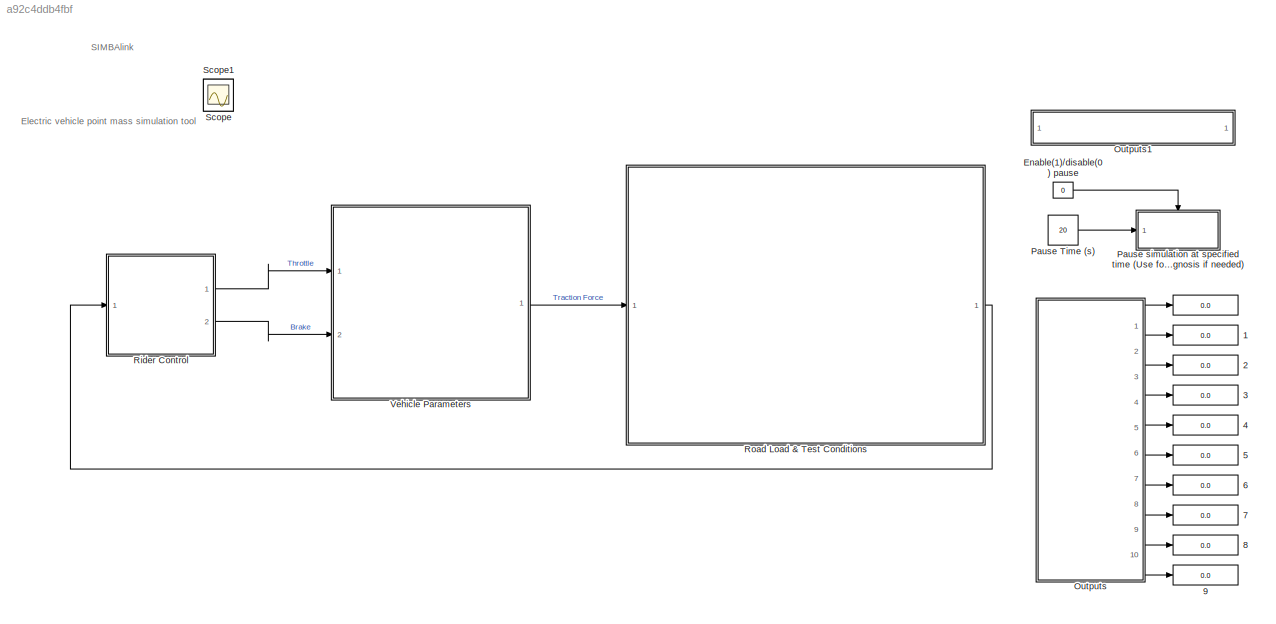
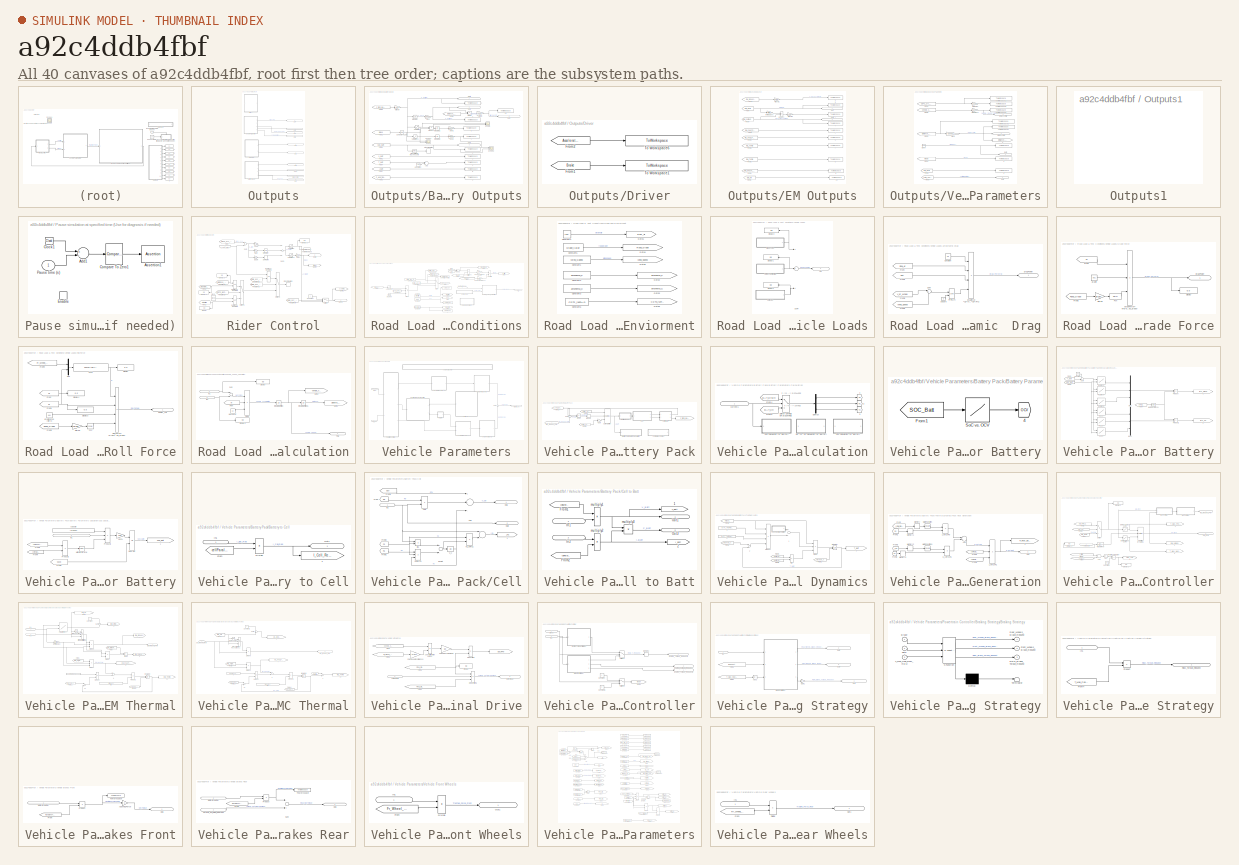
[diagram: thumbnail index - all 40 canvases of the model, root first then tree order]
MODEL slx_a92c4ddb4fbf
KIND model
CONFIG AbsTol = auto
CONFIG EnableMultiTasking = on
CONFIG FixedStep = 0.01
CONFIG MaxStep = auto
CONFIG MinStep = auto
CONFIG PreLoadFcn = clear all\nclose all\nclc\n\ncurrentFolder = pwd;\naddpath(genpath(currentFolder));\n
CONFIG RelTol = 1e-3
CONFIG SampleTimeConstraint = Unconstrained
CONFIG Solver = ode1
CONFIG SolverName = ode1
CONFIG StartTime = 0.0
CONFIG StopFcn = PostRun_Initialize
CONFIG StopTime = Inf
BLOCK [Display]  
  Decimation = 1
  Ports = [1]
BLOCK [Display]  1
  Decimation = 1
  Ports = [1]
BLOCK [Display]  2
  Decimation = 1
  Ports = [1]
BLOCK [Display]  3
  Decimation = 1
  Ports = [1]
BLOCK [Display]  4
  Decimation = 1
  Ports = [1]
BLOCK [Display]  5
  Decimation = 1
  Ports = [1]
BLOCK [Display]  6
  Decimation = 1
  Ports = [1]
BLOCK [Display]  7
  Decimation = 1
  Ports = [1]
BLOCK [Display]  8
  Decimation = 1
  Ports = [1]
BLOCK [Display]  9
  Decimation = 1
  Ports = [1]
BLOCK [Constant] Enable(1)//disable(0) pause
  Value = 0
BLOCK [SubSystem] Outputs
  Ports = [0, 10]
  RequestExecContextInheritance = off
  Variant = off
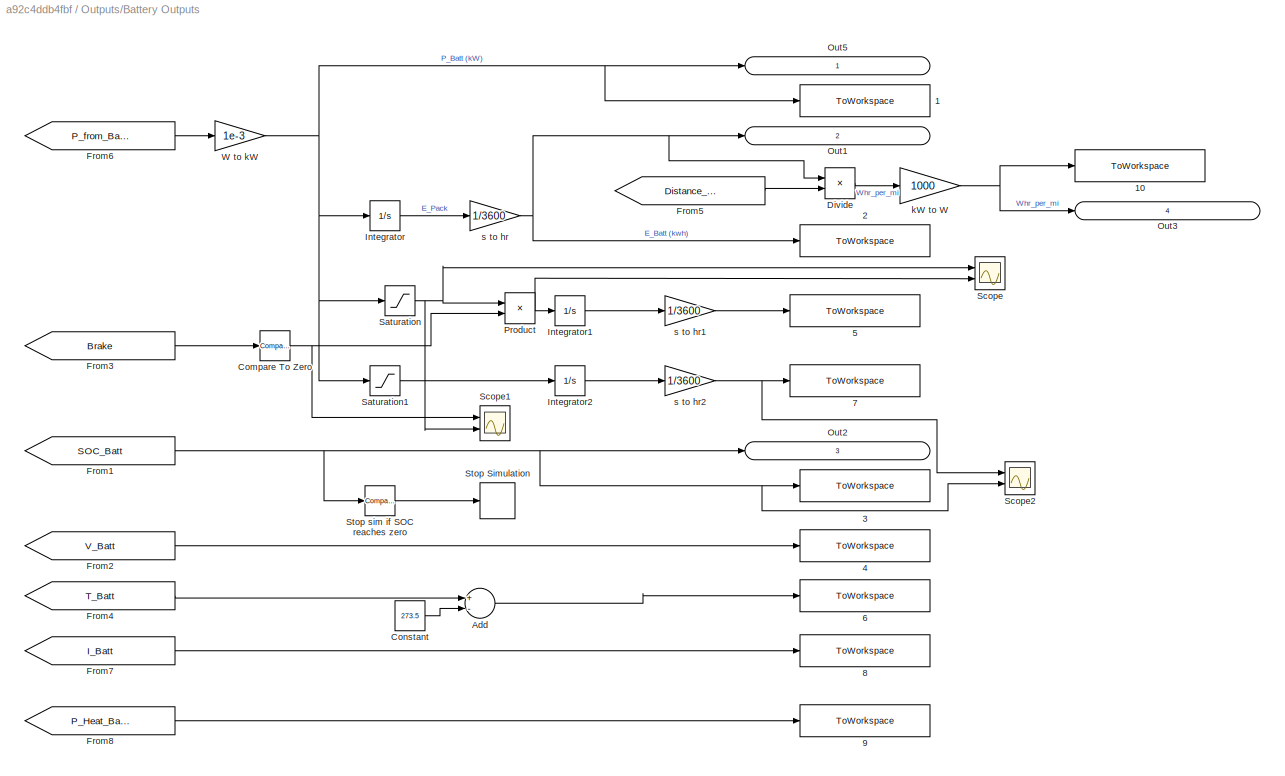
BLOCK [SubSystem] Outputs/Battery Outputs
  Ports = [0, 4]
  RequestExecContextInheritance = off
  Variant = off
BLOCK [ToWorkspace] Outputs/Battery Outputs/ 1
  MaxDataPoints = inf
  Ports = [1]
  SampleTime = -1
  VariableName = P_from_Battery
BLOCK [ToWorkspace] Outputs/Battery Outputs/ 10
  MaxDataPoints = inf
  Ports = [1]
  SampleTime = -1
  VariableName = Whr_per_mi
BLOCK [ToWorkspace] Outputs/Battery Outputs/ 2
  MaxDataPoints = inf
  Ports = [1]
  SampleTime = -1
  VariableName = E_from_Battery
BLOCK [ToWorkspace] Outputs/Battery Outputs/ 3
  MaxDataPoints = inf
  Ports = [1]
  SampleTime = -1
  VariableName = SOC_Batt
BLOCK [ToWorkspace] Outputs/Battery Outputs/ 4
  MaxDataPoints = inf
  Ports = [1]
  SampleTime = -1
  VariableName = V_Batt
BLOCK [ToWorkspace] Outputs/Battery Outputs/ 5
  MaxDataPoints = inf
  Ports = [1]
  SampleTime = -1
  VariableName = E_Recovered_Battery
BLOCK [ToWorkspace] Outputs/Battery Outputs/ 6
  MaxDataPoints = inf
  Ports = [1]
  SampleTime = -1
  VariableName = T_Batt
BLOCK [ToWorkspace] Outputs/Battery Outputs/ 7
  MaxDataPoints = inf
  Ports = [1]
  SampleTime = -1
  VariableName = E_Supplied_Battery
BLOCK [ToWorkspace] Outputs/Battery Outputs/ 8
  MaxDataPoints = inf
  Ports = [1]
  SampleTime = -1
  VariableName = I_Batt
BLOCK [ToWorkspace] Outputs/Battery Outputs/ 9
  MaxDataPoints = inf
  Ports = [1]
  SampleTime = -1
  VariableName = P_Loss_Battery
BLOCK [Sum] Outputs/Battery Outputs/Add
  InputSameDT = off
  Inputs = +-
  OutDataTypeStr = Inherit: Inherit via internal rule
  Ports = [2, 1]
  SaturateOnIntegerOverflow = off
BLOCK [Reference] Outputs/Battery Outputs/Compare To Zero  REF=simulink/Logic and Bit
Operations/Compare
To Zero
  Ports = [1, 1]
  SourceBlock = simulink/Logic and Bit\nOperations/Compare\nTo Zero
  SourceProductBaseCode = SL
  SourceProductName = Simulink
  SourceType = Compare To Zero
BLOCK [Constant] Outputs/Battery Outputs/Constant
  Value = 273.5
BLOCK [Product] Outputs/Battery Outputs/Divide
  InputSameDT = off
  Inputs = */
  OutDataTypeStr = Inherit: Inherit via internal rule
  Ports = [2, 1]
  RndMeth = Floor
  SaturateOnIntegerOverflow = off
BLOCK [From] Outputs/Battery Outputs/From1
  GotoTag = SOC_Batt
  TagVisibility = global
BLOCK [From] Outputs/Battery Outputs/From2
  GotoTag = V_Batt
  TagVisibility = global
BLOCK [From] Outputs/Battery Outputs/From3
  GotoTag = Brake
  TagVisibility = global
BLOCK [From] Outputs/Battery Outputs/From4
  GotoTag = T_Batt
  TagVisibility = global
BLOCK [From] Outputs/Battery Outputs/From5
  GotoTag = Distance_mi
  TagVisibility = global
BLOCK [From] Outputs/Battery Outputs/From6
  GotoTag = P_from_Battery
  TagVisibility = global
BLOCK [From] Outputs/Battery Outputs/From7
  GotoTag = I_Batt
  TagVisibility = global
BLOCK [From] Outputs/Battery Outputs/From8
  GotoTag = P_Heat_Batt
  TagVisibility = global
BLOCK [Integrator] Outputs/Battery Outputs/Integrator
  Ports = [1, 1]
BLOCK [Integrator] Outputs/Battery Outputs/Integrator1
  Ports = [1, 1]
BLOCK [Integrator] Outputs/Battery Outputs/Integrator2
  Ports = [1, 1]
BLOCK [Outport] Outputs/Battery Outputs/Out1
  IconDisplay = Port number and signal name
  Port = 2
BLOCK [Outport] Outputs/Battery Outputs/Out2
  IconDisplay = Port number and signal name
  Port = 3
BLOCK [Outport] Outputs/Battery Outputs/Out3
  IconDisplay = Port number and signal name
  Port = 4
BLOCK [Outport] Outputs/Battery Outputs/Out5
  IconDisplay = Port number and signal name
BLOCK [Product] Outputs/Battery Outputs/Product
  InputSameDT = off
  OutDataTypeStr = Inherit: Inherit via internal rule
  Ports = [2, 1]
  SaturateOnIntegerOverflow = off
BLOCK [Saturate] Outputs/Battery Outputs/Saturation
  InputPortMap = u0
  LowerLimit = -inf
  Ports = [1, 1]
  UpperLimit = 0
BLOCK [Saturate] Outputs/Battery Outputs/Saturation1
  InputPortMap = u0
  LowerLimit = 0
  Ports = [1, 1]
  UpperLimit = inf
BLOCK [Scope] Outputs/Battery Outputs/Scope
  NumInputPorts = 2
  Ports = [2]
  ScopeSpecificationString = C++SS(StrPVP('Open','off'),StrPVP('TimeRange','auto'),StrPVP('TickLabels','OneTimeTick'),StrPVP('ShowLegends','off'),StrPVP('LimitDataPoints','off'),StrPVP('MaxDataPoints','5000'),StrPVP('SaveToWorkspace','off'),StrPVP('SaveName','ScopeData11'),StrPVP('YMin','-5~-5'),StrPVP('YMax','5~5'),StrPVP('BlockParamSampleInput','off'),StrPVP('BlockParamSampleTime','-1'),StrPVP('ZoomMode','on'),StrPVP('Grid'...<+602ch>
BLOCK [Scope] Outputs/Battery Outputs/Scope1
  NumInputPorts = 2
  Ports = [2]
  ScopeSpecificationString = C++SS(StrPVP('Open','off'),StrPVP('TimeRange','auto'),StrPVP('TickLabels','OneTimeTick'),StrPVP('ShowLegends','off'),StrPVP('LimitDataPoints','off'),StrPVP('MaxDataPoints','5000'),StrPVP('SaveToWorkspace','off'),StrPVP('SaveName','ScopeData12'),StrPVP('YMin','-5~-5'),StrPVP('YMax','5~5'),StrPVP('BlockParamSampleInput','off'),StrPVP('BlockParamSampleTime','-1'),StrPVP('ZoomMode','on'),StrPVP('Grid'...<+602ch>
BLOCK [Scope] Outputs/Battery Outputs/Scope2
  NumInputPorts = 2
  Ports = [2]
  ScopeSpecificationString = C++SS(StrPVP('Open','off'),StrPVP('TimeRange','1350'),StrPVP('TickLabels','OneTimeTick'),StrPVP('ShowLegends','off'),StrPVP('LimitDataPoints','off'),StrPVP('MaxDataPoints','5000'),StrPVP('SaveToWorkspace','off'),StrPVP('SaveName','ScopeData8'),StrPVP('YMin','-0.15472~-0.15472'),StrPVP('YMax','1.39245~1.39245'),StrPVP('BlockParamSampleInput','off'),StrPVP('BlockParamSampleTime','-1'),StrPVP('ZoomMo...<+665ch>
BLOCK [Stop] Outputs/Battery Outputs/Stop Simulation
BLOCK [Reference] Outputs/Battery Outputs/Stop sim if SOC reaches zero  REF=simulink/Logic and Bit
Operations/Compare
To Zero
  Ports = [1, 1]
  SourceBlock = simulink/Logic and Bit\nOperations/Compare\nTo Zero
  SourceProductBaseCode = SL
  SourceProductName = Simulink
  SourceType = Compare To Zero
BLOCK [Gain] Outputs/Battery Outputs/W to kW
  Gain = 1e-3
  OutDataTypeStr = Inherit: Inherit via internal rule
  ParamDataTypeStr = Inherit: Inherit via internal rule
  SaturateOnIntegerOverflow = off
BLOCK [Gain] Outputs/Battery Outputs/kW to W
  Gain = 1000
  OutDataTypeStr = Inherit: Inherit via internal rule
  ParamDataTypeStr = Inherit: Inherit via internal rule
  SaturateOnIntegerOverflow = off
BLOCK [Gain] Outputs/Battery Outputs/s to hr
  Gain = 1/3600
  OutDataTypeStr = Inherit: Inherit via internal rule
  ParamDataTypeStr = Inherit: Inherit via internal rule
  SaturateOnIntegerOverflow = off
BLOCK [Gain] Outputs/Battery Outputs/s to hr1
  Gain = 1/3600
  OutDataTypeStr = Inherit: Inherit via internal rule
  ParamDataTypeStr = Inherit: Inherit via internal rule
  SaturateOnIntegerOverflow = off
BLOCK [Gain] Outputs/Battery Outputs/s to hr2
  Gain = 1/3600
  OutDataTypeStr = Inherit: Inherit via internal rule
  ParamDataTypeStr = Inherit: Inherit via internal rule
  SaturateOnIntegerOverflow = off
BLOCK [Outport] Outputs/Distance (mi)
  IconDisplay = Port number and signal name
  Port = 3
BLOCK [SubSystem] Outputs/Driver
  Ports = []
  RequestExecContextInheritance = off
  Variant = off
BLOCK [From] Outputs/Driver/From1
  GotoTag = Brake
  TagVisibility = global
BLOCK [From] Outputs/Driver/From2
  GotoTag = Accelerator
  TagVisibility = global
BLOCK [ToWorkspace] Outputs/Driver/To Workspace1
  MaxDataPoints = inf
  Ports = [1]
  SampleTime = -1
  VariableName = Brake_Lever
BLOCK [ToWorkspace] Outputs/Driver/To Workspace6
  MaxDataPoints = inf
  Ports = [1]
  SampleTime = -1
  VariableName = Acc_pedal
BLOCK [SubSystem] Outputs/EM Outputs
  Ports = [0, 2]
  RequestExecContextInheritance = off
  Variant = off
BLOCK [ToWorkspace] Outputs/EM Outputs/ 1
  MaxDataPoints = inf
  Ports = [1]
  SampleTime = -1
  VariableName = EM_heatLoss_Pwr
BLOCK [ToWorkspace] Outputs/EM Outputs/ 10
  MaxDataPoints = inf
  Ports = [1]
  SampleTime = -1
  VariableName = EM_eff
BLOCK [ToWorkspace] Outputs/EM Outputs/ 2
  MaxDataPoints = inf
  Ports = [1]
  SampleTime = -1
  VariableName = EM_output_Pwr_kW
BLOCK [ToWorkspace] Outputs/EM Outputs/ 3
  MaxDataPoints = inf
  Ports = [1]
  SampleTime = -1
  VariableName = MC_heatLoss_Pwr
BLOCK [ToWorkspace] Outputs/EM Outputs/ 4
  MaxDataPoints = inf
  Ports = [1]
  SampleTime = -1
  VariableName = EM_output_Torq
BLOCK [ToWorkspace] Outputs/EM Outputs/ 5
  MaxDataPoints = inf
  Ports = [1]
  SampleTime = -1
  VariableName = EM_RPM
BLOCK [ToWorkspace] Outputs/EM Outputs/ 6
  MaxDataPoints = inf
  Ports = [1]
  SampleTime = -1
  VariableName = EM_request_Pwr
BLOCK [ToWorkspace] Outputs/EM Outputs/ 7
  MaxDataPoints = inf
  Ports = [1]
  SampleTime = -1
  VariableName = MC_Temp
BLOCK [ToWorkspace] Outputs/EM Outputs/ 8
  MaxDataPoints = inf
  Ports = [1]
  SampleTime = -1
  VariableName = EM_Temp
BLOCK [ToWorkspace] Outputs/EM Outputs/ 9
  MaxDataPoints = inf
  Ports = [1]
  SampleTime = -1
  VariableName = EM_phase_current
BLOCK [From] Outputs/EM Outputs/From
  GotoTag = EM_RPM
  TagVisibility = global
BLOCK [From] Outputs/EM Outputs/From1
  GotoTag = EM_heat_Pwr
  TagVisibility = global
BLOCK [From] Outputs/EM Outputs/From2
  GotoTag = EM_request_Pwr
  TagVisibility = global
BLOCK [From] Outputs/EM Outputs/From3
  GotoTag = MC_heat_Pwr
  TagVisibility = global
BLOCK [From] Outputs/EM Outputs/From4
  GotoTag = EM_phase_current
  TagVisibility = global
BLOCK [From] Outputs/EM Outputs/From5
  GotoTag = EM_eff
  TagVisibility = global
BLOCK [From] Outputs/EM Outputs/From6
  GotoTag = MC_Temp
  TagVisibility = global
BLOCK [From] Outputs/EM Outputs/From7
  GotoTag = EM_output_Torq
  TagVisibility = global
BLOCK [From] Outputs/EM Outputs/From8
  GotoTag = EM_Temp
  TagVisibility = global
BLOCK [Outport] Outputs/EM Outputs/Out7
  IconDisplay = Port number and signal name
BLOCK [Outport] Outputs/EM Outputs/Out8
  IconDisplay = Port number and signal name
  Port = 2
BLOCK [Product] Outputs/EM Outputs/Product
  InputSameDT = off
  OutDataTypeStr = Inherit: Inherit via internal rule
  Ports = [2, 1]
  RndMeth = Floor
  SaturateOnIntegerOverflow = off
BLOCK [Gain] Outputs/EM Outputs/W to kW1
  Gain = 1e-3
  OutDataTypeStr = Inherit: Inherit via internal rule
  ParamDataTypeStr = Inherit: Inherit via internal rule
  SaturateOnIntegerOverflow = off
BLOCK [Gain] Outputs/EM Outputs/W to kW2
  Gain = 1e-3
  OutDataTypeStr = Inherit: Inherit via internal rule
  ParamDataTypeStr = Inherit: Inherit via internal rule
  SaturateOnIntegerOverflow = off
BLOCK [Gain] Outputs/EM Outputs/rpm to rad//sec
  Gain = pi/30
  OutDataTypeStr = Inherit: Inherit via internal rule
  ParamDataTypeStr = Inherit: Inherit via internal rule
  SaturateOnIntegerOverflow = off
BLOCK [Outport] Outputs/Out1
  IconDisplay = Port number and signal name
  Port = 7
BLOCK [Outport] Outputs/Out12
  IconDisplay = Port number and signal name
  Port = 5
BLOCK [Outport] Outputs/Out2
  IconDisplay = Port number and signal name
  Port = 8
BLOCK [Outport] Outputs/Out3
  IconDisplay = Port number and signal name
  Port = 6
BLOCK [Outport] Outputs/Out4
  IconDisplay = Port number and signal name
  Port = 2
BLOCK [Outport] Outputs/Out5
  IconDisplay = Port number and signal name
  Port = 4
BLOCK [Outport] Outputs/Out6
  IconDisplay = Port number and signal name
BLOCK [Outport] Outputs/Out7
  IconDisplay = Port number and signal name
  Port = 9
BLOCK [Outport] Outputs/Out8
  IconDisplay = Port number and signal name
  Port = 10
BLOCK [SubSystem] Outputs/Vehicle Parameters
  Ports = [0, 4]
  RequestExecContextInheritance = off
  Variant = off
BLOCK [ToWorkspace] Outputs/Vehicle Parameters/ 
  MaxDataPoints = inf
  Ports = [1]
  SampleTime = -1
  VariableName = T_simulation
BLOCK [ToWorkspace] Outputs/Vehicle Parameters/ 1
  MaxDataPoints = inf
  Ports = [1]
  SampleTime = -1
  VariableName = mode
BLOCK [Goto] Outputs/Vehicle Parameters/ 2
  GotoTag = Distance_mi
  IconDisplay = Tag and signal name
  TagVisibility = global
BLOCK [ToWorkspace] Outputs/Vehicle Parameters/ 3
  MaxDataPoints = inf
  Ports = [1]
  SampleTime = -1
  VariableName = EM_speed_RPM
BLOCK [Clock] Outputs/Vehicle Parameters/Clock
  Decimation = 1
BLOCK [Outport] Outputs/Vehicle Parameters/Distance (mi)
  IconDisplay = Port number and signal name
BLOCK [Outport] Outputs/Vehicle Parameters/Distance (mi)1
  IconDisplay = Port number and signal name
  Port = 3
BLOCK [From] Outputs/Vehicle Parameters/From1
  GotoTag = Mode
  TagVisibility = global
BLOCK [From] Outputs/Vehicle Parameters/From2
  GotoTag = EM_RPM
  TagVisibility = global
BLOCK [From] Outputs/Vehicle Parameters/From3
  GotoTag = Distance_Total_m
  TagVisibility = global
BLOCK [From] Outputs/Vehicle Parameters/From4
  GotoTag = CDTS_Cyc_Mps
  TagVisibility = global
BLOCK [From] Outputs/Vehicle Parameters/From5
  GotoTag = Vehicle_Velocity_ms
  TagVisibility = global
BLOCK [From] Outputs/Vehicle Parameters/From6
  GotoTag = Total_Vehicle_Weight
  TagVisibility = global
BLOCK [Outport] Outputs/Vehicle Parameters/Out1
  IconDisplay = Port number and signal name
  Port = 4
BLOCK [Outport] Outputs/Vehicle Parameters/Out2
  IconDisplay = Port number and signal name
  Port = 2
BLOCK [ToWorkspace] Outputs/Vehicle Parameters/To Workspace1
  MaxDataPoints = inf
  Ports = [1]
  SampleTime = -1
  VariableName = Distance_mi
BLOCK [ToWorkspace] Outputs/Vehicle Parameters/To Workspace2
  MaxDataPoints = inf
  Ports = [1]
  SampleTime = -1
  VariableName = Desired_Speed_ms
BLOCK [ToWorkspace] Outputs/Vehicle Parameters/To Workspace3
  MaxDataPoints = inf
  Ports = [1]
  SampleTime = -1
  VariableName = Distance_m
BLOCK [ToWorkspace] Outputs/Vehicle Parameters/To Workspace5
  MaxDataPoints = inf
  Ports = [1]
  SampleTime = -1
  VariableName = Desired_Speed_mph
BLOCK [ToWorkspace] Outputs/Vehicle Parameters/To Workspace6
  MaxDataPoints = inf
  Ports = [1]
  SampleTime = -1
  VariableName = Vehicle_Speed_mph
BLOCK [Gain] Outputs/Vehicle Parameters/m to mi
  Gain = 0.000621371
  OutDataTypeStr = Inherit: Inherit via internal rule
  ParamDataTypeStr = Inherit: Inherit via internal rule
  SaturateOnIntegerOverflow = off
BLOCK [Gain] Outputs/Vehicle Parameters/m//s to mph
  Gain = 2.237
  OutDataTypeStr = Inherit: Inherit via internal rule
  ParamDataTypeStr = Inherit: Inherit via internal rule
  SaturateOnIntegerOverflow = off
BLOCK [Gain] Outputs/Vehicle Parameters/m//s to mph1
  Gain = 2.237
  OutDataTypeStr = Inherit: Inherit via internal rule
  ParamDataTypeStr = Inherit: Inherit via internal rule
  SaturateOnIntegerOverflow = off
BLOCK [SubSystem] Outputs1
  OpenFcn = General_autoplotting
  Ports = []
  RequestExecContextInheritance = off
  Variant = off
BLOCK [Constant] Pause Time (s)
  Value = 20
BLOCK [SubSystem] Pause simulation at specified time (Use for diagnosis if needed)
  Ports = [1, 0, 1]
  RequestExecContextInheritance = off
  Variant = off
BLOCK [Sum] Pause simulation at specified time (Use for diagnosis if needed)/Add1
  InputSameDT = off
  Inputs = +-
  OutDataTypeStr = Inherit: Inherit via internal rule
  Ports = [2, 1]
  SaturateOnIntegerOverflow = off
BLOCK [Assertion] Pause simulation at specified time (Use for diagnosis if needed)/Assertion1
  AssertionFailFcn = set_param(bdroot,'SimulationCommand','pause'),\ndisp(sprintf('\nSimulation paused.'))
  StopWhenAssertionFail = off
BLOCK [Clock] Pause simulation at specified time (Use for diagnosis if needed)/Clock1
BLOCK [Reference] Pause simulation at specified time (Use for diagnosis if needed)/Compare To Zero1  REF=simulink/Logic and Bit
Operations/Compare
To Zero
  Ports = [1, 1]
  SourceBlock = simulink/Logic and Bit\nOperations/Compare\nTo Zero
  SourceProductBaseCode = SL
  SourceProductName = Simulink
  SourceType = Compare To Zero
BLOCK [EnablePort] Pause simulation at specified time (Use for diagnosis if needed)/Enable
  Ports = []
BLOCK [Inport] Pause simulation at specified time (Use for diagnosis if needed)/Pause time (s)
  IconDisplay = Port number
BLOCK [SubSystem] Rider Control
  Ports = [1, 2]
  RequestExecContextInheritance = off
  Variant = off
BLOCK [Outport] Rider Control/Alpha
  IconDisplay = Port number and signal name
BLOCK [Outport] Rider Control/Beta
  IconDisplay = Port number and signal name
  Port = 2
BLOCK [Clock] Rider Control/Clock
  Decimation = 1
  DisplayTime = on
BLOCK [Constant] Rider Control/Constant
BLOCK [Gain] Rider Control/D Gain
  Gain = kd
  OutDataTypeStr = Inherit: Inherit via internal rule
  ParamDataTypeStr = Inherit: Inherit via internal rule
  SaturateOnIntegerOverflow = off
BLOCK [Derivative] Rider Control/Derivative
BLOCK [Display] Rider Control/Display
  Decimation = 1
  Ports = [1]
BLOCK [Display] Rider Control/Display1
  Decimation = 1
  Ports = [1]
BLOCK [Display] Rider Control/Display2
  Decimation = 1
  Ports = [1]
BLOCK [Display] Rider Control/Display3
  Decimation = 1
  Ports = [1]
BLOCK [From] Rider Control/From
  GotoTag = CDTS_Cyc_Mps
  IconDisplay = Tag and signal name
  TagVisibility = global
BLOCK [From] Rider Control/From Driver1
  CloseFcn = tagdialog Close
  GotoTag = DRIV_acc_flag
  TagVisibility = global
BLOCK [From] Rider Control/From Driver2
  CloseFcn = tagdialog Close
  GotoTag = DRIV_acc_final_v
  TagVisibility = global
BLOCK [From] Rider Control/From Driver3
  CloseFcn = tagdialog Close
  GotoTag = CDTS_runFLAG
  TagVisibility = global
BLOCK [From] Rider Control/From Driver4
  CloseFcn = tagdialog Close
  GotoTag = Distance_Total_m
  TagVisibility = global
BLOCK [From] Rider Control/From Driver5
  CloseFcn = tagdialog Close
  GotoTag = DRIV_acc_flag
  TagVisibility = global
BLOCK [From] Rider Control/From1
  GotoTag = Stoptime
  IconDisplay = Signal name
  TagVisibility = global
BLOCK [From] Rider Control/From2
  GotoTag = Stopdistance
  IconDisplay = Signal name
  TagVisibility = global
BLOCK [Gain] Rider Control/Gain2
  Gain = -0.5
  OutDataTypeStr = Inherit: Inherit via internal rule
  ParamDataTypeStr = Inherit: Inherit via internal rule
  SaturateOnIntegerOverflow = off
BLOCK [Goto] Rider Control/Goto1
  GotoTag = Accelerator
  TagVisibility = global
BLOCK [Goto] Rider Control/Goto4
  GotoTag = Brake
  TagVisibility = global
BLOCK [Gain] Rider Control/I Gain
  Gain = ki
  OutDataTypeStr = Inherit: Inherit via internal rule
  ParamDataTypeStr = Inherit: Inherit via internal rule
  SaturateOnIntegerOverflow = off
BLOCK [Integrator] Rider Control/Integrator
  InitialCondition = 1
  Ports = [1, 1]
  UpperSaturationLimit = 0.4
BLOCK [Gain] Rider Control/P Gain
  Gain = kp
  OutDataTypeStr = Inherit: Inherit via internal rule
  ParamDataTypeStr = Inherit: Inherit via internal rule
  SaturateOnIntegerOverflow = off
BLOCK [RelationalOperator] Rider Control/Relational Operator1
  Ports = [2, 1]
BLOCK [RelationalOperator] Rider Control/Relational Operator2
  Ports = [2, 1]
BLOCK [RelationalOperator] Rider Control/Relational Operator3
  Ports = [2, 1]
BLOCK [Saturate] Rider Control/Saturation
  InputPortMap = u0
  LowerLimit = 0
  Ports = [1, 1]
  UpperLimit = 1
BLOCK [Saturate] Rider Control/Saturation1
  InputPortMap = u0
  LowerLimit = -1
  Ports = [1, 1]
  UpperLimit = 0
BLOCK [Stop] Rider Control/Stop Simulation
BLOCK [Sum] Rider Control/Sum
  InputSameDT = off
  Inputs = +-
  OutDataTypeStr = Inherit: Inherit via internal rule
  Ports = [2, 1]
  SaturateOnIntegerOverflow = off
BLOCK [Sum] Rider Control/Sum1
  InputSameDT = off
  Inputs = +++
  OutDataTypeStr = Inherit: Inherit via internal rule
  Ports = [3, 1]
  SaturateOnIntegerOverflow = off
BLOCK [Switch] Rider Control/Switch
  Criteria = u2 > Threshold
  InputSameDT = off
  SaturateOnIntegerOverflow = off
  Threshold = 0.5
BLOCK [Switch] Rider Control/Switch1
  Threshold = 0.5
BLOCK [Switch] Rider Control/Switch3
  Threshold = 1
BLOCK [ToWorkspace] Rider Control/To Workspace
  MaxDataPoints = inf
  Ports = [1]
  SampleTime = -1
  VariableName = acceleration
BLOCK [Inport] Rider Control/V_Veh_Mps
  IconDisplay = Port number and signal name
BLOCK [SubSystem] Road Load & Test Conditions
  Ports = [1, 1]
  RequestExecContextInheritance = off
  Variant = off
BLOCK [ToWorkspace] Road Load & Test Conditions/ 1
  MaxDataPoints = 1
  Ports = [1]
  SampleTime = -1
  VariableName = Stoptime
BLOCK [ToWorkspace] Road Load & Test Conditions/ 2
  MaxDataPoints = 1
  Ports = [1]
  SampleTime = -1
  VariableName = Stopdistance
BLOCK [ToWorkspace] Road Load & Test Conditions/ 4
  MaxDataPoints = 1
  Ports = [1]
  SampleTime = -1
  VariableName = soc0
BLOCK [ToWorkspace] Road Load & Test Conditions/Acceleration Test Flag
  FixptAsFi = on
  MaxDataPoints = inf
  Ports = [1]
  SampleTime = -1
  Save2DSignal = 3-D array (concatenate along third dimension)
  VariableName = DRIV_acc_flag
BLOCK [Gain] Road Load & Test Conditions/CONVERT TO whl rev per second 
  Gain = 1/60
  OutDataTypeStr = Inherit: Inherit via internal rule
  ParamDataTypeStr = Inherit: Inherit via internal rule
  SaturateOnIntegerOverflow = off
BLOCK [Gain] Road Load & Test Conditions/Calc wheel circumference1
  Gain = 2*3.14
  OutDataTypeStr = Inherit: Inherit via internal rule
  ParamDataTypeStr = Inherit: Inherit via internal rule
  SaturateOnIntegerOverflow = off
BLOCK [Constant] Road Load & Test Conditions/Constant1
  Value = soc0
BLOCK [Constant] Road Load & Test Conditions/Constant2
  Value = DRIV_acc_final_v*0.277*1.60934
BLOCK [Constant] Road Load & Test Conditions/Constant3
  Value = CDTS_runFLAG
BLOCK [Constant] Road Load & Test Conditions/Constant4
  Value = DRIV_acc_flag
BLOCK [Constant] Road Load & Test Conditions/Constant5
  Value = Stopdistance
BLOCK [Constant] Road Load & Test Conditions/Constant7
  Value = Stoptime
BLOCK [Outport] Road Load & Test Conditions/F (N)1
  IconDisplay = Port number and signal name
BLOCK [From] Road Load & Test Conditions/From1
  GotoTag = Distance_Total_m
  IconDisplay = Tag and signal name
  TagVisibility = global
BLOCK [From] Road Load & Test Conditions/From2
  GotoTag = Rr_Wheel_Radius
  IconDisplay = Tag and signal name
  TagVisibility = global
BLOCK [From] Road Load & Test Conditions/From5
  GotoTag = V_Batt
  TagVisibility = global
BLOCK [From] Road Load & Test Conditions/From6
  GotoTag = EM_kv
  TagVisibility = global
BLOCK [From] Road Load & Test Conditions/From8
  GotoTag = Final_Drive_Ratio
  IconDisplay = Tag and signal name
  TagVisibility = global
BLOCK [Goto] Road Load & Test Conditions/Goto Fuel Tank1
  GotoTag = DRIV_acc_final_v
  TagVisibility = global
BLOCK [Goto] Road Load & Test Conditions/Goto Fuel Tank3
  GotoTag = DRIV_acc_flag
  TagVisibility = global
BLOCK [Goto] Road Load & Test Conditions/Goto1
  GotoTag = Stopdistance
  IconDisplay = Tag and signal name
  TagVisibility = global
BLOCK [Goto] Road Load & Test Conditions/Goto2
  GotoTag = soc0
  IconDisplay = Tag and signal name
  TagVisibility = global
BLOCK [Goto] Road Load & Test Conditions/Goto3
  GotoTag = Stoptime
  IconDisplay = Tag and signal name
  TagVisibility = global
BLOCK [Goto] Road Load & Test Conditions/Goto4
  GotoTag = CDTS_Cyc_Mps
  IconDisplay = Tag and signal name
  TagVisibility = global
BLOCK [Goto] Road Load & Test Conditions/Goto5
  GotoTag = V_limit
  TagVisibility = global
BLOCK [Goto] Road Load & Test Conditions/Goto8
  GotoTag = EM_RPM_limited
  TagVisibility = global
BLOCK [Inport] Road Load & Test Conditions/Input Traction Force1
  IconDisplay = Port number and signal name
BLOCK [Product] Road Load & Test Conditions/Product1
  InputSameDT = off
  OutDataTypeStr = Inherit: Inherit via internal rule
  Ports = [2, 1]
  RndMeth = Floor
  SaturateOnIntegerOverflow = off
BLOCK [Reference] Road Load & Test Conditions/Repeating Sequence  REF=simulink/Sources/Repeating
Sequence
  Ports = [0, 1]
  SourceBlock = simulink/Sources/Repeating\nSequence
  SourceProductBaseCode = SL
  SourceProductName = Simulink
  SourceType = Repeating table
BLOCK [SubSystem] Road Load & Test Conditions/Road and Enviorment
  Ports = []
  RequestExecContextInheritance = off
  Variant = off
BLOCK [Constant] Road Load & Test Conditions/Road and Enviorment/Constant1
  Value = Wind_Speed
BLOCK [Constant] Road Load & Test Conditions/Road and Enviorment/Constant2
  Value = ambTemp_K
BLOCK [Constant] Road Load & Test Conditions/Road and Enviorment/Constant3
  Value = ambTemp_C
BLOCK [Constant] Road Load & Test Conditions/Road and Enviorment/Constant4
  Value = rowA
BLOCK [Constant] Road Load & Test Conditions/Road and Enviorment/Constant5
  Value = Grade_Value
BLOCK [Constant] Road Load & Test Conditions/Road and Enviorment/Constant6
  Value = CDTS_runFLAG
BLOCK [Goto] Road Load & Test Conditions/Road and Enviorment/Goto1
  GotoTag = Row_Air
  IconDisplay = Tag and signal name
  TagVisibility = global
BLOCK [Goto] Road Load & Test Conditions/Road and Enviorment/Goto2
  GotoTag = ambTemp_K
  IconDisplay = Tag and signal name
  TagVisibility = global
BLOCK [Goto] Road Load & Test Conditions/Road and Enviorment/Goto3
  GotoTag = ambTemp_C
  IconDisplay = Tag and signal name
  TagVisibility = global
BLOCK [Goto] Road Load & Test Conditions/Road and Enviorment/Goto4
  GotoTag = Road_Grade
  IconDisplay = Tag and signal name
  TagVisibility = global
BLOCK [Goto] Road Load & Test Conditions/Road and Enviorment/Goto5
  GotoTag = Wind_Speed
  IconDisplay = Tag and signal name
  TagVisibility = global
BLOCK [Goto] Road Load & Test Conditions/Road and Enviorment/Goto6
  GotoTag = CDTS_runFLAG
  IconDisplay = Tag and signal name
  TagVisibility = global
BLOCK [Switch] Road Load & Test Conditions/Switch
  InputSameDT = off
  SaturateOnIntegerOverflow = off
  Threshold = 0.5
BLOCK [Switch] Road Load & Test Conditions/Switch1
  InputSameDT = off
  SaturateOnIntegerOverflow = off
  Threshold = 0.5
BLOCK [SubSystem] Road Load & Test Conditions/Vehicle Loads
  Ports = [0, 1]
  RequestExecContextInheritance = off
  Variant = off
BLOCK [SubSystem] Road Load & Test Conditions/Vehicle Loads/Aerodynamic  Drag
  Ports = [0, 1]
  RequestExecContextInheritance = off
  Variant = off
BLOCK [Constant] Road Load & Test Conditions/Vehicle Loads/Aerodynamic  Drag/Constant
  Value = 0.5
BLOCK [Outport] Road Load & Test Conditions/Vehicle Loads/Aerodynamic  Drag/Drag Power
  IconDisplay = Port number and signal name
BLOCK [Product] Road Load & Test Conditions/Vehicle Loads/Aerodynamic  Drag/Drag force =1//2*row_a*Cd*Af*v2
  InputSameDT = off
  Inputs = 4
  OutDataTypeStr = Inherit: Inherit via internal rule
  Ports = [4, 1]
  SaturateOnIntegerOverflow = off
BLOCK [From] Road Load & Test Conditions/Vehicle Loads/Aerodynamic  Drag/From
  GotoTag = Row_Air
  TagVisibility = global
BLOCK [From] Road Load & Test Conditions/Vehicle Loads/Aerodynamic  Drag/From1
  GotoTag = CdA
  TagVisibility = global
BLOCK [From] Road Load & Test Conditions/Vehicle Loads/Aerodynamic  Drag/From3
  GotoTag = V_at_Wheel
BLOCK [From] Road Load & Test Conditions/Vehicle Loads/Aerodynamic  Drag/From4
  GotoTag = Wind_Speed
  TagVisibility = global
BLOCK [Sum] Road Load & Test Conditions/Vehicle Loads/Aerodynamic  Drag/Sum
  IconShape = round
  InputSameDT = off
  Inputs = |++
  OutDataTypeStr = Inherit: Inherit via internal rule
  Ports = [2, 1]
  SaturateOnIntegerOverflow = off
BLOCK [Math] Road Load & Test Conditions/Vehicle Loads/Aerodynamic  Drag/drag_v1
  Operator = pow
  Ports = [2, 1]
BLOCK [Constant] Road Load & Test Conditions/Vehicle Loads/Aerodynamic  Drag/square
  Value = 2
BLOCK [Display] Road Load & Test Conditions/Vehicle Loads/Display1
  Decimation = 5
  Ports = [1]
BLOCK [Display] Road Load & Test Conditions/Vehicle Loads/Display2
  Decimation = 5
  Ports = [1]
BLOCK [Display] Road Load & Test Conditions/Vehicle Loads/Display3
  Decimation = 5
  Ports = [1]
BLOCK [Outport] Road Load & Test Conditions/Vehicle Loads/F (N)
  IconDisplay = Port number and signal name
BLOCK [SubSystem] Road Load & Test Conditions/Vehicle Loads/Grade Force
  Ports = [0, 1]
  RequestExecContextInheritance = off
  Variant = off
BLOCK [Display] Road Load & Test Conditions/Vehicle Loads/Grade Force/Display
  Decimation = 5
  Ports = [1]
BLOCK [Outport] Road Load & Test Conditions/Vehicle Loads/Grade Force/Drag Power
  IconDisplay = Port number and signal name
BLOCK [Fcn] Road Load & Test Conditions/Vehicle Loads/Grade Force/Fcn
  Expr = sin(u)
BLOCK [From] Road Load & Test Conditions/Vehicle Loads/Grade Force/From
  GotoTag = M
  TagVisibility = global
BLOCK [From] Road Load & Test Conditions/Vehicle Loads/Grade Force/From2
  GotoTag = Road_Grade
  TagVisibility = global
BLOCK [Product] Road Load & Test Conditions/Vehicle Loads/Grade Force/Grade Force = M*g*sin(road_grade)
  InputSameDT = off
  Inputs = 3
  OutDataTypeStr = Inherit: Inherit via internal rule
  Ports = [3, 1]
  SaturateOnIntegerOverflow = off
BLOCK [Gain] Road Load & Test Conditions/Vehicle Loads/Grade Force/d to rad
  Gain = pi/180
  OutDataTypeStr = Inherit: Inherit via internal rule
  ParamDataTypeStr = Inherit: Inherit via internal rule
  SaturateOnIntegerOverflow = off
BLOCK [Constant] Road Load & Test Conditions/Vehicle Loads/Grade Force/gravity
  Value = 9.81
BLOCK [SubSystem] Road Load & Test Conditions/Vehicle Loads/Roll Force
  Ports = [0, 1]
  RequestExecContextInheritance = off
  Variant = off
BLOCK [Display] Road Load & Test Conditions/Vehicle Loads/Roll Force/Display
  Decimation = 5
  Ports = [1]
BLOCK [Display] Road Load & Test Conditions/Vehicle Loads/Roll Force/Display1
  Decimation = 1
  Ports = [1]
BLOCK [Display] Road Load & Test Conditions/Vehicle Loads/Roll Force/Display3
  Decimation = 5
  Ports = [1]
BLOCK [Fcn] Road Load & Test Conditions/Vehicle Loads/Roll Force/Fcn
  Expr = cos(u)
BLOCK [Fcn] Road Load & Test Conditions/Vehicle Loads/Roll Force/Fcn1
  Expr = 0.0048*(9/u(1))^0.5*(400/u(2))^0.25
BLOCK [From] Road Load & Test Conditions/Vehicle Loads/Roll Force/From
  GotoTag = Cr
  TagVisibility = global
BLOCK [From] Road Load & Test Conditions/Vehicle Loads/Roll Force/From1
  GotoTag = M
  TagVisibility = global
BLOCK [From] Road Load & Test Conditions/Vehicle Loads/Roll Force/From3
  GotoTag = Road_Grade
  TagVisibility = global
BLOCK [From] Road Load & Test Conditions/Vehicle Loads/Roll Force/From4
  GotoTag = Fr_Wheel_Radius
  TagVisibility = global
BLOCK [Mux] Road Load & Test Conditions/Vehicle Loads/Roll Force/Mux
  DisplayOption = bar
  Inputs = 2
  Ports = [2, 1]
BLOCK [Outport] Road Load & Test Conditions/Vehicle Loads/Roll Force/Power_roll
  IconDisplay = Port number and signal name
BLOCK [Product] Road Load & Test Conditions/Vehicle Loads/Roll Force/Roll_Force = Cr*M*g*cosd(road_grade)
  InputSameDT = off
  Inputs = 4
  OutDataTypeStr = Inherit: Inherit via internal rule
  Ports = [4, 1]
  SaturateOnIntegerOverflow = off
BLOCK [Gain] Road Load & Test Conditions/Vehicle Loads/Roll Force/d to rad
  Gain = pi/180
  OutDataTypeStr = Inherit: Inherit via internal rule
  ParamDataTypeStr = Inherit: Inherit via internal rule
  SaturateOnIntegerOverflow = off
BLOCK [Constant] Road Load & Test Conditions/Vehicle Loads/Roll Force/gravity accel (m//s^2) 
  Value = 9.81
BLOCK [Sum] Road Load & Test Conditions/Vehicle Loads/Sum4
  InputSameDT = off
  Inputs = +++
  OutDataTypeStr = Inherit: Inherit via internal rule
  Ports = [3, 1]
  SaturateOnIntegerOverflow = off
BLOCK [SubSystem] Road Load & Test Conditions/Vehicle_speed_Calculation
  Ports = [2, 1]
  RequestExecContextInheritance = off
  Variant = off
BLOCK [Display] Road Load & Test Conditions/Vehicle_speed_Calculation/Display
  Decimation = 1
  Ports = [1]
BLOCK [Display] Road Load & Test Conditions/Vehicle_speed_Calculation/Display1
  Decimation = 1
  Ports = [1]
BLOCK [Product] Road Load & Test Conditions/Vehicle_speed_Calculation/Divide
  InputSameDT = off
  Inputs = *//
  OutDataTypeStr = Inherit: Inherit via internal rule
  Ports = [3, 1]
  RndMeth = Floor
  SaturateOnIntegerOverflow = off
BLOCK [Outport] Road Load & Test Conditions/Vehicle_speed_Calculation/F (N)1
  IconDisplay = Port number and signal name
BLOCK [From] Road Load & Test Conditions/Vehicle_speed_Calculation/From
  GotoTag = M
  TagVisibility = global
BLOCK [Goto] Road Load & Test Conditions/Vehicle_speed_Calculation/Goto2
  GotoTag = Vehicle_Velocity_ms
  TagVisibility = global
BLOCK [Goto] Road Load & Test Conditions/Vehicle_speed_Calculation/Goto3
  GotoTag = Distance_Total_m
  TagVisibility = global
BLOCK [Inport] Road Load & Test Conditions/Vehicle_speed_Calculation/In1
  IconDisplay = Signal name
BLOCK [Inport] Road Load & Test Conditions/Vehicle_speed_Calculation/In3
  IconDisplay = Signal name
  Port = 2
BLOCK [Integrator] Road Load & Test Conditions/Vehicle_speed_Calculation/Integrator Limited
  LimitOutput = on
  LowerSaturationLimit = 0
  Ports = [1, 1]
BLOCK [Integrator] Road Load & Test Conditions/Vehicle_speed_Calculation/Integrator Limited1
  LimitOutput = on
  LowerSaturationLimit = 0
  Ports = [1, 1]
BLOCK [Constant] Road Load & Test Conditions/Vehicle_speed_Calculation/Mass factor
  Value = 1.0
BLOCK [Sum] Road Load & Test Conditions/Vehicle_speed_Calculation/Sum
  InputSameDT = off
  Inputs = +-
  OutDataTypeStr = Inherit: Inherit via internal rule
  Ports = [2, 1]
  SaturateOnIntegerOverflow = off
BLOCK [Product] Road Load & Test Conditions/convert to wheel rpm
  InputSameDT = off
  Inputs = */
  OutDataTypeStr = Inherit: Inherit via internal rule
  Ports = [2, 1]
  RndMeth = Floor
  SaturateOnIntegerOverflow = off
BLOCK [Lookup] Road Load & Test Conditions/vehicle velocity
  InputValues = d_cyc
  Table = v_cyc
BLOCK [Product] Road Load & Test Conditions/velocity limit
  InputSameDT = off
  Inputs = **
  OutDataTypeStr = Inherit: Inherit via internal rule
  Ports = [2, 1]
  RndMeth = Floor
  SaturateOnIntegerOverflow = off
BLOCK [Scope] Scope
  IOType = viewer
  NumInputPorts = 1
  Ports = []
  ScopeSpecificationString = Simulink.scopes.TimeScopeBlockCfg('CurrentConfiguration', extmgr.ConfigurationSet(extmgr.Configuration('Core','General UI',true),extmgr.Configuration('Core','Source UI',true),extmgr.Configuration('Sources','WiredSimulink',true,'DataLoggingVariableName','ScopeData5','DataLoggingSaveFormat','StructureWithTime','DataLoggingDecimation','1','DataLoggingDecimateData',true),extmgr.Configuration('Visuals'...<+1668ch>
BLOCK [Scope] Scope1
  IOType = viewer
  NumInputPorts = 1
  Ports = []
  ScopeSpecificationString = Simulink.scopes.TimeScopeBlockCfg('CurrentConfiguration', extmgr.ConfigurationSet(extmgr.Configuration('Core','General UI',true),extmgr.Configuration('Core','Source UI',true),extmgr.Configuration('Sources','WiredSimulink',true,'DataLoggingVariableName','ScopeData6','DataLoggingSaveFormat','StructureWithTime','DataLoggingDecimation','1','DataLoggingDecimateData',true),extmgr.Configuration('Visuals'...<+1686ch>
BLOCK [SubSystem] Vehicle Parameters
  Ports = [2, 1]
  RequestExecContextInheritance = off
  Variant = off
BLOCK [SubSystem] Vehicle Parameters/Battery Pack
  Ports = [1]
  RequestExecContextInheritance = off
  Variant = off
BLOCK [Goto] Vehicle Parameters/Battery Pack/ 
  GotoTag = P_from_Battery
  IconDisplay = Tag and signal name
  TagVisibility = global
BLOCK [SubSystem] Vehicle Parameters/Battery Pack/Battery Parameters Calculation
  Ports = [1]
  RequestExecContextInheritance = off
  Variant = off
BLOCK [Goto] Vehicle Parameters/Battery Pack/Battery Parameters Calculation/ 1
  GotoTag = R0
  IconDisplay = Tag and signal name
  TagVisibility = global
BLOCK [Goto] Vehicle Parameters/Battery Pack/Battery Parameters Calculation/ 2
  GotoTag = R1
  IconDisplay = Tag and signal name
  TagVisibility = global
BLOCK [Goto] Vehicle Parameters/Battery Pack/Battery Parameters Calculation/ 3
  GotoTag = C1
  IconDisplay = Tag and signal name
  TagVisibility = global
BLOCK [Demux] Vehicle Parameters/Battery Pack/Battery Parameters Calculation/Demux
  DisplayOption = bar
  Outputs = 3
  Ports = [1, 3]
BLOCK [From] Vehicle Parameters/Battery Pack/Battery Parameters Calculation/From4
  CloseFcn = tagdialog Close
  GotoTag = BAT_DisCh
  TagVisibility = global
BLOCK [From] Vehicle Parameters/Battery Pack/Battery Parameters Calculation/From6
  CloseFcn = tagdialog Close
  GotoTag = BAT_Ch
  TagVisibility = global
BLOCK [SubSystem] Vehicle Parameters/Battery Pack/Battery Parameters Calculation/OCV Calculation for Battery
  Ports = []
  RequestExecContextInheritance = off
  Variant = off
BLOCK [Goto] Vehicle Parameters/Battery Pack/Battery Parameters Calculation/OCV Calculation for Battery/ 4
  GotoTag = OCV
  IconDisplay = Tag and signal name
  TagVisibility = global
BLOCK [From] Vehicle Parameters/Battery Pack/Battery Parameters Calculation/OCV Calculation for Battery/From1
  CloseFcn = tagdialog Close
  GotoTag = SOC_Batt
  TagVisibility = global
BLOCK [Lookup] Vehicle Parameters/Battery Pack/Battery Parameters Calculation/OCV Calculation for Battery/SoC vs. OCV
  InputValues = BATT_OCV.SoC
  LookUpMeth = Interpolation-Use End Values
  SaturateOnIntegerOverflow = off
  Table = BATT_OCV.OCV
BLOCK [SubSystem] Vehicle Parameters/Battery Pack/Battery Parameters Calculation/R0, C1, R1 Calculation for Battery
  Ports = []
  RequestExecContextInheritance = off
  Variant = off
BLOCK [Goto] Vehicle Parameters/Battery Pack/Battery Parameters Calculation/R0, C1, R1 Calculation for Battery/ 4
  GotoTag = BAT_DisCh
  IconDisplay = Tag and signal name
  TagVisibility = global
BLOCK [Goto] Vehicle Parameters/Battery Pack/Battery Parameters Calculation/R0, C1, R1 Calculation for Battery/ 5
  GotoTag = BAT_Ch
  IconDisplay = Tag and signal name
  TagVisibility = global
BLOCK [Lookup2D] Vehicle Parameters/Battery Pack/Battery Parameters Calculation/R0, C1, R1 Calculation for Battery/C1 Ch
  ColumnIndex = BATT_ELEC.soc_part
  InputSameDT = off
  LookUpMeth = Interpolation-Use End Values
  RowIndex = BATT_ELEC.temp_part
  SaturateOnIntegerOverflow = off
  Table = BATT_ELEC.C1c
BLOCK [Lookup2D] Vehicle Parameters/Battery Pack/Battery Parameters Calculation/R0, C1, R1 Calculation for Battery/C1 Disch
  ColumnIndex = BATT_ELEC.soc_part
  InputSameDT = off
  LookUpMeth = Interpolation-Use End Values
  RowIndex = BATT_ELEC.temp_part
  SaturateOnIntegerOverflow = off
  Table = BATT_ELEC.C1d
BLOCK [Constant] Vehicle Parameters/Battery Pack/Battery Parameters Calculation/R0, C1, R1 Calculation for Battery/Constant
  Value = 273
BLOCK [From] Vehicle Parameters/Battery Pack/Battery Parameters Calculation/R0, C1, R1 Calculation for Battery/From1
  GotoTag = T_Batt
  IconDisplay = Signal name
  TagVisibility = global
BLOCK [From] Vehicle Parameters/Battery Pack/Battery Parameters Calculation/R0, C1, R1 Calculation for Battery/From3
  GotoTag = SOC_Batt
  IconDisplay = Signal name
  TagVisibility = global
BLOCK [From] Vehicle Parameters/Battery Pack/Battery Parameters Calculation/R0, C1, R1 Calculation for Battery/From4
  GotoTag = cellParallelCount
  TagVisibility = global
BLOCK [Math] Vehicle Parameters/Battery Pack/Battery Parameters Calculation/R0, C1, R1 Calculation for Battery/Math Reciprocal
  Operator = reciprocal
  Ports = [1, 1]
BLOCK [Mux] Vehicle Parameters/Battery Pack/Battery Parameters Calculation/R0, C1, R1 Calculation for Battery/Mux
  DisplayOption = bar
  Inputs = 3
  Ports = [3, 1]
BLOCK [Mux] Vehicle Parameters/Battery Pack/Battery Parameters Calculation/R0, C1, R1 Calculation for Battery/Mux1
  DisplayOption = bar
  Inputs = 3
  Ports = [3, 1]
BLOCK [Product] Vehicle Parameters/Battery Pack/Battery Parameters Calculation/R0, C1, R1 Calculation for Battery/Product
  InputSameDT = off
  OutDataTypeStr = Inherit: Inherit via internal rule
  Ports = [2, 1]
  RndMeth = Floor
  SaturateOnIntegerOverflow = off
BLOCK [Product] Vehicle Parameters/Battery Pack/Battery Parameters Calculation/R0, C1, R1 Calculation for Battery/Product1
  InputSameDT = off
  OutDataTypeStr = Inherit: Inherit via internal rule
  Ports = [2, 1]
  RndMeth = Floor
  SaturateOnIntegerOverflow = off
BLOCK [Lookup2D] Vehicle Parameters/Battery Pack/Battery Parameters Calculation/R0, C1, R1 Calculation for Battery/R0 Disch
  ColumnIndex = BATT_ELEC.soc_part
  InputSameDT = off
  LookUpMeth = Interpolation-Use End Values
  RowIndex = BATT_ELEC.temp_part
  SaturateOnIntegerOverflow = off
  Table = BATT_ELEC.R0d
BLOCK [Lookup2D] Vehicle Parameters/Battery Pack/Battery Parameters Calculation/R0, C1, R1 Calculation for Battery/R0 ch
  ColumnIndex = BATT_ELEC.soc_part
  InputSameDT = off
  LookUpMeth = Interpolation-Use End Values
  RowIndex = BATT_ELEC.temp_part
  SaturateOnIntegerOverflow = off
  Table = BATT_ELEC.R0c
BLOCK [Lookup2D] Vehicle Parameters/Battery Pack/Battery Parameters Calculation/R0, C1, R1 Calculation for Battery/R1 Ch
  ColumnIndex = BATT_ELEC.soc_part
  InputSameDT = off
  LookUpMeth = Interpolation-Use End Values
  RowIndex = BATT_ELEC.temp_part
  SaturateOnIntegerOverflow = off
  Table = BATT_ELEC.R1c
BLOCK [Lookup2D] Vehicle Parameters/Battery Pack/Battery Parameters Calculation/R0, C1, R1 Calculation for Battery/R1 Disch
  ColumnIndex = BATT_ELEC.soc_part
  InputSameDT = off
  LookUpMeth = Interpolation-Use End Values
  RowIndex = BATT_ELEC.temp_part
  SaturateOnIntegerOverflow = off
  Table = BATT_ELEC.R1d
BLOCK [Sum] Vehicle Parameters/Battery Pack/Battery Parameters Calculation/R0, C1, R1 Calculation for Battery/Sum
  IconShape = round
  InputSameDT = off
  Inputs = -+|
  OutDataTypeStr = Inherit: Inherit via internal rule
  Ports = [2, 1]
  SaturateOnIntegerOverflow = off
BLOCK [SubSystem] Vehicle Parameters/Battery Pack/Battery Parameters Calculation/SOC Calculation for Battery
  Ports = [1]
  RequestExecContextInheritance = off
  Variant = off
BLOCK [Goto] Vehicle Parameters/Battery Pack/Battery Parameters Calculation/SOC Calculation for Battery/ 1
  GotoTag = SOC_Batt
  IconDisplay = Tag and signal name
  TagVisibility = global
BLOCK [From] Vehicle Parameters/Battery Pack/Battery Parameters Calculation/SOC Calculation for Battery/From2
  GotoTag = soc0
  TagVisibility = global
BLOCK [From] Vehicle Parameters/Battery Pack/Battery Parameters Calculation/SOC Calculation for Battery/From4
  GotoTag = cellParallelCount
  TagVisibility = global
BLOCK [From] Vehicle Parameters/Battery Pack/Battery Parameters Calculation/SOC Calculation for Battery/From6
  CloseFcn = tagdialog Close
  GotoTag = cellCapacity
  TagVisibility = global
BLOCK [Inport] Vehicle Parameters/Battery Pack/Battery Parameters Calculation/SOC Calculation for Battery/In1
  IconDisplay = Port number and signal name
BLOCK [Integrator] Vehicle Parameters/Battery Pack/Battery Parameters Calculation/SOC Calculation for Battery/Integrator
  InitialCondition = soc0
  InitialConditionSource = external
  LimitOutput = on
  LowerSaturationLimit = 0
  Ports = [2, 1]
  UpperSaturationLimit = 100
BLOCK [Math] Vehicle Parameters/Battery Pack/Battery Parameters Calculation/SOC Calculation for Battery/Math Reciprocal
  Operator = reciprocal
  Ports = [1, 1]
BLOCK [Product] Vehicle Parameters/Battery Pack/Battery Parameters Calculation/SOC Calculation for Battery/Product1
  InputSameDT = off
  Inputs = 3
  OutDataTypeStr = Inherit: Inherit via internal rule
  Ports = [3, 1]
  SaturateOnIntegerOverflow = off
BLOCK [Product] Vehicle Parameters/Battery Pack/Battery Parameters Calculation/SOC Calculation for Battery/Product2
  InputSameDT = off
  OutDataTypeStr = Inherit: Inherit via internal rule
  Ports = [2, 1]
  SaturateOnIntegerOverflow = off
BLOCK [Gain] Vehicle Parameters/Battery Pack/Battery Parameters Calculation/SOC Calculation for Battery/SoC %
  Gain = 100
  OutDataTypeStr = Inherit: Inherit via internal rule
  ParamDataTypeStr = Inherit: Inherit via internal rule
  SaturateOnIntegerOverflow = off
BLOCK [Constant] Vehicle Parameters/Battery Pack/Battery Parameters Calculation/SOC Calculation for Battery/capacity
  Value = -1/(3600)
BLOCK [Switch] Vehicle Parameters/Battery Pack/Battery Parameters Calculation/Switch CHARGE OR DISCHARGE
  Criteria = u2 > Threshold
  InputSameDT = off
  SaturateOnIntegerOverflow = off
BLOCK [Inport] Vehicle Parameters/Battery Pack/Battery Parameters Calculation/current1
  IconDisplay = Port number and signal name
BLOCK [SubSystem] Vehicle Parameters/Battery Pack/Battery to Cell
  Ports = [1, 1]
  RequestExecContextInheritance = off
  Variant = off
BLOCK [Goto] Vehicle Parameters/Battery Pack/Battery to Cell/ 1
  GotoTag = I_Cell_Request
  IconDisplay = Tag and signal name
  TagVisibility = global
BLOCK [Product] Vehicle Parameters/Battery Pack/Battery to Cell/Divide
  InputSameDT = off
  Inputs = */
  OutDataTypeStr = Inherit: Inherit via internal rule
  Ports = [2, 1]
  RndMeth = Floor
  SaturateOnIntegerOverflow = off
BLOCK [From] Vehicle Parameters/Battery Pack/Battery to Cell/From
  GotoTag = cellParallelCount
  TagVisibility = global
BLOCK [Inport] Vehicle Parameters/Battery Pack/Battery to Cell/In1
  IconDisplay = Port number and signal name
BLOCK [Outport] Vehicle Parameters/Battery Pack/Battery to Cell/Out1
  IconDisplay = Port number and signal name
BLOCK [SubSystem] Vehicle Parameters/Battery Pack/Cell
  Ports = [1, 2]
  RequestExecContextInheritance = off
  Variant = off
BLOCK [SubSystem] Vehicle Parameters/Battery Pack/Cell to Batt
  Ports = [2, 2]
  RequestExecContextInheritance = off
  Variant = off
BLOCK [Goto] Vehicle Parameters/Battery Pack/Cell to Batt/ 1
  GotoTag = V_Batt
  IconDisplay = Tag and signal name
  TagVisibility = global
BLOCK [Goto] Vehicle Parameters/Battery Pack/Cell to Batt/ 2
  GotoTag = I_Batt
  IconDisplay = Tag and signal name
  TagVisibility = global
BLOCK [From] Vehicle Parameters/Battery Pack/Cell to Batt/From1
  GotoTag = cellSeriesCount
  TagVisibility = global
BLOCK [From] Vehicle Parameters/Battery Pack/Cell to Batt/From2
  GotoTag = cellParallelCount
  TagVisibility = global
BLOCK [Inport] Vehicle Parameters/Battery Pack/Cell to Batt/In1
  IconDisplay = Port number and signal name
BLOCK [Inport] Vehicle Parameters/Battery Pack/Cell to Batt/In2
  IconDisplay = Port number and signal name
  Port = 2
BLOCK [Outport] Vehicle Parameters/Battery Pack/Cell to Batt/Out1
  IconDisplay = Port number and signal name
BLOCK [Outport] Vehicle Parameters/Battery Pack/Cell to Batt/Out3
  IconDisplay = Port number and signal name
  Port = 2
BLOCK [Product] Vehicle Parameters/Battery Pack/Cell to Batt/multiply1
  InputSameDT = off
  Inputs = **
  OutDataTypeStr = Inherit: Inherit via internal rule
  Ports = [2, 1]
  RndMeth = Floor
  SaturateOnIntegerOverflow = off
BLOCK [Product] Vehicle Parameters/Battery Pack/Cell to Batt/multiply2
  InputSameDT = off
  Inputs = **
  OutDataTypeStr = Inherit: Inherit via internal rule
  Ports = [2, 1]
  RndMeth = Floor
  SaturateOnIntegerOverflow = off
BLOCK [Product] Vehicle Parameters/Battery Pack/Cell to Batt/multiply3
  InputSameDT = off
  Inputs = **
  OutDataTypeStr = Inherit: Inherit via internal rule
  Ports = [2, 1]
  RndMeth = Floor
  SaturateOnIntegerOverflow = off
BLOCK [Sum] Vehicle Parameters/Battery Pack/Cell/ 
  InputSameDT = off
  Inputs = +-
  OutDataTypeStr = Inherit: Inherit via internal rule
  Ports = [2, 1]
  SaturateOnIntegerOverflow = off
BLOCK [Goto] Vehicle Parameters/Battery Pack/Cell/ 1
  GotoTag = I_R1
  IconDisplay = Tag and signal name
  TagVisibility = global
BLOCK [Sum] Vehicle Parameters/Battery Pack/Cell/Add
  InputSameDT = off
  Inputs = +--
  OutDataTypeStr = Inherit: Inherit via internal rule
  Ports = [3, 1]
  SaturateOnIntegerOverflow = off
BLOCK [From] Vehicle Parameters/Battery Pack/Cell/From
  GotoTag = R0
  IconDisplay = Signal name
  TagVisibility = global
BLOCK [From] Vehicle Parameters/Battery Pack/Cell/From1
  GotoTag = R1
  IconDisplay = Signal name
  TagVisibility = global
BLOCK [From] Vehicle Parameters/Battery Pack/Cell/From2
  GotoTag = C1
  IconDisplay = Signal name
  TagVisibility = global
BLOCK [From] Vehicle Parameters/Battery Pack/Cell/From3
  GotoTag = OCV
  TagVisibility = global
BLOCK [Product] Vehicle Parameters/Battery Pack/Cell/I*R0
  InputSameDT = off
  OutDataTypeStr = Inherit: Inherit via internal rule
  Ports = [2, 1]
  SaturateOnIntegerOverflow = off
BLOCK [Product] Vehicle Parameters/Battery Pack/Cell/I//C1
  InputSameDT = off
  Inputs = */
  OutDataTypeStr = Inherit: Inherit via internal rule
  Ports = [2, 1]
  RndMeth = Floor
  SaturateOnIntegerOverflow = off
BLOCK [Inport] Vehicle Parameters/Battery Pack/Cell/In2
  IconDisplay = Port number and signal name
BLOCK [Outport] Vehicle Parameters/Battery Pack/Cell/Out1
  IconDisplay = Port number and signal name
BLOCK [Outport] Vehicle Parameters/Battery Pack/Cell/Out2
  IconDisplay = Port number and signal name
  Port = 2
BLOCK [Product] Vehicle Parameters/Battery Pack/Cell/VC_dot * C1 
  InputSameDT = off
  OutDataTypeStr = Inherit: Inherit via internal rule
  Ports = [2, 1]
  SaturateOnIntegerOverflow = off
BLOCK [Integrator] Vehicle Parameters/Battery Pack/Cell/V_c
  Ports = [1, 1]
BLOCK [Product] Vehicle Parameters/Battery Pack/Cell/Vc//R1*C1
  InputSameDT = off
  Inputs = //*
  OutDataTypeStr = Inherit: Inherit via internal rule
  Ports = [3, 1]
  RndMeth = Floor
  SaturateOnIntegerOverflow = off
BLOCK [Sum] Vehicle Parameters/Battery Pack/Cell/dvc//dt
  InputSameDT = off
  Inputs = +-
  OutDataTypeStr = Inherit: Inherit via internal rule
  Ports = [2, 1]
  SaturateOnIntegerOverflow = off
BLOCK [Reference] Vehicle Parameters/Battery Pack/Current Limiter   REF=simulink/Discontinuities/Saturation
Dynamic
  Ports = [3, 1]
  SourceBlock = simulink/Discontinuities/Saturation\nDynamic
  SourceProductBaseCode = SL
  SourceProductName = Simulink
  SourceType = Saturation Dynamic
BLOCK [Product] Vehicle Parameters/Battery Pack/Divide
  InputSameDT = off
  Inputs = /*
  OutDataTypeStr = Inherit: Inherit via internal rule
  Ports = [2, 1]
  RndMeth = Floor
  SaturateOnIntegerOverflow = off
BLOCK [From] Vehicle Parameters/Battery Pack/From1
  GotoTag = P_Heat_Batt
  TagVisibility = global
BLOCK [From] Vehicle Parameters/Battery Pack/From2
  GotoTag = DClink_Fuse
  TagVisibility = global
BLOCK [From] Vehicle Parameters/Battery Pack/From3
  GotoTag = DClink_Fuse
  TagVisibility = global
BLOCK [Gain] Vehicle Parameters/Battery Pack/Gain
  Gain = -1
  OutDataTypeStr = Inherit: Inherit via internal rule
  ParamDataTypeStr = Inherit: Inherit via internal rule
  SaturateOnIntegerOverflow = off
BLOCK [Inport] Vehicle Parameters/Battery Pack/MC_request_Pwr
  IconDisplay = Port number and signal name
BLOCK [Memory] Vehicle Parameters/Battery Pack/Memory
BLOCK [Sum] Vehicle Parameters/Battery Pack/Sum
  IconShape = round
  InputSameDT = off
  OutDataTypeStr = Inherit: Inherit via internal rule
  Ports = [2, 1]
  SaturateOnIntegerOverflow = off
BLOCK [SubSystem] Vehicle Parameters/Battery Pack/Thermal Dynamics
  Ports = []
  RequestExecContextInheritance = off
  Variant = off
BLOCK [Sum] Vehicle Parameters/Battery Pack/Thermal Dynamics/ 1
  InputSameDT = off
  Inputs = +-
  OutDataTypeStr = Inherit: Inherit via internal rule
  Ports = [2, 1]
  SaturateOnIntegerOverflow = off
BLOCK [Sum] Vehicle Parameters/Battery Pack/Thermal Dynamics/ 2
  InputSameDT = off
  Inputs = -+
  OutDataTypeStr = Inherit: Inherit via internal rule
  Ports = [2, 1]
  SaturateOnIntegerOverflow = off
BLOCK [Goto] Vehicle Parameters/Battery Pack/Thermal Dynamics/ 3
  GotoTag = T_Batt
  IconDisplay = Tag and signal name
  TagVisibility = global
BLOCK [Constant] Vehicle Parameters/Battery Pack/Thermal Dynamics/A
  Value = BATT_THERMAL.A
BLOCK [Product] Vehicle Parameters/Battery Pack/Thermal Dynamics/Divide
  InputSameDT = off
  Inputs = **/
  OutDataTypeStr = Inherit: Inherit via internal rule
  Ports = [3, 1]
  RndMeth = Floor
  SaturateOnIntegerOverflow = off
BLOCK [From] Vehicle Parameters/Battery Pack/Thermal Dynamics/From1
  GotoTag = ambTemp_K
  TagVisibility = global
BLOCK [From] Vehicle Parameters/Battery Pack/Thermal Dynamics/From2
  GotoTag = ambTemp_K
  TagVisibility = global
BLOCK [From] Vehicle Parameters/Battery Pack/Thermal Dynamics/From3
  GotoTag = totalCellCount
  TagVisibility = global
BLOCK [From] Vehicle Parameters/Battery Pack/Thermal Dynamics/From4
  GotoTag = BatteryPack_mass_g
  TagVisibility = global
BLOCK [From] Vehicle Parameters/Battery Pack/Thermal Dynamics/From5
  GotoTag = BatteryPack_c
  TagVisibility = global
BLOCK [Integrator] Vehicle Parameters/Battery Pack/Thermal Dynamics/Integrator
  InitialCondition = ambTemp_K
  InitialConditionSource = external
  Ports = [2, 1]
BLOCK [SubSystem] Vehicle Parameters/Battery Pack/Thermal Dynamics/Pack Heat Generation
  Ports = [0, 1]
  RequestExecContextInheritance = off
  Variant = off
BLOCK [Goto] Vehicle Parameters/Battery Pack/Thermal Dynamics/Pack Heat Generation/ 3
  GotoTag = P_Heat_Batt
  TagVisibility = global
BLOCK [Sum] Vehicle Parameters/Battery Pack/Thermal Dynamics/Pack Heat Generation/Add
  InputSameDT = off
  OutDataTypeStr = Inherit: Inherit via internal rule
  Ports = [2, 1]
  SaturateOnIntegerOverflow = off
BLOCK [From] Vehicle Parameters/Battery Pack/Thermal Dynamics/Pack Heat Generation/From
  GotoTag = I_Cell_Request
  IconDisplay = Signal name
  TagVisibility = global
BLOCK [From] Vehicle Parameters/Battery Pack/Thermal Dynamics/Pack Heat Generation/From1
  GotoTag = R0
  IconDisplay = Signal name
  TagVisibility = global
BLOCK [From] Vehicle Parameters/Battery Pack/Thermal Dynamics/Pack Heat Generation/From2
  GotoTag = R1
  IconDisplay = Signal name
  TagVisibility = global
BLOCK [From] Vehicle Parameters/Battery Pack/Thermal Dynamics/Pack Heat Generation/From3
  GotoTag = I_R1
  IconDisplay = Signal name
  TagVisibility = global
BLOCK [From] Vehicle Parameters/Battery Pack/Thermal Dynamics/Pack Heat Generation/From4
  GotoTag = cellParallelCount
  TagVisibility = global
BLOCK [From] Vehicle Parameters/Battery Pack/Thermal Dynamics/Pack Heat Generation/From5
  GotoTag = cellSeriesCount
  TagVisibility = global
BLOCK [Product] Vehicle Parameters/Battery Pack/Thermal Dynamics/Pack Heat Generation/I1_cell^2 x R1
  InputSameDT = off
  OutDataTypeStr = Inherit: Inherit via internal rule
  Ports = [2, 1]
  SaturateOnIntegerOverflow = off
BLOCK [Product] Vehicle Parameters/Battery Pack/Thermal Dynamics/Pack Heat Generation/I_cell^2 x R0
  InputSameDT = off
  OutDataTypeStr = Inherit: Inherit via internal rule
  Ports = [2, 1]
  SaturateOnIntegerOverflow = off
BLOCK [Product] Vehicle Parameters/Battery Pack/Thermal Dynamics/Pack Heat Generation/I_cell^2 x R1
  InputSameDT = off
  Inputs = 3
  OutDataTypeStr = Inherit: Inherit via internal rule
  Ports = [3, 1]
  SaturateOnIntegerOverflow = off
BLOCK [Math] Vehicle Parameters/Battery Pack/Thermal Dynamics/Pack Heat Generation/Math Function
  Operator = square
  Ports = [1, 1]
BLOCK [Math] Vehicle Parameters/Battery Pack/Thermal Dynamics/Pack Heat Generation/Math Function1
  Operator = square
  Ports = [1, 1]
BLOCK [Memory] Vehicle Parameters/Battery Pack/Thermal Dynamics/Pack Heat Generation/Memory
BLOCK [Memory] Vehicle Parameters/Battery Pack/Thermal Dynamics/Pack Heat Generation/Memory1
BLOCK [Memory] Vehicle Parameters/Battery Pack/Thermal Dynamics/Pack Heat Generation/Memory2
BLOCK [Memory] Vehicle Parameters/Battery Pack/Thermal Dynamics/Pack Heat Generation/Memory3
BLOCK [Outport] Vehicle Parameters/Battery Pack/Thermal Dynamics/Pack Heat Generation/Out1
  IconDisplay = Port number and signal name
BLOCK [Product] Vehicle Parameters/Battery Pack/Thermal Dynamics/Product
  InputSameDT = off
  Inputs = 4
  OutDataTypeStr = Inherit: Inherit via internal rule
  Ports = [4, 1]
  SaturateOnIntegerOverflow = off
BLOCK [Constant] Vehicle Parameters/Battery Pack/Thermal Dynamics/h
  Value = BATT_THERMAL.h
BLOCK [Product] Vehicle Parameters/Battery Pack/Thermal Dynamics/m*c
  InputSameDT = off
  OutDataTypeStr = Inherit: Inherit via internal rule
  Ports = [2, 1]
  SaturateOnIntegerOverflow = off
BLOCK [SubSystem] Vehicle Parameters/Electric Motor and Motor Controller
  Ports = [1, 2]
  RequestExecContextInheritance = off
  Variant = off
BLOCK [Goto] Vehicle Parameters/Electric Motor and Motor Controller/ 1
  GotoTag = EM_output_Torq
  IconDisplay = Tag and signal name
  TagVisibility = global
BLOCK [Goto] Vehicle Parameters/Electric Motor and Motor Controller/ 2
  GotoTag = T_Max_Neg_From_EM
  IconDisplay = Tag and signal name
  TagVisibility = global
BLOCK [Goto] Vehicle Parameters/Electric Motor and Motor Controller/ 3
  GotoTag = Flag_Voltage_RPM_limit
  IconDisplay = Tag and signal name
  TagVisibility = global
BLOCK [Goto] Vehicle Parameters/Electric Motor and Motor Controller/ 4
  GotoTag = T_Max_Pos_From_EM
  IconDisplay = Tag and signal name
  TagVisibility = global
BLOCK [Abs] Vehicle Parameters/Electric Motor and Motor Controller/Abs
  SaturateOnIntegerOverflow = off
BLOCK [Sum] Vehicle Parameters/Electric Motor and Motor Controller/Add
  InputSameDT = off
  Inputs = +-
  OutDataTypeStr = Inherit: Inherit via internal rule
  Ports = [2, 1]
  SaturateOnIntegerOverflow = off
BLOCK [Constant] Vehicle Parameters/Electric Motor and Motor Controller/Constant
  Value = 0.8
BLOCK [Display] Vehicle Parameters/Electric Motor and Motor Controller/Display1
  Decimation = 1
  Ports = [1]
BLOCK [Display] Vehicle Parameters/Electric Motor and Motor Controller/Display2
  Decimation = 1
  Ports = [1]
BLOCK [Display] Vehicle Parameters/Electric Motor and Motor Controller/Display3
  Decimation = 1
  Ports = [1]
BLOCK [Lookup] Vehicle Parameters/Electric Motor and Motor Controller/EM Max Torque Curve
  InputValues = EM.N_RPM
  LookUpMeth = Interpolation-Use End Values
  Table = EM.T_max_Peak
BLOCK [Lookup] Vehicle Parameters/Electric Motor and Motor Controller/EM Min Torque Curve
  InputValues = EM.N_RPM
  LookUpMeth = Interpolation-Use End Values
  Table = EM.T_min_Peak
BLOCK [SubSystem] Vehicle Parameters/Electric Motor and Motor Controller/EM Thermal
  Ports = [2, 1]
  RequestExecContextInheritance = off
  ShowPortLabels = SignalName
  Variant = off
BLOCK [Constant] Vehicle Parameters/Electric Motor and Motor Controller/EM Thermal/ 
  Value = EM.COOLSYS_heatCap
BLOCK [Goto] Vehicle Parameters/Electric Motor and Motor Controller/EM Thermal/ 1
  GotoTag = EM_eff_loss
  TagVisibility = global
BLOCK [Sum] Vehicle Parameters/Electric Motor and Motor Controller/EM Thermal/ 10
  InputSameDT = off
  Inputs = -+
  OutDataTypeStr = Inherit: Inherit via internal rule
  Ports = [2, 1]
  SaturateOnIntegerOverflow = off
BLOCK [Goto] Vehicle Parameters/Electric Motor and Motor Controller/EM Thermal/ 11
  GotoTag = EM_Temp
  IconDisplay = Tag and signal name
  TagVisibility = global
BLOCK [Goto] Vehicle Parameters/Electric Motor and Motor Controller/EM Thermal/ 2
  GotoTag = EM_request_Pwr
  TagVisibility = global
BLOCK [Goto] Vehicle Parameters/Electric Motor and Motor Controller/EM Thermal/ 6
  GotoTag = EM_phase_current
  TagVisibility = global
BLOCK [Goto] Vehicle Parameters/Electric Motor and Motor Controller/EM Thermal/ 8
  GotoTag = EM_heat_Pwr
  TagVisibility = global
BLOCK [Sum] Vehicle Parameters/Electric Motor and Motor Controller/EM Thermal/ 9
  InputSameDT = off
  Inputs = +-
  OutDataTypeStr = Inherit: Inherit via internal rule
  Ports = [2, 1]
  SaturateOnIntegerOverflow = off
BLOCK [Constant] Vehicle Parameters/Electric Motor and Motor Controller/EM Thermal/Constant
BLOCK [Switch] Vehicle Parameters/Electric Motor and Motor Controller/EM Thermal/Discharging // Recharging ?
BLOCK [Product] Vehicle Parameters/Electric Motor and Motor Controller/EM Thermal/Divide
  InputSameDT = off
  Inputs = /*
  OutDataTypeStr = Inherit: Inherit via internal rule
  Ports = [2, 1]
  RndMeth = Floor
  SaturateOnIntegerOverflow = off
BLOCK [Product] Vehicle Parameters/Electric Motor and Motor Controller/EM Thermal/Divide1
  InputSameDT = off
  Inputs = ***
  OutDataTypeStr = Inherit: Inherit via internal rule
  Ports = [3, 1]
  RndMeth = Floor
  SaturateOnIntegerOverflow = off
BLOCK [Product] Vehicle Parameters/Electric Motor and Motor Controller/EM Thermal/Divide3
  InputSameDT = off
  Inputs = ***
  OutDataTypeStr = Inherit: Inherit via internal rule
  Ports = [3, 1]
  RndMeth = Floor
  SaturateOnIntegerOverflow = off
BLOCK [Product] Vehicle Parameters/Electric Motor and Motor Controller/EM Thermal/Divide7
  InputSameDT = off
  Inputs = **
  OutDataTypeStr = Inherit: Inherit via internal rule
  Ports = [2, 1]
  RndMeth = Floor
  SaturateOnIntegerOverflow = off
BLOCK [Outport] Vehicle Parameters/Electric Motor and Motor Controller/EM Thermal/EM_request_Pwr
  IconDisplay = Port number
BLOCK [Lookup2D] Vehicle Parameters/Electric Motor and Motor Controller/EM Thermal/FEM Efficiency
  ColumnIndex = EM.N_RPM
  LookUpMeth = Interpolation-Use End Values
  RowIndex = EM.TorqueLookup
  Table = EM.eff_map
BLOCK [From] Vehicle Parameters/Electric Motor and Motor Controller/EM Thermal/From1
  GotoTag = EM_eff_loss
  TagVisibility = global
BLOCK [From] Vehicle Parameters/Electric Motor and Motor Controller/EM Thermal/From11
  GotoTag = ambTemp_C
  TagVisibility = global
BLOCK [From] Vehicle Parameters/Electric Motor and Motor Controller/EM Thermal/From12
  GotoTag = ambTemp_C
  TagVisibility = global
BLOCK [From] Vehicle Parameters/Electric Motor and Motor Controller/EM Thermal/From7
  GotoTag = EM_torqueConstant
  TagVisibility = global
BLOCK [Goto] Vehicle Parameters/Electric Motor and Motor Controller/EM Thermal/Goto4
  GotoTag = EM_eff
  IconDisplay = Tag and signal name
  TagVisibility = global
BLOCK [Inport] Vehicle Parameters/Electric Motor and Motor Controller/EM Thermal/In1
  IconDisplay = Port number and signal name
BLOCK [Inport] Vehicle Parameters/Electric Motor and Motor Controller/EM Thermal/In2
  IconDisplay = Port number and signal name
  Port = 2
BLOCK [Integrator] Vehicle Parameters/Electric Motor and Motor Controller/EM Thermal/Integrator2
  InitialCondition = 20
  InitialConditionSource = external
  Ports = [2, 1]
BLOCK [Math] Vehicle Parameters/Electric Motor and Motor Controller/EM Thermal/Math Function1
  Operator = reciprocal
  Ports = [1, 1]
BLOCK [Product] Vehicle Parameters/Electric Motor and Motor Controller/EM Thermal/Product
  InputSameDT = off
  OutDataTypeStr = Inherit: Inherit via internal rule
  Ports = [2, 1]
  SaturateOnIntegerOverflow = off
BLOCK [Product] Vehicle Parameters/Electric Motor and Motor Controller/EM Thermal/Product1
  InputSameDT = off
  OutDataTypeStr = Inherit: Inherit via internal rule
  Ports = [2, 1]
  SaturateOnIntegerOverflow = off
BLOCK [Sum] Vehicle Parameters/Electric Motor and Motor Controller/EM Thermal/Sum
  IconShape = round
  InputSameDT = off
  Inputs = +-
  OutDataTypeStr = Inherit: Inherit via internal rule
  Ports = [2, 1]
  SaturateOnIntegerOverflow = off
BLOCK [Constant] Vehicle Parameters/Electric Motor and Motor Controller/EM Thermal/m * c
  Value = 1/(EM.specificHeatCap*EM.mass_kg*1000)
BLOCK [Gain] Vehicle Parameters/Electric Motor and Motor Controller/EM Thermal/rpm to rad//sec
  Gain = pi/30
  OutDataTypeStr = Inherit: Inherit via internal rule
  ParamDataTypeStr = Inherit: Inherit via internal rule
  SaturateOnIntegerOverflow = off
BLOCK [Outport] Vehicle Parameters/Electric Motor and Motor Controller/EM_RPM
  IconDisplay = Port number and signal name
  Port = 2
BLOCK [From] Vehicle Parameters/Electric Motor and Motor Controller/From1
  GotoTag = EM_RPM
  TagVisibility = global
BLOCK [From] Vehicle Parameters/Electric Motor and Motor Controller/From2
  GotoTag = EM_RPM_limited
  IconDisplay = Tag and signal name
  TagVisibility = global
BLOCK [From] Vehicle Parameters/Electric Motor and Motor Controller/From3
  GotoTag = V_limit
  IconDisplay = Tag and signal name
  TagVisibility = global
BLOCK [From] Vehicle Parameters/Electric Motor and Motor Controller/From4
  GotoTag = Vehicle_Velocity_ms
  IconDisplay = Tag and signal name
  TagVisibility = global
BLOCK [From] Vehicle Parameters/Electric Motor and Motor Controller/From5
  GotoTag = Flag_Voltage_RPM_limit
  IconDisplay = Tag and signal name
  TagVisibility = global
BLOCK [SubSystem] Vehicle Parameters/Electric Motor and Motor Controller/MC Thermal
  Ports = [1, 1]
  RequestExecContextInheritance = off
  Variant = off
BLOCK [Sum] Vehicle Parameters/Electric Motor and Motor Controller/MC Thermal/ 1
  InputSameDT = off
  Inputs = -+
  OutDataTypeStr = Inherit: Inherit via internal rule
  Ports = [2, 1]
  SaturateOnIntegerOverflow = off
BLOCK [Sum] Vehicle Parameters/Electric Motor and Motor Controller/MC Thermal/ 10
  InputSameDT = off
  Inputs = -+
  OutDataTypeStr = Inherit: Inherit via internal rule
  Ports = [2, 1]
  SaturateOnIntegerOverflow = off
BLOCK [Goto] Vehicle Parameters/Electric Motor and Motor Controller/MC Thermal/ 11
  GotoTag = MC_Temp
  IconDisplay = Tag and signal name
  TagVisibility = global
BLOCK [Goto] Vehicle Parameters/Electric Motor and Motor Controller/MC Thermal/ 4
  GotoTag = MC_eff_loss
  TagVisibility = global
BLOCK [Goto] Vehicle Parameters/Electric Motor and Motor Controller/MC Thermal/ 7
  GotoTag = MC_heat_Pwr
  TagVisibility = global
BLOCK [Sum] Vehicle Parameters/Electric Motor and Motor Controller/MC Thermal/ 9
  InputSameDT = off
  Inputs = +-
  OutDataTypeStr = Inherit: Inherit via internal rule
  Ports = [2, 1]
  SaturateOnIntegerOverflow = off
BLOCK [Constant] Vehicle Parameters/Electric Motor and Motor Controller/MC Thermal/Constant1
BLOCK [Switch] Vehicle Parameters/Electric Motor and Motor Controller/MC Thermal/Discharging // Recharging ?1
BLOCK [Product] Vehicle Parameters/Electric Motor and Motor Controller/MC Thermal/Divide4
  InputSameDT = off
  Inputs = **
  OutDataTypeStr = Inherit: Inherit via internal rule
  Ports = [2, 1]
  RndMeth = Floor
  SaturateOnIntegerOverflow = off
BLOCK [Product] Vehicle Parameters/Electric Motor and Motor Controller/MC Thermal/Divide6
  InputSameDT = off
  Inputs = **
  OutDataTypeStr = Inherit: Inherit via internal rule
  Ports = [2, 1]
  RndMeth = Floor
  SaturateOnIntegerOverflow = off
BLOCK [Inport] Vehicle Parameters/Electric Motor and Motor Controller/MC Thermal/EM_request_Pwr
  IconDisplay = Port number
BLOCK [From] Vehicle Parameters/Electric Motor and Motor Controller/MC Thermal/From11
  GotoTag = ambTemp_K
  TagVisibility = global
BLOCK [From] Vehicle Parameters/Electric Motor and Motor Controller/MC Thermal/From12
  GotoTag = ambTemp_K
  TagVisibility = global
BLOCK [From] Vehicle Parameters/Electric Motor and Motor Controller/MC Thermal/From4
  GotoTag = MC_eff
  TagVisibility = global
BLOCK [From] Vehicle Parameters/Electric Motor and Motor Controller/MC Thermal/From5
  GotoTag = MC_eff_loss
  TagVisibility = global
BLOCK [Integrator] Vehicle Parameters/Electric Motor and Motor Controller/MC Thermal/Integrator2
  InitialCondition = 20
  InitialConditionSource = external
  Ports = [2, 1]
BLOCK [Outport] Vehicle Parameters/Electric Motor and Motor Controller/MC Thermal/MC_request_Pwr
  IconDisplay = Port number
BLOCK [Math] Vehicle Parameters/Electric Motor and Motor Controller/MC Thermal/Math Function2
  Operator = reciprocal
  Ports = [1, 1]
BLOCK [Product] Vehicle Parameters/Electric Motor and Motor Controller/MC Thermal/Product
  InputSameDT = off
  OutDataTypeStr = Inherit: Inherit via internal rule
  Ports = [2, 1]
  SaturateOnIntegerOverflow = off
BLOCK [Product] Vehicle Parameters/Electric Motor and Motor Controller/MC Thermal/Product1
  InputSameDT = off
  OutDataTypeStr = Inherit: Inherit via internal rule
  Ports = [2, 1]
  SaturateOnIntegerOverflow = off
BLOCK [Sum] Vehicle Parameters/Electric Motor and Motor Controller/MC Thermal/Sum2
  IconShape = round
  InputSameDT = off
  Inputs = +-
  OutDataTypeStr = Inherit: Inherit via internal rule
  Ports = [2, 1]
  SaturateOnIntegerOverflow = off
BLOCK [Constant] Vehicle Parameters/Electric Motor and Motor Controller/MC Thermal/h
  Value = MC.COOLSYS_heatCap
BLOCK [Constant] Vehicle Parameters/Electric Motor and Motor Controller/MC Thermal/kelvin
  Value = 273.15
BLOCK [Constant] Vehicle Parameters/Electric Motor and Motor Controller/MC Thermal/m * c
  Value = 1/(MC.specificHeatCap*MC.mass_kg*1000)
BLOCK [Outport] Vehicle Parameters/Electric Motor and Motor Controller/MC_request_Pwr
  IconDisplay = Port number
BLOCK [RelationalOperator] Vehicle Parameters/Electric Motor and Motor Controller/Relational Operator
  InputSameDT = off
  Operator = <=
  OutDataTypeStr = boolean
  Ports = [2, 1]
  RndMeth = Simplest
BLOCK [Reference] Vehicle Parameters/Electric Motor and Motor Controller/Saturation Dynamic1  REF=simulink/Discontinuities/Saturation
Dynamic
  Ports = [3, 1]
  SourceBlock = simulink/Discontinuities/Saturation\nDynamic
  SourceProductBaseCode = SL
  SourceProductName = Simulink
  SourceType = Saturation Dynamic
BLOCK [Switch] Vehicle Parameters/Electric Motor and Motor Controller/Switch
  InputSameDT = off
  SaturateOnIntegerOverflow = off
  Threshold = 0.5
BLOCK [Inport] Vehicle Parameters/Electric Motor and Motor Controller/Torque EM
  IconDisplay = Port number and signal name
BLOCK [TransferFcn] Vehicle Parameters/Electric Motor and Motor Controller/Transfer Fcn
  Denominator = [.1 1]
BLOCK [SubSystem] Vehicle Parameters/Final Drive
  Ports = [1, 1]
  RequestExecContextInheritance = off
  Variant = off
BLOCK [Goto] Vehicle Parameters/Final Drive/ 
  GotoTag = EM_RPM
  IconDisplay = Tag and signal name
  TagVisibility = global
BLOCK [Gain] Vehicle Parameters/Final Drive/CONVERT TO whl RPM 
  Gain = 60
  OutDataTypeStr = Inherit: Inherit via internal rule
  ParamDataTypeStr = Inherit: Inherit via internal rule
  SaturateOnIntegerOverflow = off
BLOCK [Gain] Vehicle Parameters/Final Drive/Calc wheel circumference
  Gain = 2*3.14
  OutDataTypeStr = Inherit: Inherit via internal rule
  ParamDataTypeStr = Inherit: Inherit via internal rule
  SaturateOnIntegerOverflow = off
BLOCK [Display] Vehicle Parameters/Final Drive/Display
  Decimation = 1
  Ports = [1]
BLOCK [Outport] Vehicle Parameters/Final Drive/EM Torque
  IconDisplay = Port number and signal name
BLOCK [From] Vehicle Parameters/Final Drive/From
  GotoTag = Vehicle_Velocity_ms
  IconDisplay = Tag and signal name
  TagVisibility = global
BLOCK [From] Vehicle Parameters/Final Drive/From1
  GotoTag = Rr_Wheel_Radius
  IconDisplay = Tag and signal name
  TagVisibility = global
BLOCK [From] Vehicle Parameters/Final Drive/From2
  GotoTag = Final_Drive_Eff
  IconDisplay = Tag and signal name
  TagVisibility = global
BLOCK [From] Vehicle Parameters/Final Drive/From3
  GotoTag = Final_Drive_Ratio
  IconDisplay = Tag and signal name
  TagVisibility = global
BLOCK [Inport] Vehicle Parameters/Final Drive/Torque EM
  IconDisplay = Port number and signal name
BLOCK [Product] Vehicle Parameters/Final Drive/convert to whl rev per sec 
  InputSameDT = off
  Inputs = */
  OutDataTypeStr = Inherit: Inherit via internal rule
  Ports = [2, 1]
  RndMeth = Floor
  SaturateOnIntegerOverflow = off
BLOCK [Product] Vehicle Parameters/Final Drive/product rpm 
  InputSameDT = off
  Inputs = **
  OutDataTypeStr = Inherit: Inherit via internal rule
  Ports = [2, 1]
  RndMeth = Floor
  SaturateOnIntegerOverflow = off
BLOCK [Product] Vehicle Parameters/Final Drive/product rpm 1
  InputSameDT = off
  Inputs = ***
  OutDataTypeStr = Inherit: Inherit via internal rule
  Ports = [3, 1]
  RndMeth = Floor
  SaturateOnIntegerOverflow = off
BLOCK [Inport] Vehicle Parameters/In2
  IconDisplay = Port number and signal name
  Port = 2
BLOCK [SubSystem] Vehicle Parameters/Powertrain Controller
  Ports = [2, 3]
  RequestExecContextInheritance = off
  Variant = off
BLOCK [SubSystem] Vehicle Parameters/Powertrain Controller/Braking Strategy
  Ports = [1, 3]
  RequestExecContextInheritance = off
  Variant = off
BLOCK [Abs] Vehicle Parameters/Powertrain Controller/Braking Strategy/Abs1
  SaturateOnIntegerOverflow = off
BLOCK [SubSystem] Vehicle Parameters/Powertrain Controller/Braking Strategy/Braking Strategy
  ErrorFcn = Stateflow.Translate.translate
  PermitHierarchicalResolution = ExplicitOnly
  Ports = [3, 3]
  RequestExecContextInheritance = off
  SFBlockType = Chart
  TreatAsAtomicUnit = on
  Variant = off
BLOCK [Demux] Vehicle Parameters/Powertrain Controller/Braking Strategy/Braking Strategy/ Demux 
  Outputs = 1
  Ports = [1, 1]
BLOCK [S-Function] Vehicle Parameters/Powertrain Controller/Braking Strategy/Braking Strategy/ SFunction 
  EnableBusSupport = on
  FunctionName = sf_sfun
  PortCounts = [3 4]
  Ports = [3, 4]
  SFcnIsStateOwnerBlock = off
  SFunctionDeploymentMode = off
  Tag = Stateflow S-Function SimBAlink_CL 3
BLOCK [Terminator] Vehicle Parameters/Powertrain Controller/Braking Strategy/Braking Strategy/ Terminator 
BLOCK [Inport] Vehicle Parameters/Powertrain Controller/Braking Strategy/Braking Strategy/Brake
  IconDisplay = Port number
BLOCK [Outport] Vehicle Parameters/Powertrain Controller/Braking Strategy/Braking Strategy/Front_Wheels_Brake_Request
  IconDisplay = Port number
  Port = 2
BLOCK [Outport] Vehicle Parameters/Powertrain Controller/Braking Strategy/Braking Strategy/REM_Brake_Torque_Request
  IconDisplay = Port number
  Port = 3
BLOCK [Outport] Vehicle Parameters/Powertrain Controller/Braking Strategy/Braking Strategy/Rear_Wheels_Brake_Request
  IconDisplay = Port number
BLOCK [Inport] Vehicle Parameters/Powertrain Controller/Braking Strategy/Braking Strategy/T_Max_Neg_From_REM
  IconDisplay = Port number
  Port = 3
BLOCK [Inport] Vehicle Parameters/Powertrain Controller/Braking Strategy/Braking Strategy/data
  IconDisplay = Port number
  Port = 2
BLOCK [From] Vehicle Parameters/Powertrain Controller/Braking Strategy/From1
  GotoTag = T_Max_Neg_From_EM
  IconDisplay = Signal name
  TagVisibility = global
BLOCK [From] Vehicle Parameters/Powertrain Controller/Braking Strategy/From2
  GotoTag = regenPct
  IconDisplay = Signal name
  TagVisibility = global
BLOCK [Gain] Vehicle Parameters/Powertrain Controller/Braking Strategy/Gain1
  Gain = -1
  OutDataTypeStr = Inherit: Inherit via internal rule
  ParamDataTypeStr = Inherit: Inherit via internal rule
  SaturateOnIntegerOverflow = off
BLOCK [Inport] Vehicle Parameters/Powertrain Controller/Braking Strategy/In1
  IconDisplay = Port number and signal name
BLOCK [Outport] Vehicle Parameters/Powertrain Controller/Braking Strategy/Out2
  IconDisplay = Port number and signal name
  Port = 2
BLOCK [Outport] Vehicle Parameters/Powertrain Controller/Braking Strategy/Out3
  IconDisplay = Port number and signal name
  Port = 3
BLOCK [Outport] Vehicle Parameters/Powertrain Controller/Braking Strategy/Out4
  IconDisplay = Port number and signal name
BLOCK [Constant] Vehicle Parameters/Powertrain Controller/Constant
BLOCK [Constant] Vehicle Parameters/Powertrain Controller/Constant1
  Value = 4
BLOCK [Outport] Vehicle Parameters/Powertrain Controller/Engine_Torque_Request
  IconDisplay = Port number and signal name
  Port = 3
BLOCK [Outport] Vehicle Parameters/Powertrain Controller/Engine_Torque_Request3
  IconDisplay = Port number and signal name
BLOCK [Outport] Vehicle Parameters/Powertrain Controller/Engine_Torque_Request4
  IconDisplay = Port number and signal name
  Port = 2
BLOCK [Goto] Vehicle Parameters/Powertrain Controller/Goto4
  GotoTag = Mode
  TagVisibility = global
BLOCK [Inport] Vehicle Parameters/Powertrain Controller/In2
  IconDisplay = Port number and signal name
  Port = 2
BLOCK [Memory] Vehicle Parameters/Powertrain Controller/Memory2
BLOCK [Switch] Vehicle Parameters/Powertrain Controller/Switch1
  Criteria = u2 > Threshold
  InputSameDT = off
  SaturateOnIntegerOverflow = off
  Threshold = 0.01
BLOCK [Switch] Vehicle Parameters/Powertrain Controller/Switch2
  Criteria = u2 > Threshold
  InputSameDT = off
  SaturateOnIntegerOverflow = off
BLOCK [SubSystem] Vehicle Parameters/Powertrain Controller/Traction Torque Strategy
  Ports = [1, 1]
  RequestExecContextInheritance = off
  Variant = off
BLOCK [From] Vehicle Parameters/Powertrain Controller/Traction Torque Strategy/From4
  GotoTag = T_Max_Pos_From_EM
  TagVisibility = global
BLOCK [Inport] Vehicle Parameters/Powertrain Controller/Traction Torque Strategy/In1
  IconDisplay = Port number and signal name
BLOCK [Product] Vehicle Parameters/Powertrain Controller/Traction Torque Strategy/Product
  InputSameDT = off
  OutDataTypeStr = Inherit: Inherit via internal rule
  Ports = [2, 1]
  RndMeth = Floor
  SaturateOnIntegerOverflow = off
BLOCK [Outport] Vehicle Parameters/Powertrain Controller/Traction Torque Strategy/REM_Torque_Request
  IconDisplay = Port number and signal name
BLOCK [Inport] Vehicle Parameters/Powertrain Controller/alpha
  IconDisplay = Port number and signal name
BLOCK [Sum] Vehicle Parameters/Sum1
  IconShape = round
  InputSameDT = off
  Inputs = +|+
  OutDataTypeStr = Inherit: Inherit via internal rule
  Ports = [2, 1]
  SaturateOnIntegerOverflow = off
BLOCK [Outport] Vehicle Parameters/Traction_F1
  IconDisplay = Port number and signal name
BLOCK [SubSystem] Vehicle Parameters/Vehicle Brakes Front
  Ports = [1, 1]
  RequestExecContextInheritance = off
  Variant = off
BLOCK [Gain] Vehicle Parameters/Vehicle Brakes Front/ApplyNegForce 
  Gain = -1
  OutDataTypeStr = Inherit: Inherit via internal rule
  ParamDataTypeStr = Inherit: Inherit via internal rule
  SaturateOnIntegerOverflow = off
BLOCK [Inport] Vehicle Parameters/Vehicle Brakes Front/Beta (Braking)
  IconDisplay = Port number and signal name
BLOCK [From] Vehicle Parameters/Vehicle Brakes Front/From
  GotoTag = maxBrakeTorque
  TagVisibility = global
BLOCK [Outport] Vehicle Parameters/Vehicle Brakes Front/Out1
  IconDisplay = Signal name
BLOCK [Product] Vehicle Parameters/Vehicle Brakes Front/Product
  InputSameDT = off
  OutDataTypeStr = Inherit: Inherit via internal rule
  Ports = [2, 1]
  RndMeth = Floor
  SaturateOnIntegerOverflow = off
BLOCK [ToWorkspace] Vehicle Parameters/Vehicle Brakes Front/To Workspace
  FixptAsFi = on
  MaxDataPoints = inf
  Ports = [1]
  SampleTime = -1
  Save2DSignal = 3-D array (concatenate along third dimension)
  VariableName = Brake_Torque_Fr
BLOCK [SubSystem] Vehicle Parameters/Vehicle Brakes Rear
  Ports = [2, 1]
  RequestExecContextInheritance = off
  Variant = off
BLOCK [Inport] Vehicle Parameters/Vehicle Brakes Rear/Beta (Braking)
  IconDisplay = Port number and signal name
  Port = 2
BLOCK [From] Vehicle Parameters/Vehicle Brakes Rear/From
  GotoTag = maxBrakeTorque
  TagVisibility = global
BLOCK [Outport] Vehicle Parameters/Vehicle Brakes Rear/Out1
  IconDisplay = Signal name
BLOCK [Product] Vehicle Parameters/Vehicle Brakes Rear/Product
  InputSameDT = off
  OutDataTypeStr = Inherit: Inherit via internal rule
  Ports = [2, 1]
  RndMeth = Floor
  SaturateOnIntegerOverflow = off
BLOCK [Sum] Vehicle Parameters/Vehicle Brakes Rear/Sum
  Inputs = -+
  Ports = [2, 1]
BLOCK [ToWorkspace] Vehicle Parameters/Vehicle Brakes Rear/To Workspace
  FixptAsFi = on
  MaxDataPoints = inf
  Ports = [1]
  SampleTime = -1
  Save2DSignal = 3-D array (concatenate along third dimension)
  VariableName = Brake_Torque_Rr
BLOCK [Inport] Vehicle Parameters/Vehicle Brakes Rear/Torque_out_REM_gearbox
  IconDisplay = Port number and signal name
BLOCK [SubSystem] Vehicle Parameters/Vehicle Front Wheels
  Ports = [1, 1]
  RequestExecContextInheritance = off
  Variant = off
BLOCK [Product] Vehicle Parameters/Vehicle Front Wheels/Divide
  InputSameDT = off
  Inputs = */
  OutDataTypeStr = Inherit: Inherit via internal rule
  Ports = [2, 1]
  RndMeth = Floor
  SaturateOnIntegerOverflow = off
BLOCK [From] Vehicle Parameters/Vehicle Front Wheels/From
  GotoTag = Fr_Wheel_Radius
  TagVisibility = global
BLOCK [Inport] Vehicle Parameters/Vehicle Front Wheels/In1
  IconDisplay = Signal name
BLOCK [Outport] Vehicle Parameters/Vehicle Front Wheels/Out1
  IconDisplay = Signal name
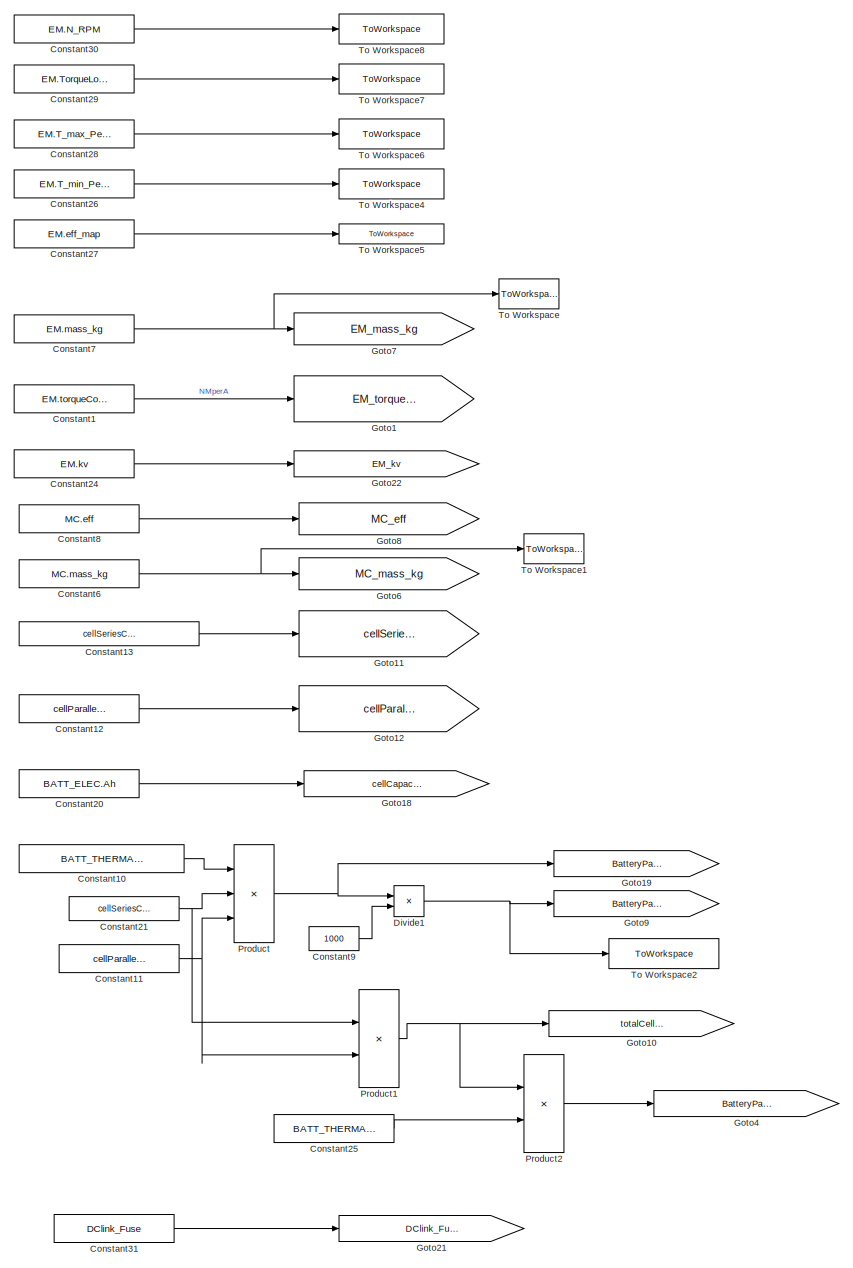
[diagram: Vehicle Parameters/Vehicle Parameters - part 1/2, right side, full height]
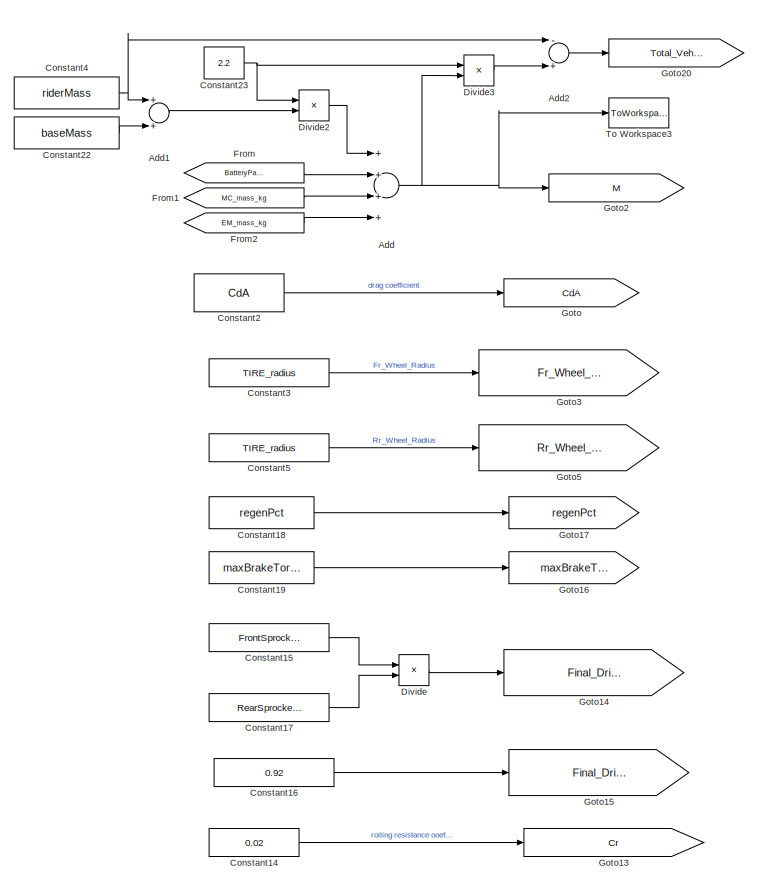
[diagram: Vehicle Parameters/Vehicle Parameters - part 2/2, middle left region]
BLOCK [SubSystem] Vehicle Parameters/Vehicle Parameters
  Ports = []
  RequestExecContextInheritance = off
  Variant = off
BLOCK [Sum] Vehicle Parameters/Vehicle Parameters/Add
  InputSameDT = off
  Inputs = ++++
  OutDataTypeStr = Inherit: Inherit via internal rule
  Ports = [4, 1]
  SaturateOnIntegerOverflow = off
BLOCK [Sum] Vehicle Parameters/Vehicle Parameters/Add1
  InputSameDT = off
  OutDataTypeStr = Inherit: Inherit via internal rule
  Ports = [2, 1]
  SaturateOnIntegerOverflow = off
BLOCK [Sum] Vehicle Parameters/Vehicle Parameters/Add2
  InputSameDT = off
  Inputs = -+
  OutDataTypeStr = Inherit: Inherit via internal rule
  Ports = [2, 1]
  SaturateOnIntegerOverflow = off
BLOCK [Constant] Vehicle Parameters/Vehicle Parameters/Constant1
  Value = EM.torqueConstant
BLOCK [Constant] Vehicle Parameters/Vehicle Parameters/Constant10
  Value = BATT_THERMAL.cell_mass_g
BLOCK [Constant] Vehicle Parameters/Vehicle Parameters/Constant11
  Value = cellParallelCount
BLOCK [Constant] Vehicle Parameters/Vehicle Parameters/Constant12
  Value = cellParallelCount
BLOCK [Constant] Vehicle Parameters/Vehicle Parameters/Constant13
  Value = cellSeriesCount
BLOCK [Constant] Vehicle Parameters/Vehicle Parameters/Constant14
  Value = 0.02
BLOCK [Constant] Vehicle Parameters/Vehicle Parameters/Constant15
  Value = FrontSprocket_toothCt
BLOCK [Constant] Vehicle Parameters/Vehicle Parameters/Constant16
  Value = 0.92
BLOCK [Constant] Vehicle Parameters/Vehicle Parameters/Constant17
  Value = RearSprocket_toothCt
BLOCK [Constant] Vehicle Parameters/Vehicle Parameters/Constant18
  Value = regenPct
BLOCK [Constant] Vehicle Parameters/Vehicle Parameters/Constant19
  Value = maxBrakeTorque
BLOCK [Constant] Vehicle Parameters/Vehicle Parameters/Constant2
  Value = CdA
BLOCK [Constant] Vehicle Parameters/Vehicle Parameters/Constant20
  Value = BATT_ELEC.Ah
BLOCK [Constant] Vehicle Parameters/Vehicle Parameters/Constant21
  Value = cellSeriesCount
BLOCK [Constant] Vehicle Parameters/Vehicle Parameters/Constant22
  Value = baseMass
BLOCK [Constant] Vehicle Parameters/Vehicle Parameters/Constant23
  Value = 2.2
BLOCK [Constant] Vehicle Parameters/Vehicle Parameters/Constant24
  Value = EM.kv
BLOCK [Constant] Vehicle Parameters/Vehicle Parameters/Constant25
  Value = BATT_THERMAL.c
BLOCK [Constant] Vehicle Parameters/Vehicle Parameters/Constant26
  Value = EM.T_min_Peak
BLOCK [Constant] Vehicle Parameters/Vehicle Parameters/Constant27
  Value = EM.eff_map
BLOCK [Constant] Vehicle Parameters/Vehicle Parameters/Constant28
  Value = EM.T_max_Peak
BLOCK [Constant] Vehicle Parameters/Vehicle Parameters/Constant29
  Value = EM.TorqueLookup
BLOCK [Constant] Vehicle Parameters/Vehicle Parameters/Constant3
  Value = TIRE_radius
BLOCK [Constant] Vehicle Parameters/Vehicle Parameters/Constant30
  Value = EM.N_RPM
BLOCK [Constant] Vehicle Parameters/Vehicle Parameters/Constant31
  Value = DClink_Fuse
BLOCK [Constant] Vehicle Parameters/Vehicle Parameters/Constant4
  Value = riderMass
BLOCK [Constant] Vehicle Parameters/Vehicle Parameters/Constant5
  Value = TIRE_radius
BLOCK [Constant] Vehicle Parameters/Vehicle Parameters/Constant6
  Value = MC.mass_kg
BLOCK [Constant] Vehicle Parameters/Vehicle Parameters/Constant7
  Value = EM.mass_kg
BLOCK [Constant] Vehicle Parameters/Vehicle Parameters/Constant8
  Value = MC.eff
BLOCK [Constant] Vehicle Parameters/Vehicle Parameters/Constant9
  Value = 1000
BLOCK [Product] Vehicle Parameters/Vehicle Parameters/Divide
  InputSameDT = off
  Inputs = /*
  OutDataTypeStr = Inherit: Inherit via internal rule
  Ports = [2, 1]
  RndMeth = Floor
  SaturateOnIntegerOverflow = off
BLOCK [Product] Vehicle Parameters/Vehicle Parameters/Divide1
  InputSameDT = off
  Inputs = */
  OutDataTypeStr = Inherit: Inherit via internal rule
  Ports = [2, 1]
  RndMeth = Floor
  SaturateOnIntegerOverflow = off
BLOCK [Product] Vehicle Parameters/Vehicle Parameters/Divide2
  InputSameDT = off
  Inputs = /*
  OutDataTypeStr = Inherit: Inherit via internal rule
  Ports = [2, 1]
  RndMeth = Floor
  SaturateOnIntegerOverflow = off
BLOCK [Product] Vehicle Parameters/Vehicle Parameters/Divide3
  InputSameDT = off
  Inputs = **
  OutDataTypeStr = Inherit: Inherit via internal rule
  Ports = [2, 1]
  RndMeth = Floor
  SaturateOnIntegerOverflow = off
BLOCK [From] Vehicle Parameters/Vehicle Parameters/From
  GotoTag = BatteryPack_mass_kg
  TagVisibility = global
BLOCK [From] Vehicle Parameters/Vehicle Parameters/From1
  GotoTag = MC_mass_kg
  TagVisibility = global
BLOCK [From] Vehicle Parameters/Vehicle Parameters/From2
  GotoTag = EM_mass_kg
  TagVisibility = global
BLOCK [Goto] Vehicle Parameters/Vehicle Parameters/Goto
  GotoTag = CdA
  IconDisplay = Tag and signal name
  TagVisibility = global
BLOCK [Goto] Vehicle Parameters/Vehicle Parameters/Goto1
  GotoTag = EM_torqueConstant
  IconDisplay = Tag and signal name
  TagVisibility = global
BLOCK [Goto] Vehicle Parameters/Vehicle Parameters/Goto10
  GotoTag = totalCellCount
  IconDisplay = Tag and signal name
  TagVisibility = global
BLOCK [Goto] Vehicle Parameters/Vehicle Parameters/Goto11
  GotoTag = cellSeriesCount
  IconDisplay = Tag and signal name
  TagVisibility = global
BLOCK [Goto] Vehicle Parameters/Vehicle Parameters/Goto12
  GotoTag = cellParallelCount
  IconDisplay = Tag and signal name
  TagVisibility = global
BLOCK [Goto] Vehicle Parameters/Vehicle Parameters/Goto13
  GotoTag = Cr
  IconDisplay = Tag and signal name
  TagVisibility = global
BLOCK [Goto] Vehicle Parameters/Vehicle Parameters/Goto14
  GotoTag = Final_Drive_Ratio
  IconDisplay = Tag and signal name
  TagVisibility = global
BLOCK [Goto] Vehicle Parameters/Vehicle Parameters/Goto15
  GotoTag = Final_Drive_Eff
  IconDisplay = Tag and signal name
  TagVisibility = global
BLOCK [Goto] Vehicle Parameters/Vehicle Parameters/Goto16
  GotoTag = maxBrakeTorque
  IconDisplay = Tag and signal name
  TagVisibility = global
BLOCK [Goto] Vehicle Parameters/Vehicle Parameters/Goto17
  GotoTag = regenPct
  IconDisplay = Tag and signal name
  TagVisibility = global
BLOCK [Goto] Vehicle Parameters/Vehicle Parameters/Goto18
  GotoTag = cellCapacity
  IconDisplay = Tag and signal name
  TagVisibility = global
BLOCK [Goto] Vehicle Parameters/Vehicle Parameters/Goto19
  GotoTag = BatteryPack_mass_g
  IconDisplay = Tag and signal name
  TagVisibility = global
BLOCK [Goto] Vehicle Parameters/Vehicle Parameters/Goto2
  GotoTag = M
  IconDisplay = Tag and signal name
  TagVisibility = global
BLOCK [Goto] Vehicle Parameters/Vehicle Parameters/Goto20
  GotoTag = Total_Vehicle_Weight
  IconDisplay = Tag and signal name
  TagVisibility = global
BLOCK [Goto] Vehicle Parameters/Vehicle Parameters/Goto21
  GotoTag = DClink_Fuse
  IconDisplay = Tag and signal name
  TagVisibility = global
BLOCK [Goto] Vehicle Parameters/Vehicle Parameters/Goto22
  GotoTag = EM_kv
  IconDisplay = Tag and signal name
  TagVisibility = global
BLOCK [Goto] Vehicle Parameters/Vehicle Parameters/Goto3
  GotoTag = Fr_Wheel_Radius
  IconDisplay = Tag and signal name
  TagVisibility = global
BLOCK [Goto] Vehicle Parameters/Vehicle Parameters/Goto4
  GotoTag = BatteryPack_c
  IconDisplay = Tag and signal name
  TagVisibility = global
BLOCK [Goto] Vehicle Parameters/Vehicle Parameters/Goto5
  GotoTag = Rr_Wheel_Radius
  IconDisplay = Tag and signal name
  TagVisibility = global
BLOCK [Goto] Vehicle Parameters/Vehicle Parameters/Goto6
  GotoTag = MC_mass_kg
  IconDisplay = Tag and signal name
  TagVisibility = global
BLOCK [Goto] Vehicle Parameters/Vehicle Parameters/Goto7
  GotoTag = EM_mass_kg
  IconDisplay = Tag and signal name
  TagVisibility = global
BLOCK [Goto] Vehicle Parameters/Vehicle Parameters/Goto8
  GotoTag = MC_eff
  IconDisplay = Tag and signal name
  TagVisibility = global
BLOCK [Goto] Vehicle Parameters/Vehicle Parameters/Goto9
  GotoTag = BatteryPack_mass_kg
  IconDisplay = Tag and signal name
  TagVisibility = global
BLOCK [Product] Vehicle Parameters/Vehicle Parameters/Product
  InputSameDT = off
  Inputs = 3
  OutDataTypeStr = Inherit: Inherit via internal rule
  Ports = [3, 1]
  RndMeth = Floor
  SaturateOnIntegerOverflow = off
BLOCK [Product] Vehicle Parameters/Vehicle Parameters/Product1
  InputSameDT = off
  OutDataTypeStr = Inherit: Inherit via internal rule
  Ports = [2, 1]
  RndMeth = Floor
  SaturateOnIntegerOverflow = off
BLOCK [Product] Vehicle Parameters/Vehicle Parameters/Product2
  InputSameDT = off
  OutDataTypeStr = Inherit: Inherit via internal rule
  Ports = [2, 1]
  RndMeth = Floor
  SaturateOnIntegerOverflow = off
BLOCK [ToWorkspace] Vehicle Parameters/Vehicle Parameters/To Workspace
  FixptAsFi = on
  MaxDataPoints = inf
  Ports = [1]
  SampleTime = -1
  Save2DSignal = 3-D array (concatenate along third dimension)
  VariableName = EM_mass_kg
BLOCK [ToWorkspace] Vehicle Parameters/Vehicle Parameters/To Workspace1
  FixptAsFi = on
  MaxDataPoints = inf
  Ports = [1]
  SampleTime = -1
  Save2DSignal = 3-D array (concatenate along third dimension)
  VariableName = MC_mass_kg
BLOCK [ToWorkspace] Vehicle Parameters/Vehicle Parameters/To Workspace2
  FixptAsFi = on
  MaxDataPoints = inf
  Ports = [1]
  SampleTime = -1
  Save2DSignal = 3-D array (concatenate along third dimension)
  VariableName = BatteryPack_mass_kg
BLOCK [ToWorkspace] Vehicle Parameters/Vehicle Parameters/To Workspace3
  FixptAsFi = on
  MaxDataPoints = inf
  Ports = [1]
  SampleTime = -1
  Save2DSignal = 3-D array (concatenate along third dimension)
  VariableName = Total_Mass
BLOCK [ToWorkspace] Vehicle Parameters/Vehicle Parameters/To Workspace4
  FixptAsFi = on
  MaxDataPoints = 1
  Ports = [1]
  SampleTime = -1
  VariableName = EM_T_min_Peak
BLOCK [ToWorkspace] Vehicle Parameters/Vehicle Parameters/To Workspace5
  MaxDataPoints = 1
  Ports = [1]
  SampleTime = -1
  VariableName = EM_eff_map
BLOCK [ToWorkspace] Vehicle Parameters/Vehicle Parameters/To Workspace6
  FixptAsFi = on
  MaxDataPoints = 1
  Ports = [1]
  SampleTime = -1
  VariableName = EM_T_max_Peak
BLOCK [ToWorkspace] Vehicle Parameters/Vehicle Parameters/To Workspace7
  FixptAsFi = on
  MaxDataPoints = 1
  Ports = [1]
  SampleTime = -1
  VariableName = EM_TorqueLookup
BLOCK [ToWorkspace] Vehicle Parameters/Vehicle Parameters/To Workspace8
  FixptAsFi = on
  MaxDataPoints = 1
  Ports = [1]
  SampleTime = -1
  VariableName = EM_max_min_RPM
BLOCK [SubSystem] Vehicle Parameters/Vehicle Rear Wheels
  Ports = [1, 1]
  RequestExecContextInheritance = off
  Variant = off
BLOCK [Product] Vehicle Parameters/Vehicle Rear Wheels/Divide
  InputSameDT = off
  Inputs = */
  OutDataTypeStr = Inherit: Inherit via internal rule
  Ports = [2, 1]
  RndMeth = Floor
  SaturateOnIntegerOverflow = off
BLOCK [From] Vehicle Parameters/Vehicle Rear Wheels/From
  GotoTag = Rr_Wheel_Radius
  TagVisibility = global
BLOCK [Inport] Vehicle Parameters/Vehicle Rear Wheels/In1
  IconDisplay = Signal name
BLOCK [Outport] Vehicle Parameters/Vehicle Rear Wheels/Out1
  IconDisplay = Signal name
BLOCK [Inport] Vehicle Parameters/alpha
  IconDisplay = Port number and signal name
ANNOTATION (root): Electric vehicle point mass simulation tool
ANNOTATION (root): SIMBA link
ANNOTATION Vehicle Parameters/Battery Pack/Battery Parameters Calculation: if I CHARGE
ANNOTATION Vehicle Parameters/Battery Pack/Battery Parameters Calculation: if I>0 --> DISCHARGE
LINE Enable(1)//disable(0) pause:1 -> Pause simulation at specified time (Use for diagnosis if needed):enable
LINE Outputs/Battery Outputs/Add:1 -> Outputs/Battery Outputs/ 6:1
NET Outputs/Battery Outputs/Compare To Zero:1 -> Outputs/Battery Outputs/Product:2, Outputs/Battery Outputs/Scope1:1
LINE Outputs/Battery Outputs/Constant:1 -> Outputs/Battery Outputs/Add:2
LINE Outputs/Battery Outputs/Divide:1 -> Outputs/Battery Outputs/kW to W:1
NET Outputs/Battery Outputs/From1:1 -> Outputs/Battery Outputs/ 3:1, Outputs/Battery Outputs/Out2:1, Outputs/Battery Outputs/Scope2:2, Outputs/Battery Outputs/Stop sim if SOC reaches zero:1
LINE Outputs/Battery Outputs/From2:1 -> Outputs/Battery Outputs/ 4:1
LINE Outputs/Battery Outputs/From3:1 -> Outputs/Battery Outputs/Compare To Zero:1
LINE Outputs/Battery Outputs/From4:1 -> Outputs/Battery Outputs/Add:1
LINE Outputs/Battery Outputs/From5:1 -> Outputs/Battery Outputs/Divide:2
LINE Outputs/Battery Outputs/From6:1 -> Outputs/Battery Outputs/W to kW:1
LINE Outputs/Battery Outputs/From7:1 -> Outputs/Battery Outputs/ 8:1
LINE Outputs/Battery Outputs/From8:1 -> Outputs/Battery Outputs/ 9:1
LINE Outputs/Battery Outputs/Integrator1:1 -> Outputs/Battery Outputs/s to hr1:1
LINE Outputs/Battery Outputs/Integrator2:1 -> Outputs/Battery Outputs/s to hr2:1
LINE Outputs/Battery Outputs/Integrator:1 -> Outputs/Battery Outputs/s to hr:1
NET Outputs/Battery Outputs/Product:1 -> Outputs/Battery Outputs/Integrator1:1, Outputs/Battery Outputs/Scope:2
LINE Outputs/Battery Outputs/Saturation1:1 -> Outputs/Battery Outputs/Integrator2:1
NET Outputs/Battery Outputs/Saturation:1 -> Outputs/Battery Outputs/Product:1, Outputs/Battery Outputs/Scope1:2, Outputs/Battery Outputs/Scope:1
LINE Outputs/Battery Outputs/Stop sim if SOC reaches zero:1 -> Outputs/Battery Outputs/Stop Simulation:1
NET Outputs/Battery Outputs/W to kW:1 -> Outputs/Battery Outputs/ 1:1, Outputs/Battery Outputs/Integrator:1, Outputs/Battery Outputs/Out5:1, Outputs/Battery Outputs/Saturation1:1, Outputs/Battery Outputs/Saturation:1
NET Outputs/Battery Outputs/kW to W:1 -> Outputs/Battery Outputs/ 10:1, Outputs/Battery Outputs/Out3:1
LINE Outputs/Battery Outputs/s to hr1:1 -> Outputs/Battery Outputs/ 5:1
NET Outputs/Battery Outputs/s to hr2:1 -> Outputs/Battery Outputs/ 7:1, Outputs/Battery Outputs/Scope2:1
NET Outputs/Battery Outputs/s to hr:1 -> Outputs/Battery Outputs/ 2:1, Outputs/Battery Outputs/Divide:1, Outputs/Battery Outputs/Out1:1
LINE Outputs/Battery Outputs:1 -> Outputs/Out5:1
LINE Outputs/Battery Outputs:2 -> Outputs/Out12:1
LINE Outputs/Battery Outputs:3 -> Outputs/Distance (mi):1
LINE Outputs/Battery Outputs:4 -> Outputs/Out2:1
LINE Outputs/Driver/From1:1 -> Outputs/Driver/To Workspace1:1
LINE Outputs/Driver/From2:1 -> Outputs/Driver/To Workspace6:1
LINE Outputs/EM Outputs/From1:1 -> Outputs/EM Outputs/ 1:1
LINE Outputs/EM Outputs/From2:1 -> Outputs/EM Outputs/W to kW1:1
LINE Outputs/EM Outputs/From3:1 -> Outputs/EM Outputs/ 3:1
LINE Outputs/EM Outputs/From4:1 -> Outputs/EM Outputs/ 9:1
LINE Outputs/EM Outputs/From5:1 -> Outputs/EM Outputs/ 10:1
LINE Outputs/EM Outputs/From6:1 -> Outputs/EM Outputs/ 7:1
NET Outputs/EM Outputs/From7:1 -> Outputs/EM Outputs/ 4:1, Outputs/EM Outputs/Out8:1, Outputs/EM Outputs/Product:2
LINE Outputs/EM Outputs/From8:1 -> Outputs/EM Outputs/ 8:1
NET Outputs/EM Outputs/From:1 -> Outputs/EM Outputs/ 5:1, Outputs/EM Outputs/Out7:1, Outputs/EM Outputs/rpm to rad//sec:1
LINE Outputs/EM Outputs/Product:1 -> Outputs/EM Outputs/W to kW2:1
LINE Outputs/EM Outputs/W to kW1:1 -> Outputs/EM Outputs/ 6:1
LINE Outputs/EM Outputs/W to kW2:1 -> Outputs/EM Outputs/ 2:1
LINE Outputs/EM Outputs/rpm to rad//sec:1 -> Outputs/EM Outputs/Product:1
LINE Outputs/EM Outputs:1 -> Outputs/Out3:1
LINE Outputs/EM Outputs:2 -> Outputs/Out1:1
NET Outputs/Vehicle Parameters/Clock:1 -> Outputs/Vehicle Parameters/ :1, Outputs/Vehicle Parameters/Out2:1
LINE Outputs/Vehicle Parameters/From1:1 -> Outputs/Vehicle Parameters/ 1:1
LINE Outputs/Vehicle Parameters/From2:1 -> Outputs/Vehicle Parameters/ 3:1
NET Outputs/Vehicle Parameters/From3:1 -> Outputs/Vehicle Parameters/To Workspace3:1, Outputs/Vehicle Parameters/m to mi:1
NET Outputs/Vehicle Parameters/From4:1 -> Outputs/Vehicle Parameters/To Workspace2:1, Outputs/Vehicle Parameters/m//s to mph:1
LINE Outputs/Vehicle Parameters/From5:1 -> Outputs/Vehicle Parameters/m//s to mph1:1
LINE Outputs/Vehicle Parameters/From6:1 -> Outputs/Vehicle Parameters/Out1:1
NET Outputs/Vehicle Parameters/m to mi:1 -> Outputs/Vehicle Parameters/ 2:1, Outputs/Vehicle Parameters/Distance (mi):1, Outputs/Vehicle Parameters/To Workspace1:1
NET Outputs/Vehicle Parameters/m//s to mph1:1 -> Outputs/Vehicle Parameters/Distance (mi)1:1, Outputs/Vehicle Parameters/To Workspace6:1
LINE Outputs/Vehicle Parameters/m//s to mph:1 -> Outputs/Vehicle Parameters/To Workspace5:1
LINE Outputs/Vehicle Parameters:1 -> Outputs/Out4:1
LINE Outputs/Vehicle Parameters:2 -> Outputs/Out6:1
LINE Outputs/Vehicle Parameters:3 -> Outputs/Out7:1
LINE Outputs/Vehicle Parameters:4 -> Outputs/Out8:1
LINE Outputs:1 ->  :1
LINE Outputs:10 ->  9:1
LINE Outputs:2 ->  1:1
LINE Outputs:3 ->  2:1
LINE Outputs:4 ->  3:1
LINE Outputs:5 ->  4:1
LINE Outputs:6 ->  5:1
LINE Outputs:7 ->  6:1
LINE Outputs:8 ->  7:1
LINE Outputs:9 ->  8:1
LINE Pause Time (s):1 -> Pause simulation at specified time (Use for diagnosis if needed):1
LINE Pause simulation at specified time (Use for diagnosis if needed)/Add1:1 -> Pause simulation at specified time (Use for diagnosis if needed)/Compare To Zero1:1
LINE Pause simulation at specified time (Use for diagnosis if needed)/Clock1:1 -> Pause simulation at specified time (Use for diagnosis if needed)/Add1:1
LINE Pause simulation at specified time (Use for diagnosis if needed)/Compare To Zero1:1 -> Pause simulation at specified time (Use for diagnosis if needed)/Assertion1:1
LINE Pause simulation at specified time (Use for diagnosis if needed)/Pause time (s):1 -> Pause simulation at specified time (Use for diagnosis if needed)/Add1:2
LINE Rider Control/Clock:1 -> Rider Control/Relational Operator2:1
LINE Rider Control/Constant:1 -> Rider Control/Switch:1
LINE Rider Control/D Gain:1 -> Rider Control/Derivative:1
LINE Rider Control/Derivative:1 -> Rider Control/Sum1:3
LINE Rider Control/From Driver1:1 -> Rider Control/Switch3:2
LINE Rider Control/From Driver2:1 -> Rider Control/Relational Operator1:2
LINE Rider Control/From Driver3:1 -> Rider Control/Switch1:2
NET Rider Control/From Driver4:1 -> Rider Control/Display3:1, Rider Control/Relational Operator3:1
LINE Rider Control/From Driver5:1 -> Rider Control/Switch:2
NET Rider Control/From1:1 -> Rider Control/Display:1, Rider Control/Relational Operator2:2
NET Rider Control/From2:1 -> Rider Control/Display2:1, Rider Control/Relational Operator3:2
LINE Rider Control/From:1 -> Rider Control/Sum:1
NET Rider Control/Gain2:1 -> Rider Control/Beta:1, Rider Control/Goto4:1
LINE Rider Control/I Gain:1 -> Rider Control/Integrator:1
LINE Rider Control/Integrator:1 -> Rider Control/Sum1:2
LINE Rider Control/P Gain:1 -> Rider Control/Sum1:1
LINE Rider Control/Relational Operator1:1 -> Rider Control/Switch3:1
LINE Rider Control/Relational Operator2:1 -> Rider Control/Switch1:3
LINE Rider Control/Relational Operator3:1 -> Rider Control/Switch1:1
LINE Rider Control/Saturation1:1 -> Rider Control/Gain2:1
NET Rider Control/Saturation:1 -> Rider Control/Display1:1, Rider Control/Switch:3, Rider Control/To Workspace:1
NET Rider Control/Sum1:1 -> Rider Control/Saturation1:1, Rider Control/Saturation:1
NET Rider Control/Sum:1 -> Rider Control/D Gain:1, Rider Control/I Gain:1, Rider Control/P Gain:1
LINE Rider Control/Switch1:1 -> Rider Control/Switch3:3
LINE Rider Control/Switch3:1 -> Rider Control/Stop Simulation:1
NET Rider Control/Switch:1 -> Rider Control/Alpha:1, Rider Control/Goto1:1
NET Rider Control/V_Veh_Mps:1 -> Rider Control/Relational Operator1:1, Rider Control/Sum:2
LINE Rider Control:1 -> Vehicle Parameters:1
LINE Rider Control:2 -> Vehicle Parameters:2
LINE Road Load & Test Conditions/CONVERT TO whl rev per second :1 -> Road Load & Test Conditions/velocity limit:1
LINE Road Load & Test Conditions/Calc wheel circumference1:1 -> Road Load & Test Conditions/velocity limit:2
NET Road Load & Test Conditions/Constant1:1 -> Road Load & Test Conditions/ 4:1, Road Load & Test Conditions/Goto2:1
NET Road Load & Test Conditions/Constant2:1 -> Road Load & Test Conditions/Goto Fuel Tank1:1, Road Load & Test Conditions/Switch:1
LINE Road Load & Test Conditions/Constant3:1 -> Road Load & Test Conditions/Switch1:2
NET Road Load & Test Conditions/Constant4:1 -> Road Load & Test Conditions/Acceleration Test Flag:1, Road Load & Test Conditions/Goto Fuel Tank3:1, Road Load & Test Conditions/Switch:2
NET Road Load & Test Conditions/Constant5:1 -> Road Load & Test Conditions/ 2:1, Road Load & Test Conditions/Goto1:1
NET Road Load & Test Conditions/Constant7:1 -> Road Load & Test Conditions/ 1:1, Road Load & Test Conditions/Goto3:1
LINE Road Load & Test Conditions/From1:1 -> Road Load & Test Conditions/vehicle velocity:1
LINE Road Load & Test Conditions/From2:1 -> Road Load & Test Conditions/Calc wheel circumference1:1
LINE Road Load & Test Conditions/From5:1 -> Road Load & Test Conditions/Product1:2
LINE Road Load & Test Conditions/From6:1 -> Road Load & Test Conditions/Product1:1
LINE Road Load & Test Conditions/From8:1 -> Road Load & Test Conditions/convert to wheel rpm:2
LINE Road Load & Test Conditions/Input Traction Force1:1 -> Road Load & Test Conditions/Vehicle_speed_Calculation:1
NET Road Load & Test Conditions/Product1:1 -> Road Load & Test Conditions/Goto8:1, Road Load & Test Conditions/convert to wheel rpm:1
LINE Road Load & Test Conditions/Repeating Sequence:1 -> Road Load & Test Conditions/Switch1:3
LINE Road Load & Test Conditions/Road and Enviorment/Constant1:1 -> Road Load & Test Conditions/Road and Enviorment/Goto5:1
LINE Road Load & Test Conditions/Road and Enviorment/Constant2:1 -> Road Load & Test Conditions/Road and Enviorment/Goto2:1
LINE Road Load & Test Conditions/Road and Enviorment/Constant3:1 -> Road Load & Test Conditions/Road and Enviorment/Goto3:1
LINE Road Load & Test Conditions/Road and Enviorment/Constant4:1 -> Road Load & Test Conditions/Road and Enviorment/Goto1:1
LINE Road Load & Test Conditions/Road and Enviorment/Constant5:1 -> Road Load & Test Conditions/Road and Enviorment/Goto4:1
LINE Road Load & Test Conditions/Road and Enviorment/Constant6:1 -> Road Load & Test Conditions/Road and Enviorment/Goto6:1
LINE Road Load & Test Conditions/Switch1:1 -> Road Load & Test Conditions/Switch:3
LINE Road Load & Test Conditions/Switch:1 -> Road Load & Test Conditions/Goto4:1
LINE Road Load & Test Conditions/Vehicle Loads/Aerodynamic  Drag/Constant:1 -> Road Load & Test Conditions/Vehicle Loads/Aerodynamic  Drag/Drag force =1//2*row_a*Cd*Af*v2:1
LINE Road Load & Test Conditions/Vehicle Loads/Aerodynamic  Drag/Drag force =1//2*row_a*Cd*Af*v2:1 -> Road Load & Test Conditions/Vehicle Loads/Aerodynamic  Drag/Drag Power:1
LINE Road Load & Test Conditions/Vehicle Loads/Aerodynamic  Drag/From1:1 -> Road Load & Test Conditions/Vehicle Loads/Aerodynamic  Drag/Drag force =1//2*row_a*Cd*Af*v2:3
LINE Road Load & Test Conditions/Vehicle Loads/Aerodynamic  Drag/From3:1 -> Road Load & Test Conditions/Vehicle Loads/Aerodynamic  Drag/Sum:1
LINE Road Load & Test Conditions/Vehicle Loads/Aerodynamic  Drag/From4:1 -> Road Load & Test Conditions/Vehicle Loads/Aerodynamic  Drag/Sum:2
LINE Road Load & Test Conditions/Vehicle Loads/Aerodynamic  Drag/From:1 -> Road Load & Test Conditions/Vehicle Loads/Aerodynamic  Drag/Drag force =1//2*row_a*Cd*Af*v2:2
LINE Road Load & Test Conditions/Vehicle Loads/Aerodynamic  Drag/Sum:1 -> Road Load & Test Conditions/Vehicle Loads/Aerodynamic  Drag/drag_v1:1
LINE Road Load & Test Conditions/Vehicle Loads/Aerodynamic  Drag/drag_v1:1 -> Road Load & Test Conditions/Vehicle Loads/Aerodynamic  Drag/Drag force =1//2*row_a*Cd*Af*v2:4
LINE Road Load & Test Conditions/Vehicle Loads/Aerodynamic  Drag/square:1 -> Road Load & Test Conditions/Vehicle Loads/Aerodynamic  Drag/drag_v1:2
NET Road Load & Test Conditions/Vehicle Loads/Aerodynamic  Drag:1 -> Road Load & Test Conditions/Vehicle Loads/Display1:1, Road Load & Test Conditions/Vehicle Loads/Sum4:2
LINE Road Load & Test Conditions/Vehicle Loads/Grade Force/Fcn:1 -> Road Load & Test Conditions/Vehicle Loads/Grade Force/Grade Force = M*g*sin(road_grade):3
LINE Road Load & Test Conditions/Vehicle Loads/Grade Force/From2:1 -> Road Load & Test Conditions/Vehicle Loads/Grade Force/d to rad:1
LINE Road Load & Test Conditions/Vehicle Loads/Grade Force/From:1 -> Road Load & Test Conditions/Vehicle Loads/Grade Force/Grade Force = M*g*sin(road_grade):1
NET Road Load & Test Conditions/Vehicle Loads/Grade Force/Grade Force = M*g*sin(road_grade):1 -> Road Load & Test Conditions/Vehicle Loads/Grade Force/Display:1, Road Load & Test Conditions/Vehicle Loads/Grade Force/Drag Power:1
LINE Road Load & Test Conditions/Vehicle Loads/Grade Force/d to rad:1 -> Road Load & Test Conditions/Vehicle Loads/Grade Force/Fcn:1
LINE Road Load & Test Conditions/Vehicle Loads/Grade Force/gravity:1 -> Road Load & Test Conditions/Vehicle Loads/Grade Force/Grade Force = M*g*sin(road_grade):2
NET Road Load & Test Conditions/Vehicle Loads/Grade Force:1 -> Road Load & Test Conditions/Vehicle Loads/Display2:1, Road Load & Test Conditions/Vehicle Loads/Sum4:1
NET Road Load & Test Conditions/Vehicle Loads/Roll Force/Fcn1:1 -> Road Load & Test Conditions/Vehicle Loads/Roll Force/Display:1, Road Load & Test Conditions/Vehicle Loads/Roll Force/Roll_Force = Cr*M*g*cosd(road_grade):1
LINE Road Load & Test Conditions/Vehicle Loads/Roll Force/Fcn:1 -> Road Load & Test Conditions/Vehicle Loads/Roll Force/Roll_Force = Cr*M*g*cosd(road_grade):4
NET Road Load & Test Conditions/Vehicle Loads/Roll Force/From1:1 -> Road Load & Test Conditions/Vehicle Loads/Roll Force/Display3:1, Road Load & Test Conditions/Vehicle Loads/Roll Force/Mux:2, Road Load & Test Conditions/Vehicle Loads/Roll Force/Roll_Force = Cr*M*g*cosd(road_grade):2
LINE Road Load & Test Conditions/Vehicle Loads/Roll Force/From3:1 -> Road Load & Test Conditions/Vehicle Loads/Roll Force/d to rad:1
LINE Road Load & Test Conditions/Vehicle Loads/Roll Force/From4:1 -> Road Load & Test Conditions/Vehicle Loads/Roll Force/Mux:1
LINE Road Load & Test Conditions/Vehicle Loads/Roll Force/From:1 -> Road Load & Test Conditions/Vehicle Loads/Roll Force/Display1:1
LINE Road Load & Test Conditions/Vehicle Loads/Roll Force/Mux:1 -> Road Load & Test Conditions/Vehicle Loads/Roll Force/Fcn1:1
LINE Road Load & Test Conditions/Vehicle Loads/Roll Force/Roll_Force = Cr*M*g*cosd(road_grade):1 -> Road Load & Test Conditions/Vehicle Loads/Roll Force/Power_roll:1
LINE Road Load & Test Conditions/Vehicle Loads/Roll Force/d to rad:1 -> Road Load & Test Conditions/Vehicle Loads/Roll Force/Fcn:1
LINE Road Load & Test Conditions/Vehicle Loads/Roll Force/gravity accel (m//s^2) :1 -> Road Load & Test Conditions/Vehicle Loads/Roll Force/Roll_Force = Cr*M*g*cosd(road_grade):3
NET Road Load & Test Conditions/Vehicle Loads/Roll Force:1 -> Road Load & Test Conditions/Vehicle Loads/Display3:1, Road Load & Test Conditions/Vehicle Loads/Sum4:3
LINE Road Load & Test Conditions/Vehicle Loads/Sum4:1 -> Road Load & Test Conditions/Vehicle Loads/F (N):1
LINE Road Load & Test Conditions/Vehicle Loads:1 -> Road Load & Test Conditions/Vehicle_speed_Calculation:2
LINE Road Load & Test Conditions/Vehicle_speed_Calculation/Divide:1 -> Road Load & Test Conditions/Vehicle_speed_Calculation/Integrator Limited:1
LINE Road Load & Test Conditions/Vehicle_speed_Calculation/From:1 -> Road Load & Test Conditions/Vehicle_speed_Calculation/Divide:2
NET Road Load & Test Conditions/Vehicle_speed_Calculation/In1:1 -> Road Load & Test Conditions/Vehicle_speed_Calculation/Display:1, Road Load & Test Conditions/Vehicle_speed_Calculation/Sum:1
NET Road Load & Test Conditions/Vehicle_speed_Calculation/In3:1 -> Road Load & Test Conditions/Vehicle_speed_Calculation/Display1:1, Road Load & Test Conditions/Vehicle_speed_Calculation/Sum:2
LINE Road Load & Test Conditions/Vehicle_speed_Calculation/Integrator Limited1:1 -> Road Load & Test Conditions/Vehicle_speed_Calculation/Goto3:1
NET Road Load & Test Conditions/Vehicle_speed_Calculation/Integrator Limited:1 -> Road Load & Test Conditions/Vehicle_speed_Calculation/F (N)1:1, Road Load & Test Conditions/Vehicle_speed_Calculation/Goto2:1, Road Load & Test Conditions/Vehicle_speed_Calculation/Integrator Limited1:1
LINE Road Load & Test Conditions/Vehicle_speed_Calculation/Mass factor:1 -> Road Load & Test Conditions/Vehicle_speed_Calculation/Divide:3
LINE Road Load & Test Conditions/Vehicle_speed_Calculation/Sum:1 -> Road Load & Test Conditions/Vehicle_speed_Calculation/Divide:1
LINE Road Load & Test Conditions/Vehicle_speed_Calculation:1 -> Road Load & Test Conditions/F (N)1:1
LINE Road Load & Test Conditions/convert to wheel rpm:1 -> Road Load & Test Conditions/CONVERT TO whl rev per second :1
LINE Road Load & Test Conditions/vehicle velocity:1 -> Road Load & Test Conditions/Switch1:1
LINE Road Load & Test Conditions/velocity limit:1 -> Road Load & Test Conditions/Goto5:1
LINE Road Load & Test Conditions:1 -> Rider Control:1
LINE Vehicle Parameters/Battery Pack/Battery Parameters Calculation/Demux:1 -> Vehicle Parameters/Battery Pack/Battery Parameters Calculation/ 1:1
LINE Vehicle Parameters/Battery Pack/Battery Parameters Calculation/Demux:2 -> Vehicle Parameters/Battery Pack/Battery Parameters Calculation/ 2:1
LINE Vehicle Parameters/Battery Pack/Battery Parameters Calculation/Demux:3 -> Vehicle Parameters/Battery Pack/Battery Parameters Calculation/ 3:1
LINE Vehicle Parameters/Battery Pack/Battery Parameters Calculation/From4:1 -> Vehicle Parameters/Battery Pack/Battery Parameters Calculation/Switch CHARGE OR DISCHARGE:1
LINE Vehicle Parameters/Battery Pack/Battery Parameters Calculation/From6:1 -> Vehicle Parameters/Battery Pack/Battery Parameters Calculation/Switch CHARGE OR DISCHARGE:3
LINE Vehicle Parameters/Battery Pack/Battery Parameters Calculation/OCV Calculation for Battery/From1:1 -> Vehicle Parameters/Battery Pack/Battery Parameters Calculation/OCV Calculation for Battery/SoC vs. OCV:1
LINE Vehicle Parameters/Battery Pack/Battery Parameters Calculation/OCV Calculation for Battery/SoC vs. OCV:1 -> Vehicle Parameters/Battery Pack/Battery Parameters Calculation/OCV Calculation for Battery/ 4:1
LINE Vehicle Parameters/Battery Pack/Battery Parameters Calculation/R0, C1, R1 Calculation for Battery/C1 Ch:1 -> Vehicle Parameters/Battery Pack/Battery Parameters Calculation/R0, C1, R1 Calculation for Battery/Mux1:3
LINE Vehicle Parameters/Battery Pack/Battery Parameters Calculation/R0, C1, R1 Calculation for Battery/C1 Disch:1 -> Vehicle Parameters/Battery Pack/Battery Parameters Calculation/R0, C1, R1 Calculation for Battery/Mux:3
LINE Vehicle Parameters/Battery Pack/Battery Parameters Calculation/R0, C1, R1 Calculation for Battery/Constant:1 -> Vehicle Parameters/Battery Pack/Battery Parameters Calculation/R0, C1, R1 Calculation for Battery/Sum:1
LINE Vehicle Parameters/Battery Pack/Battery Parameters Calculation/R0, C1, R1 Calculation for Battery/From1:1 -> Vehicle Parameters/Battery Pack/Battery Parameters Calculation/R0, C1, R1 Calculation for Battery/Sum:2
NET Vehicle Parameters/Battery Pack/Battery Parameters Calculation/R0, C1, R1 Calculation for Battery/From3:1 -> Vehicle Parameters/Battery Pack/Battery Parameters Calculation/R0, C1, R1 Calculation for Battery/C1 Ch:2, Vehicle Parameters/Battery Pack/Battery Parameters Calculation/R0, C1, R1 Calculation for Battery/C1 Disch:2, Vehicle Parameters/Battery Pack/Battery Parameters Calculation/R0, C1, R1 Calculation for Battery/R0 Disch:2, Vehicle Parameters/Battery Pack/Battery Parameters Calculation/R0, C1, R1 Calculation for Battery/R0 ch:2, Vehicle Parameters/Battery Pack/Battery Parameters Calculation/R0, C1, R1 Calculation for Battery/R1 Ch:2, Vehicle Parameters/Battery Pack/Battery Parameters Calculation/R0, C1, R1 Calculation for Battery/R1 Disch:2
LINE Vehicle Parameters/Battery Pack/Battery Parameters Calculation/R0, C1, R1 Calculation for Battery/From4:1 -> Vehicle Parameters/Battery Pack/Battery Parameters Calculation/R0, C1, R1 Calculation for Battery/Math Reciprocal:1
NET Vehicle Parameters/Battery Pack/Battery Parameters Calculation/R0, C1, R1 Calculation for Battery/Math Reciprocal:1 -> Vehicle Parameters/Battery Pack/Battery Parameters Calculation/R0, C1, R1 Calculation for Battery/Product1:1, Vehicle Parameters/Battery Pack/Battery Parameters Calculation/R0, C1, R1 Calculation for Battery/Product:2
LINE Vehicle Parameters/Battery Pack/Battery Parameters Calculation/R0, C1, R1 Calculation for Battery/Mux1:1 -> Vehicle Parameters/Battery Pack/Battery Parameters Calculation/R0, C1, R1 Calculation for Battery/Product1:2
LINE Vehicle Parameters/Battery Pack/Battery Parameters Calculation/R0, C1, R1 Calculation for Battery/Mux:1 -> Vehicle Parameters/Battery Pack/Battery Parameters Calculation/R0, C1, R1 Calculation for Battery/Product:1
LINE Vehicle Parameters/Battery Pack/Battery Parameters Calculation/R0, C1, R1 Calculation for Battery/Product1:1 -> Vehicle Parameters/Battery Pack/Battery Parameters Calculation/R0, C1, R1 Calculation for Battery/ 5:1
LINE Vehicle Parameters/Battery Pack/Battery Parameters Calculation/R0, C1, R1 Calculation for Battery/Product:1 -> Vehicle Parameters/Battery Pack/Battery Parameters Calculation/R0, C1, R1 Calculation for Battery/ 4:1
LINE Vehicle Parameters/Battery Pack/Battery Parameters Calculation/R0, C1, R1 Calculation for Battery/R0 Disch:1 -> Vehicle Parameters/Battery Pack/Battery Parameters Calculation/R0, C1, R1 Calculation for Battery/Mux:1
LINE Vehicle Parameters/Battery Pack/Battery Parameters Calculation/R0, C1, R1 Calculation for Battery/R0 ch:1 -> Vehicle Parameters/Battery Pack/Battery Parameters Calculation/R0, C1, R1 Calculation for Battery/Mux1:1
LINE Vehicle Parameters/Battery Pack/Battery Parameters Calculation/R0, C1, R1 Calculation for Battery/R1 Ch:1 -> Vehicle Parameters/Battery Pack/Battery Parameters Calculation/R0, C1, R1 Calculation for Battery/Mux1:2
LINE Vehicle Parameters/Battery Pack/Battery Parameters Calculation/R0, C1, R1 Calculation for Battery/R1 Disch:1 -> Vehicle Parameters/Battery Pack/Battery Parameters Calculation/R0, C1, R1 Calculation for Battery/Mux:2
NET Vehicle Parameters/Battery Pack/Battery Parameters Calculation/R0, C1, R1 Calculation for Battery/Sum:1 -> Vehicle Parameters/Battery Pack/Battery Parameters Calculation/R0, C1, R1 Calculation for Battery/C1 Ch:1, Vehicle Parameters/Battery Pack/Battery Parameters Calculation/R0, C1, R1 Calculation for Battery/C1 Disch:1, Vehicle Parameters/Battery Pack/Battery Parameters Calculation/R0, C1, R1 Calculation for Battery/R0 Disch:1, Vehicle Parameters/Battery Pack/Battery Parameters Calculation/R0, C1, R1 Calculation for Battery/R0 ch:1, Vehicle Parameters/Battery Pack/Battery Parameters Calculation/R0, C1, R1 Calculation for Battery/R1 Ch:1, Vehicle Parameters/Battery Pack/Battery Parameters Calculation/R0, C1, R1 Calculation for Battery/R1 Disch:1
LINE Vehicle Parameters/Battery Pack/Battery Parameters Calculation/SOC Calculation for Battery/From2:1 -> Vehicle Parameters/Battery Pack/Battery Parameters Calculation/SOC Calculation for Battery/Integrator:2
LINE Vehicle Parameters/Battery Pack/Battery Parameters Calculation/SOC Calculation for Battery/From4:1 -> Vehicle Parameters/Battery Pack/Battery Parameters Calculation/SOC Calculation for Battery/Product2:2
LINE Vehicle Parameters/Battery Pack/Battery Parameters Calculation/SOC Calculation for Battery/From6:1 -> Vehicle Parameters/Battery Pack/Battery Parameters Calculation/SOC Calculation for Battery/Product2:1
LINE Vehicle Parameters/Battery Pack/Battery Parameters Calculation/SOC Calculation for Battery/In1:1 -> Vehicle Parameters/Battery Pack/Battery Parameters Calculation/SOC Calculation for Battery/Product1:2
LINE Vehicle Parameters/Battery Pack/Battery Parameters Calculation/SOC Calculation for Battery/Integrator:1 -> Vehicle Parameters/Battery Pack/Battery Parameters Calculation/SOC Calculation for Battery/ 1:1
LINE Vehicle Parameters/Battery Pack/Battery Parameters Calculation/SOC Calculation for Battery/Math Reciprocal:1 -> Vehicle Parameters/Battery Pack/Battery Parameters Calculation/SOC Calculation for Battery/Product1:3
LINE Vehicle Parameters/Battery Pack/Battery Parameters Calculation/SOC Calculation for Battery/Product1:1 -> Vehicle Parameters/Battery Pack/Battery Parameters Calculation/SOC Calculation for Battery/SoC %:1
LINE Vehicle Parameters/Battery Pack/Battery Parameters Calculation/SOC Calculation for Battery/Product2:1 -> Vehicle Parameters/Battery Pack/Battery Parameters Calculation/SOC Calculation for Battery/Math Reciprocal:1
LINE Vehicle Parameters/Battery Pack/Battery Parameters Calculation/SOC Calculation for Battery/SoC %:1 -> Vehicle Parameters/Battery Pack/Battery Parameters Calculation/SOC Calculation for Battery/Integrator:1
LINE Vehicle Parameters/Battery Pack/Battery Parameters Calculation/SOC Calculation for Battery/capacity:1 -> Vehicle Parameters/Battery Pack/Battery Parameters Calculation/SOC Calculation for Battery/Product1:1
LINE Vehicle Parameters/Battery Pack/Battery Parameters Calculation/Switch CHARGE OR DISCHARGE:1 -> Vehicle Parameters/Battery Pack/Battery Parameters Calculation/Demux:1
NET Vehicle Parameters/Battery Pack/Battery Parameters Calculation/current1:1 -> Vehicle Parameters/Battery Pack/Battery Parameters Calculation/SOC Calculation for Battery:1, Vehicle Parameters/Battery Pack/Battery Parameters Calculation/Switch CHARGE OR DISCHARGE:2
NET Vehicle Parameters/Battery Pack/Battery to Cell/Divide:1 -> Vehicle Parameters/Battery Pack/Battery to Cell/ 1:1, Vehicle Parameters/Battery Pack/Battery to Cell/Out1:1
LINE Vehicle Parameters/Battery Pack/Battery to Cell/From:1 -> Vehicle Parameters/Battery Pack/Battery to Cell/Divide:2
LINE Vehicle Parameters/Battery Pack/Battery to Cell/In1:1 -> Vehicle Parameters/Battery Pack/Battery to Cell/Divide:1
LINE Vehicle Parameters/Battery Pack/Battery to Cell:1 -> Vehicle Parameters/Battery Pack/Cell:1
LINE Vehicle Parameters/Battery Pack/Cell to Batt/From1:1 -> Vehicle Parameters/Battery Pack/Cell to Batt/multiply1:1
LINE Vehicle Parameters/Battery Pack/Cell to Batt/From2:1 -> Vehicle Parameters/Battery Pack/Cell to Batt/multiply2:2
LINE Vehicle Parameters/Battery Pack/Cell to Batt/In1:1 -> Vehicle Parameters/Battery Pack/Cell to Batt/multiply1:2
LINE Vehicle Parameters/Battery Pack/Cell to Batt/In2:1 -> Vehicle Parameters/Battery Pack/Cell to Batt/multiply2:1
NET Vehicle Parameters/Battery Pack/Cell to Batt/multiply1:1 -> Vehicle Parameters/Battery Pack/Cell to Batt/ 1:1, Vehicle Parameters/Battery Pack/Cell to Batt/Out1:1, Vehicle Parameters/Battery Pack/Cell to Batt/multiply3:1
NET Vehicle Parameters/Battery Pack/Cell to Batt/multiply2:1 -> Vehicle Parameters/Battery Pack/Cell to Batt/ 2:1, Vehicle Parameters/Battery Pack/Cell to Batt/multiply3:2
LINE Vehicle Parameters/Battery Pack/Cell to Batt/multiply3:1 -> Vehicle Parameters/Battery Pack/Cell to Batt/Out3:1
LINE Vehicle Parameters/Battery Pack/Cell to Batt:1 -> Vehicle Parameters/Battery Pack/Divide:1
LINE Vehicle Parameters/Battery Pack/Cell to Batt:2 -> Vehicle Parameters/Battery Pack/ :1
LINE Vehicle Parameters/Battery Pack/Cell/ :1 -> Vehicle Parameters/Battery Pack/Cell/ 1:1
LINE Vehicle Parameters/Battery Pack/Cell/Add:1 -> Vehicle Parameters/Battery Pack/Cell/Out1:1
LINE Vehicle Parameters/Battery Pack/Cell/From1:1 -> Vehicle Parameters/Battery Pack/Cell/Vc//R1*C1:1
NET Vehicle Parameters/Battery Pack/Cell/From2:1 -> Vehicle Parameters/Battery Pack/Cell/I//C1:2, Vehicle Parameters/Battery Pack/Cell/VC_dot * C1 :1, Vehicle Parameters/Battery Pack/Cell/Vc//R1*C1:2
LINE Vehicle Parameters/Battery Pack/Cell/From3:1 -> Vehicle Parameters/Battery Pack/Cell/Add:1
LINE Vehicle Parameters/Battery Pack/Cell/From:1 -> Vehicle Parameters/Battery Pack/Cell/I*R0:1
LINE Vehicle Parameters/Battery Pack/Cell/I*R0:1 -> Vehicle Parameters/Battery Pack/Cell/Add:2
LINE Vehicle Parameters/Battery Pack/Cell/I//C1:1 -> Vehicle Parameters/Battery Pack/Cell/dvc//dt:1
NET Vehicle Parameters/Battery Pack/Cell/In2:1 -> Vehicle Parameters/Battery Pack/Cell/ :1, Vehicle Parameters/Battery Pack/Cell/I*R0:2, Vehicle Parameters/Battery Pack/Cell/I//C1:1, Vehicle Parameters/Battery Pack/Cell/Out2:1
LINE Vehicle Parameters/Battery Pack/Cell/VC_dot * C1 :1 -> Vehicle Parameters/Battery Pack/Cell/ :2
NET Vehicle Parameters/Battery Pack/Cell/V_c:1 -> Vehicle Parameters/Battery Pack/Cell/Add:3, Vehicle Parameters/Battery Pack/Cell/Vc//R1*C1:3
LINE Vehicle Parameters/Battery Pack/Cell/Vc//R1*C1:1 -> Vehicle Parameters/Battery Pack/Cell/dvc//dt:2
NET Vehicle Parameters/Battery Pack/Cell/dvc//dt:1 -> Vehicle Parameters/Battery Pack/Cell/VC_dot * C1 :2, Vehicle Parameters/Battery Pack/Cell/V_c:1
LINE Vehicle Parameters/Battery Pack/Cell:1 -> Vehicle Parameters/Battery Pack/Cell to Batt:1
LINE Vehicle Parameters/Battery Pack/Cell:2 -> Vehicle Parameters/Battery Pack/Cell to Batt:2
NET Vehicle Parameters/Battery Pack/Current Limiter :1 -> Vehicle Parameters/Battery Pack/Battery Parameters Calculation:1, Vehicle Parameters/Battery Pack/Battery to Cell:1
LINE Vehicle Parameters/Battery Pack/Divide:1 -> Vehicle Parameters/Battery Pack/Memory:1
LINE Vehicle Parameters/Battery Pack/From1:1 -> Vehicle Parameters/Battery Pack/Sum:1
LINE Vehicle Parameters/Battery Pack/From2:1 -> Vehicle Parameters/Battery Pack/Gain:1
LINE Vehicle Parameters/Battery Pack/From3:1 -> Vehicle Parameters/Battery Pack/Current Limiter :1
LINE Vehicle Parameters/Battery Pack/Gain:1 -> Vehicle Parameters/Battery Pack/Current Limiter :3
LINE Vehicle Parameters/Battery Pack/MC_request_Pwr:1 -> Vehicle Parameters/Battery Pack/Sum:2
LINE Vehicle Parameters/Battery Pack/Memory:1 -> Vehicle Parameters/Battery Pack/Current Limiter :2
LINE Vehicle Parameters/Battery Pack/Sum:1 -> Vehicle Parameters/Battery Pack/Divide:2
LINE Vehicle Parameters/Battery Pack/Thermal Dynamics/ 1:1 -> Vehicle Parameters/Battery Pack/Thermal Dynamics/Divide:2
LINE Vehicle Parameters/Battery Pack/Thermal Dynamics/ 2:1 -> Vehicle Parameters/Battery Pack/Thermal Dynamics/Product:4
LINE Vehicle Parameters/Battery Pack/Thermal Dynamics/A:1 -> Vehicle Parameters/Battery Pack/Thermal Dynamics/Product:3
LINE Vehicle Parameters/Battery Pack/Thermal Dynamics/Divide:1 -> Vehicle Parameters/Battery Pack/Thermal Dynamics/Integrator:1
LINE Vehicle Parameters/Battery Pack/Thermal Dynamics/From1:1 -> Vehicle Parameters/Battery Pack/Thermal Dynamics/ 2:1
LINE Vehicle Parameters/Battery Pack/Thermal Dynamics/From2:1 -> Vehicle Parameters/Battery Pack/Thermal Dynamics/Integrator:2
NET Vehicle Parameters/Battery Pack/Thermal Dynamics/From3:1 -> Vehicle Parameters/Battery Pack/Thermal Dynamics/Divide:1, Vehicle Parameters/Battery Pack/Thermal Dynamics/Product:1
LINE Vehicle Parameters/Battery Pack/Thermal Dynamics/From4:1 -> Vehicle Parameters/Battery Pack/Thermal Dynamics/m*c:1
LINE Vehicle Parameters/Battery Pack/Thermal Dynamics/From5:1 -> Vehicle Parameters/Battery Pack/Thermal Dynamics/m*c:2
NET Vehicle Parameters/Battery Pack/Thermal Dynamics/Integrator:1 -> Vehicle Parameters/Battery Pack/Thermal Dynamics/ 2:2, Vehicle Parameters/Battery Pack/Thermal Dynamics/ 3:1
LINE Vehicle Parameters/Battery Pack/Thermal Dynamics/Pack Heat Generation/Add:1 -> Vehicle Parameters/Battery Pack/Thermal Dynamics/Pack Heat Generation/I_cell^2 x R1:1
LINE Vehicle Parameters/Battery Pack/Thermal Dynamics/Pack Heat Generation/From1:1 -> Vehicle Parameters/Battery Pack/Thermal Dynamics/Pack Heat Generation/Memory1:1
LINE Vehicle Parameters/Battery Pack/Thermal Dynamics/Pack Heat Generation/From2:1 -> Vehicle Parameters/Battery Pack/Thermal Dynamics/Pack Heat Generation/Memory3:1
LINE Vehicle Parameters/Battery Pack/Thermal Dynamics/Pack Heat Generation/From3:1 -> Vehicle Parameters/Battery Pack/Thermal Dynamics/Pack Heat Generation/Memory2:1
LINE Vehicle Parameters/Battery Pack/Thermal Dynamics/Pack Heat Generation/From4:1 -> Vehicle Parameters/Battery Pack/Thermal Dynamics/Pack Heat Generation/I_cell^2 x R1:2
LINE Vehicle Parameters/Battery Pack/Thermal Dynamics/Pack Heat Generation/From5:1 -> Vehicle Parameters/Battery Pack/Thermal Dynamics/Pack Heat Generation/I_cell^2 x R1:3
LINE Vehicle Parameters/Battery Pack/Thermal Dynamics/Pack Heat Generation/From:1 -> Vehicle Parameters/Battery Pack/Thermal Dynamics/Pack Heat Generation/Memory:1
LINE Vehicle Parameters/Battery Pack/Thermal Dynamics/Pack Heat Generation/I1_cell^2 x R1:1 -> Vehicle Parameters/Battery Pack/Thermal Dynamics/Pack Heat Generation/Add:2
LINE Vehicle Parameters/Battery Pack/Thermal Dynamics/Pack Heat Generation/I_cell^2 x R0:1 -> Vehicle Parameters/Battery Pack/Thermal Dynamics/Pack Heat Generation/Add:1
NET Vehicle Parameters/Battery Pack/Thermal Dynamics/Pack Heat Generation/I_cell^2 x R1:1 -> Vehicle Parameters/Battery Pack/Thermal Dynamics/Pack Heat Generation/ 3:1, Vehicle Parameters/Battery Pack/Thermal Dynamics/Pack Heat Generation/Out1:1
LINE Vehicle Parameters/Battery Pack/Thermal Dynamics/Pack Heat Generation/Math Function1:1 -> Vehicle Parameters/Battery Pack/Thermal Dynamics/Pack Heat Generation/I1_cell^2 x R1:1
LINE Vehicle Parameters/Battery Pack/Thermal Dynamics/Pack Heat Generation/Math Function:1 -> Vehicle Parameters/Battery Pack/Thermal Dynamics/Pack Heat Generation/I_cell^2 x R0:1
LINE Vehicle Parameters/Battery Pack/Thermal Dynamics/Pack Heat Generation/Memory1:1 -> Vehicle Parameters/Battery Pack/Thermal Dynamics/Pack Heat Generation/I_cell^2 x R0:2
LINE Vehicle Parameters/Battery Pack/Thermal Dynamics/Pack Heat Generation/Memory2:1 -> Vehicle Parameters/Battery Pack/Thermal Dynamics/Pack Heat Generation/Math Function1:1
LINE Vehicle Parameters/Battery Pack/Thermal Dynamics/Pack Heat Generation/Memory3:1 -> Vehicle Parameters/Battery Pack/Thermal Dynamics/Pack Heat Generation/I1_cell^2 x R1:2
LINE Vehicle Parameters/Battery Pack/Thermal Dynamics/Pack Heat Generation/Memory:1 -> Vehicle Parameters/Battery Pack/Thermal Dynamics/Pack Heat Generation/Math Function:1
LINE Vehicle Parameters/Battery Pack/Thermal Dynamics/Pack Heat Generation:1 -> Vehicle Parameters/Battery Pack/Thermal Dynamics/ 1:1
LINE Vehicle Parameters/Battery Pack/Thermal Dynamics/Product:1 -> Vehicle Parameters/Battery Pack/Thermal Dynamics/ 1:2
LINE Vehicle Parameters/Battery Pack/Thermal Dynamics/h:1 -> Vehicle Parameters/Battery Pack/Thermal Dynamics/Product:2
LINE Vehicle Parameters/Battery Pack/Thermal Dynamics/m*c:1 -> Vehicle Parameters/Battery Pack/Thermal Dynamics/Divide:3
LINE Vehicle Parameters/Electric Motor and Motor Controller/Abs:1 -> Vehicle Parameters/Electric Motor and Motor Controller/Relational Operator:1
LINE Vehicle Parameters/Electric Motor and Motor Controller/Add:1 -> Vehicle Parameters/Electric Motor and Motor Controller/Abs:1
LINE Vehicle Parameters/Electric Motor and Motor Controller/Constant:1 -> Vehicle Parameters/Electric Motor and Motor Controller/Relational Operator:2
NET Vehicle Parameters/Electric Motor and Motor Controller/EM Max Torque Curve:1 -> Vehicle Parameters/Electric Motor and Motor Controller/ 4:1, Vehicle Parameters/Electric Motor and Motor Controller/Saturation Dynamic1:1
NET Vehicle Parameters/Electric Motor and Motor Controller/EM Min Torque Curve:1 -> Vehicle Parameters/Electric Motor and Motor Controller/ 2:1, Vehicle Parameters/Electric Motor and Motor Controller/Saturation Dynamic1:3
LINE Vehicle Parameters/Electric Motor and Motor Controller/EM Thermal/ 10:1 -> Vehicle Parameters/Electric Motor and Motor Controller/EM Thermal/Product:2
LINE Vehicle Parameters/Electric Motor and Motor Controller/EM Thermal/ 9:1 -> Vehicle Parameters/Electric Motor and Motor Controller/EM Thermal/Product1:1
LINE Vehicle Parameters/Electric Motor and Motor Controller/EM Thermal/ :1 -> Vehicle Parameters/Electric Motor and Motor Controller/EM Thermal/Product:1
LINE Vehicle Parameters/Electric Motor and Motor Controller/EM Thermal/Constant:1 -> Vehicle Parameters/Electric Motor and Motor Controller/EM Thermal/Sum:1
NET Vehicle Parameters/Electric Motor and Motor Controller/EM Thermal/Discharging // Recharging ?:1 -> Vehicle Parameters/Electric Motor and Motor Controller/EM Thermal/Divide3:1, Vehicle Parameters/Electric Motor and Motor Controller/EM Thermal/Divide7:1
NET Vehicle Parameters/Electric Motor and Motor Controller/EM Thermal/Divide1:1 -> Vehicle Parameters/Electric Motor and Motor Controller/EM Thermal/ 8:1, Vehicle Parameters/Electric Motor and Motor Controller/EM Thermal/ 9:1
NET Vehicle Parameters/Electric Motor and Motor Controller/EM Thermal/Divide3:1 -> Vehicle Parameters/Electric Motor and Motor Controller/EM Thermal/ 2:1, Vehicle Parameters/Electric Motor and Motor Controller/EM Thermal/EM_request_Pwr:1
LINE Vehicle Parameters/Electric Motor and Motor Controller/EM Thermal/Divide7:1 -> Vehicle Parameters/Electric Motor and Motor Controller/EM Thermal/Divide:2
LINE Vehicle Parameters/Electric Motor and Motor Controller/EM Thermal/Divide:1 -> Vehicle Parameters/Electric Motor and Motor Controller/EM Thermal/ 6:1
NET Vehicle Parameters/Electric Motor and Motor Controller/EM Thermal/FEM Efficiency:1 -> Vehicle Parameters/Electric Motor and Motor Controller/EM Thermal/Discharging // Recharging ?:3, Vehicle Parameters/Electric Motor and Motor Controller/EM Thermal/Goto4:1, Vehicle Parameters/Electric Motor and Motor Controller/EM Thermal/Math Function1:1, Vehicle Parameters/Electric Motor and Motor Controller/EM Thermal/Sum:2
LINE Vehicle Parameters/Electric Motor and Motor Controller/EM Thermal/From11:1 -> Vehicle Parameters/Electric Motor and Motor Controller/EM Thermal/ 10:1
LINE Vehicle Parameters/Electric Motor and Motor Controller/EM Thermal/From12:1 -> Vehicle Parameters/Electric Motor and Motor Controller/EM Thermal/Integrator2:2
LINE Vehicle Parameters/Electric Motor and Motor Controller/EM Thermal/From1:1 -> Vehicle Parameters/Electric Motor and Motor Controller/EM Thermal/Divide1:1
LINE Vehicle Parameters/Electric Motor and Motor Controller/EM Thermal/From7:1 -> Vehicle Parameters/Electric Motor and Motor Controller/EM Thermal/Divide:1
NET Vehicle Parameters/Electric Motor and Motor Controller/EM Thermal/In1:1 -> Vehicle Parameters/Electric Motor and Motor Controller/EM Thermal/FEM Efficiency:2, Vehicle Parameters/Electric Motor and Motor Controller/EM Thermal/rpm to rad//sec:1
NET Vehicle Parameters/Electric Motor and Motor Controller/EM Thermal/In2:1 -> Vehicle Parameters/Electric Motor and Motor Controller/EM Thermal/Discharging // Recharging ?:2, Vehicle Parameters/Electric Motor and Motor Controller/EM Thermal/Divide1:2, Vehicle Parameters/Electric Motor and Motor Controller/EM Thermal/Divide3:3, Vehicle Parameters/Electric Motor and Motor Controller/EM Thermal/Divide7:2, Vehicle Parameters/Electric Motor and Motor Controller/EM Thermal/FEM Efficiency:1
NET Vehicle Parameters/Electric Motor and Motor Controller/EM Thermal/Integrator2:1 -> Vehicle Parameters/Electric Motor and Motor Controller/EM Thermal/ 10:2, Vehicle Parameters/Electric Motor and Motor Controller/EM Thermal/ 11:1
LINE Vehicle Parameters/Electric Motor and Motor Controller/EM Thermal/Math Function1:1 -> Vehicle Parameters/Electric Motor and Motor Controller/EM Thermal/Discharging // Recharging ?:1
LINE Vehicle Parameters/Electric Motor and Motor Controller/EM Thermal/Product1:1 -> Vehicle Parameters/Electric Motor and Motor Controller/EM Thermal/Integrator2:1
LINE Vehicle Parameters/Electric Motor and Motor Controller/EM Thermal/Product:1 -> Vehicle Parameters/Electric Motor and Motor Controller/EM Thermal/ 9:2
LINE Vehicle Parameters/Electric Motor and Motor Controller/EM Thermal/Sum:1 -> Vehicle Parameters/Electric Motor and Motor Controller/EM Thermal/ 1:1
LINE Vehicle Parameters/Electric Motor and Motor Controller/EM Thermal/m * c:1 -> Vehicle Parameters/Electric Motor and Motor Controller/EM Thermal/Product1:2
NET Vehicle Parameters/Electric Motor and Motor Controller/EM Thermal/rpm to rad//sec:1 -> Vehicle Parameters/Electric Motor and Motor Controller/EM Thermal/Divide1:3, Vehicle Parameters/Electric Motor and Motor Controller/EM Thermal/Divide3:2
LINE Vehicle Parameters/Electric Motor and Motor Controller/EM Thermal:1 -> Vehicle Parameters/Electric Motor and Motor Controller/MC Thermal:1
LINE Vehicle Parameters/Electric Motor and Motor Controller/From1:1 -> Vehicle Parameters/Electric Motor and Motor Controller/Switch:3
LINE Vehicle Parameters/Electric Motor and Motor Controller/From2:1 -> Vehicle Parameters/Electric Motor and Motor Controller/Switch:1
LINE Vehicle Parameters/Electric Motor and Motor Controller/From3:1 -> Vehicle Parameters/Electric Motor and Motor Controller/Add:1
LINE Vehicle Parameters/Electric Motor and Motor Controller/From4:1 -> Vehicle Parameters/Electric Motor and Motor Controller/Add:2
LINE Vehicle Parameters/Electric Motor and Motor Controller/From5:1 -> Vehicle Parameters/Electric Motor and Motor Controller/Switch:2
LINE Vehicle Parameters/Electric Motor and Motor Controller/MC Thermal/ 10:1 -> Vehicle Parameters/Electric Motor and Motor Controller/MC Thermal/Product:2
LINE Vehicle Parameters/Electric Motor and Motor Controller/MC Thermal/ 1:1 -> Vehicle Parameters/Electric Motor and Motor Controller/MC Thermal/ 11:1
LINE Vehicle Parameters/Electric Motor and Motor Controller/MC Thermal/ 9:1 -> Vehicle Parameters/Electric Motor and Motor Controller/MC Thermal/Product1:1
LINE Vehicle Parameters/Electric Motor and Motor Controller/MC Thermal/Constant1:1 -> Vehicle Parameters/Electric Motor and Motor Controller/MC Thermal/Sum2:1
LINE Vehicle Parameters/Electric Motor and Motor Controller/MC Thermal/Discharging // Recharging ?1:1 -> Vehicle Parameters/Electric Motor and Motor Controller/MC Thermal/Divide6:1
NET Vehicle Parameters/Electric Motor and Motor Controller/MC Thermal/Divide4:1 -> Vehicle Parameters/Electric Motor and Motor Controller/MC Thermal/ 7:1, Vehicle Parameters/Electric Motor and Motor Controller/MC Thermal/ 9:1
LINE Vehicle Parameters/Electric Motor and Motor Controller/MC Thermal/Divide6:1 -> Vehicle Parameters/Electric Motor and Motor Controller/MC Thermal/MC_request_Pwr:1
NET Vehicle Parameters/Electric Motor and Motor Controller/MC Thermal/EM_request_Pwr:1 -> Vehicle Parameters/Electric Motor and Motor Controller/MC Thermal/Discharging // Recharging ?1:2, Vehicle Parameters/Electric Motor and Motor Controller/MC Thermal/Divide4:2, Vehicle Parameters/Electric Motor and Motor Controller/MC Thermal/Divide6:2
LINE Vehicle Parameters/Electric Motor and Motor Controller/MC Thermal/From11:1 -> Vehicle Parameters/Electric Motor and Motor Controller/MC Thermal/ 10:1
LINE Vehicle Parameters/Electric Motor and Motor Controller/MC Thermal/From12:1 -> Vehicle Parameters/Electric Motor and Motor Controller/MC Thermal/Integrator2:2
NET Vehicle Parameters/Electric Motor and Motor Controller/MC Thermal/From4:1 -> Vehicle Parameters/Electric Motor and Motor Controller/MC Thermal/Discharging // Recharging ?1:3, Vehicle Parameters/Electric Motor and Motor Controller/MC Thermal/Math Function2:1, Vehicle Parameters/Electric Motor and Motor Controller/MC Thermal/Sum2:2
LINE Vehicle Parameters/Electric Motor and Motor Controller/MC Thermal/From5:1 -> Vehicle Parameters/Electric Motor and Motor Controller/MC Thermal/Divide4:1
NET Vehicle Parameters/Electric Motor and Motor Controller/MC Thermal/Integrator2:1 -> Vehicle Parameters/Electric Motor and Motor Controller/MC Thermal/ 10:2, Vehicle Parameters/Electric Motor and Motor Controller/MC Thermal/ 1:2
LINE Vehicle Parameters/Electric Motor and Motor Controller/MC Thermal/Math Function2:1 -> Vehicle Parameters/Electric Motor and Motor Controller/MC Thermal/Discharging // Recharging ?1:1
LINE Vehicle Parameters/Electric Motor and Motor Controller/MC Thermal/Product1:1 -> Vehicle Parameters/Electric Motor and Motor Controller/MC Thermal/Integrator2:1
LINE Vehicle Parameters/Electric Motor and Motor Controller/MC Thermal/Product:1 -> Vehicle Parameters/Electric Motor and Motor Controller/MC Thermal/ 9:2
LINE Vehicle Parameters/Electric Motor and Motor Controller/MC Thermal/Sum2:1 -> Vehicle Parameters/Electric Motor and Motor Controller/MC Thermal/ 4:1
LINE Vehicle Parameters/Electric Motor and Motor Controller/MC Thermal/h:1 -> Vehicle Parameters/Electric Motor and Motor Controller/MC Thermal/Product:1
LINE Vehicle Parameters/Electric Motor and Motor Controller/MC Thermal/kelvin:1 -> Vehicle Parameters/Electric Motor and Motor Controller/MC Thermal/ 1:1
LINE Vehicle Parameters/Electric Motor and Motor Controller/MC Thermal/m * c:1 -> Vehicle Parameters/Electric Motor and Motor Controller/MC Thermal/Product1:2
LINE Vehicle Parameters/Electric Motor and Motor Controller/MC Thermal:1 -> Vehicle Parameters/Electric Motor and Motor Controller/MC_request_Pwr:1
NET Vehicle Parameters/Electric Motor and Motor Controller/Relational Operator:1 -> Vehicle Parameters/Electric Motor and Motor Controller/ 3:1, Vehicle Parameters/Electric Motor and Motor Controller/Display1:1
NET Vehicle Parameters/Electric Motor and Motor Controller/Saturation Dynamic1:1 -> Vehicle Parameters/Electric Motor and Motor Controller/ 1:1, Vehicle Parameters/Electric Motor and Motor Controller/EM Thermal:2, Vehicle Parameters/Electric Motor and Motor Controller/EM_RPM:1
NET Vehicle Parameters/Electric Motor and Motor Controller/Switch:1 -> Vehicle Parameters/Electric Motor and Motor Controller/Display2:1, Vehicle Parameters/Electric Motor and Motor Controller/EM Max Torque Curve:1, Vehicle Parameters/Electric Motor and Motor Controller/EM Min Torque Curve:1, Vehicle Parameters/Electric Motor and Motor Controller/EM Thermal:1
NET Vehicle Parameters/Electric Motor and Motor Controller/Torque EM:1 -> Vehicle Parameters/Electric Motor and Motor Controller/Display3:1, Vehicle Parameters/Electric Motor and Motor Controller/Transfer Fcn:1
LINE Vehicle Parameters/Electric Motor and Motor Controller/Transfer Fcn:1 -> Vehicle Parameters/Electric Motor and Motor Controller/Saturation Dynamic1:2
LINE Vehicle Parameters/Electric Motor and Motor Controller:1 -> Vehicle Parameters/Battery Pack:1
LINE Vehicle Parameters/Electric Motor and Motor Controller:2 -> Vehicle Parameters/Final Drive:1
LINE Vehicle Parameters/Final Drive/CONVERT TO whl RPM :1 -> Vehicle Parameters/Final Drive/product rpm :1
LINE Vehicle Parameters/Final Drive/Calc wheel circumference:1 -> Vehicle Parameters/Final Drive/convert to whl rev per sec :2
LINE Vehicle Parameters/Final Drive/From1:1 -> Vehicle Parameters/Final Drive/Calc wheel circumference:1
LINE Vehicle Parameters/Final Drive/From2:1 -> Vehicle Parameters/Final Drive/product rpm 1:3
NET Vehicle Parameters/Final Drive/From3:1 -> Vehicle Parameters/Final Drive/Display:1, Vehicle Parameters/Final Drive/product rpm 1:1, Vehicle Parameters/Final Drive/product rpm :2
LINE Vehicle Parameters/Final Drive/From:1 -> Vehicle Parameters/Final Drive/convert to whl rev per sec :1
LINE Vehicle Parameters/Final Drive/Torque EM:1 -> Vehicle Parameters/Final Drive/product rpm 1:2
LINE Vehicle Parameters/Final Drive/convert to whl rev per sec :1 -> Vehicle Parameters/Final Drive/CONVERT TO whl RPM :1
LINE Vehicle Parameters/Final Drive/product rpm 1:1 -> Vehicle Parameters/Final Drive/EM Torque:1
LINE Vehicle Parameters/Final Drive/product rpm :1 -> Vehicle Parameters/Final Drive/ :1
LINE Vehicle Parameters/Final Drive:1 -> Vehicle Parameters/Vehicle Brakes Rear:1
LINE Vehicle Parameters/In2:1 -> Vehicle Parameters/Powertrain Controller:2
LINE Vehicle Parameters/Powertrain Controller/Braking Strategy/Abs1:1 -> Vehicle Parameters/Powertrain Controller/Braking Strategy/Braking Strategy:3
LINE Vehicle Parameters/Powertrain Controller/Braking Strategy/Braking Strategy:1 -> Vehicle Parameters/Powertrain Controller/Braking Strategy/Out2:1
LINE Vehicle Parameters/Powertrain Controller/Braking Strategy/Braking Strategy:2 -> Vehicle Parameters/Powertrain Controller/Braking Strategy/Out3:1
LINE Vehicle Parameters/Powertrain Controller/Braking Strategy/Braking Strategy:3 -> Vehicle Parameters/Powertrain Controller/Braking Strategy/Gain1:1
LINE Vehicle Parameters/Powertrain Controller/Braking Strategy/From1:1 -> Vehicle Parameters/Powertrain Controller/Braking Strategy/Abs1:1
LINE Vehicle Parameters/Powertrain Controller/Braking Strategy/From2:1 -> Vehicle Parameters/Powertrain Controller/Braking Strategy/Braking Strategy:2
LINE Vehicle Parameters/Powertrain Controller/Braking Strategy/Gain1:1 -> Vehicle Parameters/Powertrain Controller/Braking Strategy/Out4:1
LINE Vehicle Parameters/Powertrain Controller/Braking Strategy/In1:1 -> Vehicle Parameters/Powertrain Controller/Braking Strategy/Braking Strategy:1
LINE Vehicle Parameters/Powertrain Controller/Braking Strategy:1 -> Vehicle Parameters/Powertrain Controller/Switch1:3
LINE Vehicle Parameters/Powertrain Controller/Braking Strategy:2 -> Vehicle Parameters/Powertrain Controller/Engine_Torque_Request:1
LINE Vehicle Parameters/Powertrain Controller/Braking Strategy:3 -> Vehicle Parameters/Powertrain Controller/Engine_Torque_Request3:1
LINE Vehicle Parameters/Powertrain Controller/Constant1:1 -> Vehicle Parameters/Powertrain Controller/Switch2:3
LINE Vehicle Parameters/Powertrain Controller/Constant:1 -> Vehicle Parameters/Powertrain Controller/Switch2:1
LINE Vehicle Parameters/Powertrain Controller/In2:1 -> Vehicle Parameters/Powertrain Controller/Braking Strategy:1
LINE Vehicle Parameters/Powertrain Controller/Memory2:1 -> Vehicle Parameters/Powertrain Controller/Engine_Torque_Request4:1
LINE Vehicle Parameters/Powertrain Controller/Switch1:1 -> Vehicle Parameters/Powertrain Controller/Memory2:1
LINE Vehicle Parameters/Powertrain Controller/Switch2:1 -> Vehicle Parameters/Powertrain Controller/Goto4:1
LINE Vehicle Parameters/Powertrain Controller/Traction Torque Strategy/From4:1 -> Vehicle Parameters/Powertrain Controller/Traction Torque Strategy/Product:2
LINE Vehicle Parameters/Powertrain Controller/Traction Torque Strategy/In1:1 -> Vehicle Parameters/Powertrain Controller/Traction Torque Strategy/Product:1
LINE Vehicle Parameters/Powertrain Controller/Traction Torque Strategy/Product:1 -> Vehicle Parameters/Powertrain Controller/Traction Torque Strategy/REM_Torque_Request:1
LINE Vehicle Parameters/Powertrain Controller/Traction Torque Strategy:1 -> Vehicle Parameters/Powertrain Controller/Switch1:1
NET Vehicle Parameters/Powertrain Controller/alpha:1 -> Vehicle Parameters/Powertrain Controller/Switch1:2, Vehicle Parameters/Powertrain Controller/Switch2:2, Vehicle Parameters/Powertrain Controller/Traction Torque Strategy:1
LINE Vehicle Parameters/Powertrain Controller:1 -> Vehicle Parameters/Vehicle Brakes Front:1
LINE Vehicle Parameters/Powertrain Controller:2 -> Vehicle Parameters/Electric Motor and Motor Controller:1
LINE Vehicle Parameters/Powertrain Controller:3 -> Vehicle Parameters/Vehicle Brakes Rear:2
LINE Vehicle Parameters/Sum1:1 -> Vehicle Parameters/Traction_F1:1
LINE Vehicle Parameters/Vehicle Brakes Front/ApplyNegForce :1 -> Vehicle Parameters/Vehicle Brakes Front/Out1:1
LINE Vehicle Parameters/Vehicle Brakes Front/Beta (Braking):1 -> Vehicle Parameters/Vehicle Brakes Front/Product:1
LINE Vehicle Parameters/Vehicle Brakes Front/From:1 -> Vehicle Parameters/Vehicle Brakes Front/Product:2
NET Vehicle Parameters/Vehicle Brakes Front/Product:1 -> Vehicle Parameters/Vehicle Brakes Front/ApplyNegForce :1, Vehicle Parameters/Vehicle Brakes Front/To Workspace:1
LINE Vehicle Parameters/Vehicle Brakes Front:1 -> Vehicle Parameters/Vehicle Front Wheels:1
LINE Vehicle Parameters/Vehicle Brakes Rear/Beta (Braking):1 -> Vehicle Parameters/Vehicle Brakes Rear/Product:1
LINE Vehicle Parameters/Vehicle Brakes Rear/From:1 -> Vehicle Parameters/Vehicle Brakes Rear/Product:2
NET Vehicle Parameters/Vehicle Brakes Rear/Product:1 -> Vehicle Parameters/Vehicle Brakes Rear/Sum:1, Vehicle Parameters/Vehicle Brakes Rear/To Workspace:1
LINE Vehicle Parameters/Vehicle Brakes Rear/Sum:1 -> Vehicle Parameters/Vehicle Brakes Rear/Out1:1
LINE Vehicle Parameters/Vehicle Brakes Rear/Torque_out_REM_gearbox:1 -> Vehicle Parameters/Vehicle Brakes Rear/Sum:2
LINE Vehicle Parameters/Vehicle Brakes Rear:1 -> Vehicle Parameters/Vehicle Rear Wheels:1
LINE Vehicle Parameters/Vehicle Front Wheels/Divide:1 -> Vehicle Parameters/Vehicle Front Wheels/Out1:1
LINE Vehicle Parameters/Vehicle Front Wheels/From:1 -> Vehicle Parameters/Vehicle Front Wheels/Divide:2
LINE Vehicle Parameters/Vehicle Front Wheels/In1:1 -> Vehicle Parameters/Vehicle Front Wheels/Divide:1
LINE Vehicle Parameters/Vehicle Front Wheels:1 -> Vehicle Parameters/Sum1:1
LINE Vehicle Parameters/Vehicle Parameters/Add1:1 -> Vehicle Parameters/Vehicle Parameters/Divide2:2
LINE Vehicle Parameters/Vehicle Parameters/Add2:1 -> Vehicle Parameters/Vehicle Parameters/Goto20:1
NET Vehicle Parameters/Vehicle Parameters/Add:1 -> Vehicle Parameters/Vehicle Parameters/Divide3:2, Vehicle Parameters/Vehicle Parameters/Goto2:1, Vehicle Parameters/Vehicle Parameters/To Workspace3:1
LINE Vehicle Parameters/Vehicle Parameters/Constant10:1 -> Vehicle Parameters/Vehicle Parameters/Product:1
NET Vehicle Parameters/Vehicle Parameters/Constant11:1 -> Vehicle Parameters/Vehicle Parameters/Product1:2, Vehicle Parameters/Vehicle Parameters/Product:3
LINE Vehicle Parameters/Vehicle Parameters/Constant12:1 -> Vehicle Parameters/Vehicle Parameters/Goto12:1
LINE Vehicle Parameters/Vehicle Parameters/Constant13:1 -> Vehicle Parameters/Vehicle Parameters/Goto11:1
LINE Vehicle Parameters/Vehicle Parameters/Constant14:1 -> Vehicle Parameters/Vehicle Parameters/Goto13:1
LINE Vehicle Parameters/Vehicle Parameters/Constant15:1 -> Vehicle Parameters/Vehicle Parameters/Divide:1
LINE Vehicle Parameters/Vehicle Parameters/Constant16:1 -> Vehicle Parameters/Vehicle Parameters/Goto15:1
LINE Vehicle Parameters/Vehicle Parameters/Constant17:1 -> Vehicle Parameters/Vehicle Parameters/Divide:2
LINE Vehicle Parameters/Vehicle Parameters/Constant18:1 -> Vehicle Parameters/Vehicle Parameters/Goto17:1
LINE Vehicle Parameters/Vehicle Parameters/Constant19:1 -> Vehicle Parameters/Vehicle Parameters/Goto16:1
LINE Vehicle Parameters/Vehicle Parameters/Constant1:1 -> Vehicle Parameters/Vehicle Parameters/Goto1:1
LINE Vehicle Parameters/Vehicle Parameters/Constant20:1 -> Vehicle Parameters/Vehicle Parameters/Goto18:1
NET Vehicle Parameters/Vehicle Parameters/Constant21:1 -> Vehicle Parameters/Vehicle Parameters/Product1:1, Vehicle Parameters/Vehicle Parameters/Product:2
LINE Vehicle Parameters/Vehicle Parameters/Constant22:1 -> Vehicle Parameters/Vehicle Parameters/Add1:2
NET Vehicle Parameters/Vehicle Parameters/Constant23:1 -> Vehicle Parameters/Vehicle Parameters/Divide2:1, Vehicle Parameters/Vehicle Parameters/Divide3:1
LINE Vehicle Parameters/Vehicle Parameters/Constant24:1 -> Vehicle Parameters/Vehicle Parameters/Goto22:1
LINE Vehicle Parameters/Vehicle Parameters/Constant25:1 -> Vehicle Parameters/Vehicle Parameters/Product2:2
LINE Vehicle Parameters/Vehicle Parameters/Constant26:1 -> Vehicle Parameters/Vehicle Parameters/To Workspace4:1
LINE Vehicle Parameters/Vehicle Parameters/Constant27:1 -> Vehicle Parameters/Vehicle Parameters/To Workspace5:1
LINE Vehicle Parameters/Vehicle Parameters/Constant28:1 -> Vehicle Parameters/Vehicle Parameters/To Workspace6:1
LINE Vehicle Parameters/Vehicle Parameters/Constant29:1 -> Vehicle Parameters/Vehicle Parameters/To Workspace7:1
LINE Vehicle Parameters/Vehicle Parameters/Constant2:1 -> Vehicle Parameters/Vehicle Parameters/Goto:1
LINE Vehicle Parameters/Vehicle Parameters/Constant30:1 -> Vehicle Parameters/Vehicle Parameters/To Workspace8:1
LINE Vehicle Parameters/Vehicle Parameters/Constant31:1 -> Vehicle Parameters/Vehicle Parameters/Goto21:1
LINE Vehicle Parameters/Vehicle Parameters/Constant3:1 -> Vehicle Parameters/Vehicle Parameters/Goto3:1
NET Vehicle Parameters/Vehicle Parameters/Constant4:1 -> Vehicle Parameters/Vehicle Parameters/Add1:1, Vehicle Parameters/Vehicle Parameters/Add2:1
LINE Vehicle Parameters/Vehicle Parameters/Constant5:1 -> Vehicle Parameters/Vehicle Parameters/Goto5:1
NET Vehicle Parameters/Vehicle Parameters/Constant6:1 -> Vehicle Parameters/Vehicle Parameters/Goto6:1, Vehicle Parameters/Vehicle Parameters/To Workspace1:1
NET Vehicle Parameters/Vehicle Parameters/Constant7:1 -> Vehicle Parameters/Vehicle Parameters/Goto7:1, Vehicle Parameters/Vehicle Parameters/To Workspace:1
LINE Vehicle Parameters/Vehicle Parameters/Constant8:1 -> Vehicle Parameters/Vehicle Parameters/Goto8:1
LINE Vehicle Parameters/Vehicle Parameters/Constant9:1 -> Vehicle Parameters/Vehicle Parameters/Divide1:2
NET Vehicle Parameters/Vehicle Parameters/Divide1:1 -> Vehicle Parameters/Vehicle Parameters/Goto9:1, Vehicle Parameters/Vehicle Parameters/To Workspace2:1
LINE Vehicle Parameters/Vehicle Parameters/Divide2:1 -> Vehicle Parameters/Vehicle Parameters/Add:1
LINE Vehicle Parameters/Vehicle Parameters/Divide3:1 -> Vehicle Parameters/Vehicle Parameters/Add2:2
LINE Vehicle Parameters/Vehicle Parameters/Divide:1 -> Vehicle Parameters/Vehicle Parameters/Goto14:1
LINE Vehicle Parameters/Vehicle Parameters/From1:1 -> Vehicle Parameters/Vehicle Parameters/Add:3
LINE Vehicle Parameters/Vehicle Parameters/From2:1 -> Vehicle Parameters/Vehicle Parameters/Add:4
LINE Vehicle Parameters/Vehicle Parameters/From:1 -> Vehicle Parameters/Vehicle Parameters/Add:2
NET Vehicle Parameters/Vehicle Parameters/Product1:1 -> Vehicle Parameters/Vehicle Parameters/Goto10:1, Vehicle Parameters/Vehicle Parameters/Product2:1
LINE Vehicle Parameters/Vehicle Parameters/Product2:1 -> Vehicle Parameters/Vehicle Parameters/Goto4:1
NET Vehicle Parameters/Vehicle Parameters/Product:1 -> Vehicle Parameters/Vehicle Parameters/Divide1:1, Vehicle Parameters/Vehicle Parameters/Goto19:1
LINE Vehicle Parameters/Vehicle Rear Wheels/Divide:1 -> Vehicle Parameters/Vehicle Rear Wheels/Out1:1
LINE Vehicle Parameters/Vehicle Rear Wheels/From:1 -> Vehicle Parameters/Vehicle Rear Wheels/Divide:2
LINE Vehicle Parameters/Vehicle Rear Wheels/In1:1 -> Vehicle Parameters/Vehicle Rear Wheels/Divide:1
LINE Vehicle Parameters/Vehicle Rear Wheels:1 -> Vehicle Parameters/Sum1:2
LINE Vehicle Parameters/alpha:1 -> Vehicle Parameters/Powertrain Controller:1
LINE Vehicle Parameters:1 -> Road Load & Test Conditions:1
note: NET lines group one-source signal fan-out (src -> all destinations, sorted); 1:1 wires keep LINE
CHART Vehicle Parameters/Powertrain Controller/Braking Strategy/Braking Strategy states=2 transitions=3
  STATE_LABEL 'No_Brake\nduring:\nFront_Wheels_Brake_Request=0;\nRear_Wheels_Brake_Request=0;\nREM_Brake_Torque_Request=0;'
  STATE_LABEL 'Normal_Brake\nduring:\nFront_Wheels_Brake_Request=1*Brake;\nREM_Brake_Torque_Request=0*Brake*T_Max_Neg_From_REM;\nRear_Wheels_Brake_Request=0*Brake;'
